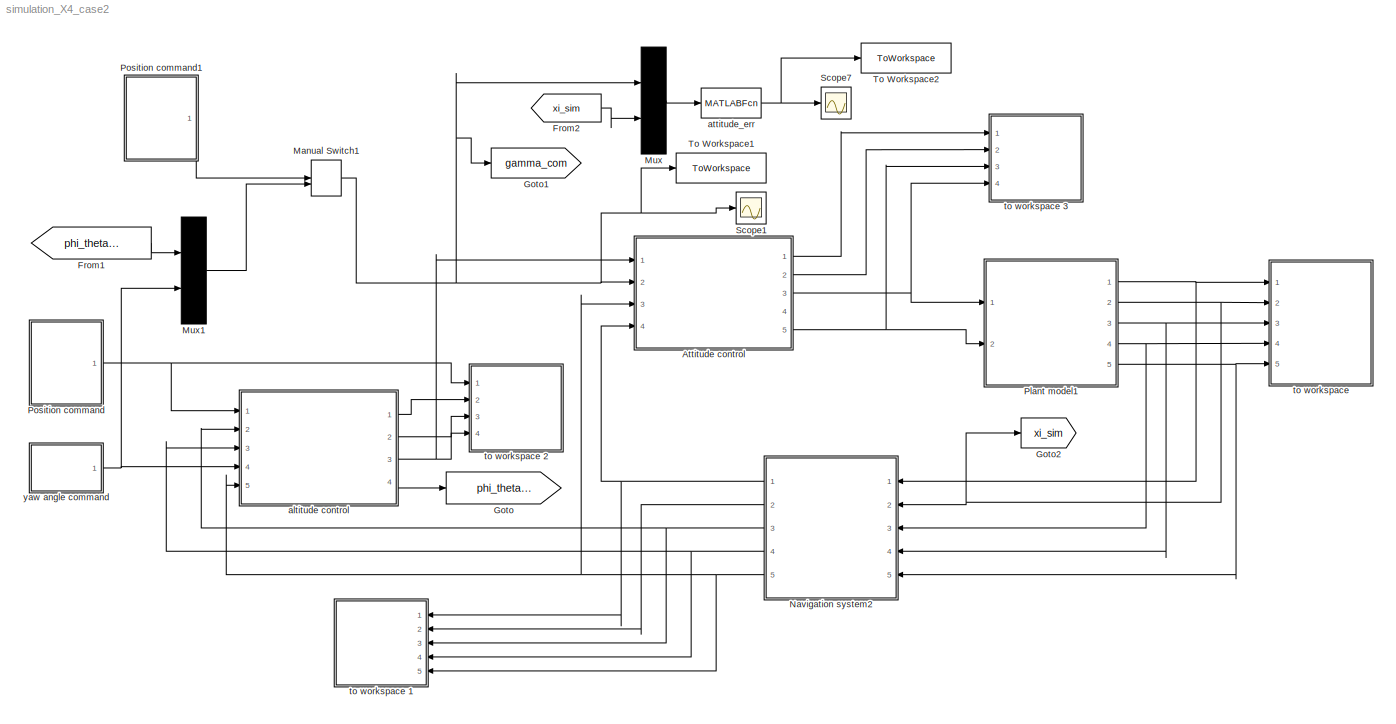
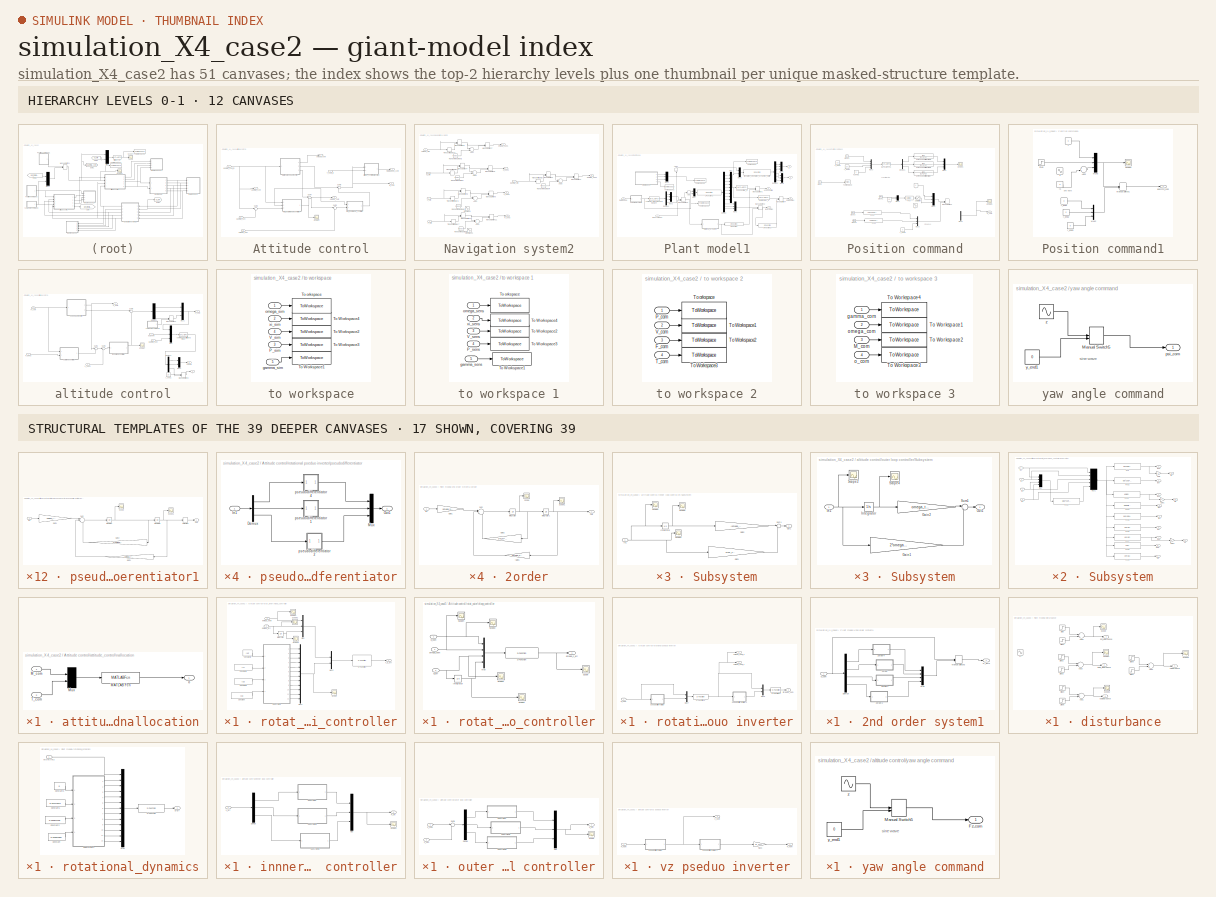
[diagram: thumbnail index - top-2 hierarchy levels (12 canvases) + 17 structural-template representatives of the remaining 39 canvases]
MODEL simulation_X4_case2
KIND model
BLOCK [SubSystem] Attitude control
  Ports = [4, 5]
  RequestExecContextInheritance = off
  SID = 1
  Variant = off
BLOCK [Outport] Attitude control/M_com
  IconDisplay = Port number
  Port = 5
  SID = 174
BLOCK [Scope] Attitude control/Scope7
  NumInputPorts = 1
  Ports = [1]
  SID = 6
  ScopeSpecificationString = C++SS(StrPVP('Location','[1, 48, 1367, 727]'),StrPVP('Open','off'),MxPVP('AxesTitles',24,'struct(''axes1'',''%<SignalLabel>'')'),MxPVP('ScopeGraphics',28,'struct(''FigureColor'',''[0.5 0.5 0.5]'',''AxesColor'',''[0 0 0]'',''AxesTickColor'',''[1 1 1]'',''LineColors'',''[1 1 0;1 0 1;0 1 1;1 0 0;0 1 0;0 0 1]'',''LineStyles'',''-|-|-|-|-|-'',''LineWidths'',''[0.5 0.5 0.5 0.5 0.5 0.5]'',''MarkerStyles'...<+269ch>  <repeated x15 — deduplicated; at blocks: Scope7, Scope1, Scope4>
BLOCK [Sum] Attitude control/Sum2
  IconShape = round
  InputSameDT = off
  Inputs = |+-
  OutDataTypeStr = Inherit: Inherit via internal rule
  Ports = [2, 1]
  SID = 7
  SaturateOnIntegerOverflow = off
BLOCK [Sum] Attitude control/Sum3
  IconShape = round
  InputSameDT = off
  Inputs = |+-
  OutDataTypeStr = Inherit: Inherit via internal rule
  Ports = [2, 1]
  SID = 8
  SaturateOnIntegerOverflow = off
BLOCK [Sum] Attitude control/Sum7
  IconShape = round
  InputSameDT = off
  Inputs = |++
  OutDataTypeStr = Inherit: Inherit via internal rule
  Ports = [2, 1]
  SID = 9
  SaturateOnIntegerOverflow = off
BLOCK [Sum] Attitude control/Sum8
  IconShape = round
  InputSameDT = off
  Inputs = |++
  OutDataTypeStr = Inherit: Inherit via internal rule
  Ports = [2, 1]
  SID = 10
  SaturateOnIntegerOverflow = off
BLOCK [Inport] Attitude control/T_com_in
  IconDisplay = Port number
  SID = 2
BLOCK [SubSystem] Attitude control/attitude_control\nallocation
  Ports = [2, 1]
  RequestExecContextInheritance = off
  SID = 11
  Variant = off
BLOCK [MATLABFcn] Attitude control/attitude_control\nallocation/MATLAB Fcn
  MATLABFcn = attitude_control_allocation(u(1),u(2),u(3),u(4))
  Ports = [1, 1]
  SID = 14
BLOCK [Inport] Attitude control/attitude_control\nallocation/M_com
  IconDisplay = Port number
  SID = 12
BLOCK [Mux] Attitude control/attitude_control\nallocation/Mux
  DisplayOption = bar
  Inputs = 2
  Ports = [2, 1]
  SID = 15
BLOCK [Inport] Attitude control/attitude_control\nallocation/T_com
  IconDisplay = Port number
  Port = 2
  SID = 13
BLOCK [Outport] Attitude control/attitude_control\nallocation/o
  IconDisplay = Port number
  SID = 16
BLOCK [Outport] Attitude control/gamma_com
  IconDisplay = Port number
  SID = 170
BLOCK [Inport] Attitude control/gamma_com_in
  IconDisplay = Port number
  Port = 2
  SID = 3
BLOCK [Inport] Attitude control/gamma_sen
  IconDisplay = Port number
  Port = 3
  SID = 4
BLOCK [Outport] Attitude control/motor speed_com
  IconDisplay = Port number
  Port = 3
  SID = 172
BLOCK [Outport] Attitude control/omega_com
  IconDisplay = Port number
  Port = 2
  SID = 171
BLOCK [Outport] Attitude control/omega_nom
  IconDisplay = Port number
  Port = 4
  SID = 173
BLOCK [Inport] Attitude control/omega_sen
  IconDisplay = Port number
  Port = 4
  SID = 5
BLOCK [SubSystem] Attitude control/rotat_inner\nloop_controller
  Ports = [2, 1]
  RequestExecContextInheritance = off
  SID = 17
  Variant = off
BLOCK [Constant] Attitude control/rotat_inner\nloop_controller/Constant
  SID = 20
  Value = Ixx
BLOCK [Constant] Attitude control/rotat_inner\nloop_controller/Constant1
  SID = 21
  Value = Iyy
BLOCK [Constant] Attitude control/rotat_inner\nloop_controller/Constant2
  SID = 22
  Value = Izz
BLOCK [Constant] Attitude control/rotat_inner\nloop_controller/Constant3
  SID = 23
  Value = Ixz
BLOCK [Integrator] Attitude control/rotat_inner\nloop_controller/Integrator
  Ports = [1, 1]
  SID = 24
BLOCK [Mux] Attitude control/rotat_inner\nloop_controller/Mux
  DisplayOption = bar
  Inputs = 3
  Ports = [3, 1]
  SID = 25
BLOCK [Mux] Attitude control/rotat_inner\nloop_controller/Mux1
  DisplayOption = bar
  Inputs = 12
  Ports = [12, 1]
  SID = 26
BLOCK [Mux] Attitude control/rotat_inner\nloop_controller/Mux2
  DisplayOption = bar
  Inputs = 2
  Ports = [2, 1]
  SID = 27
BLOCK [S-Function] Attitude control/rotat_inner\nloop_controller/S-Function
  EnableBusSupport = off
  FunctionName = PI_controller_omega
  Ports = [1, 1]
  SFcnIsStateOwnerBlock = off
  SFunctionDeploymentMode = off
  SID = 28
BLOCK [Scope] Attitude control/rotat_inner\nloop_controller/Scope
  NumInputPorts = 1
  Ports = [1]
  SID = 29
  ScopeSpecificationString = C++SS(StrPVP('Location','[1, 52, 1441, 869]'),StrPVP('Open','off'),MxPVP('AxesTitles',24,'struct(''axes1'',''%<SignalLabel>'')'),StrPVP('ShowLegends','off'),StrPVP('DataFormat','StructureWithTime'),StrPVP('BlockParamSampleTime','0'),StrPVP('LimitDataPoints','on'),StrPVP('Decimation','1'),StrPVP('BlockParamSampleInput','off'))
BLOCK [Scope] Attitude control/rotat_inner\nloop_controller/Scope1
  NumInputPorts = 1
  Ports = [1]
  SID = 30
  ScopeSpecificationString = C++SS(StrPVP('Location','[1, 52, 1441, 869]'),StrPVP('Open','off'),MxPVP('AxesTitles',24,'struct(''axes1'',''%<SignalLabel>'')'),StrPVP('ShowLegends','off'),StrPVP('SaveName','ScopeData1'),StrPVP('DataFormat','StructureWithTime'),StrPVP('BlockParamSampleTime','0'),StrPVP('LimitDataPoints','on'),StrPVP('Decimation','1'),StrPVP('BlockParamSampleInput','off'))
BLOCK [Scope] Attitude control/rotat_inner\nloop_controller/Scope2
  NumInputPorts = 1
  Ports = [1]
  SID = 31
  ScopeSpecificationString = C++SS(StrPVP('Location','[5, 52, 1445, 869]'),StrPVP('Open','off'),MxPVP('AxesTitles',24,'struct(''axes1'',''%<SignalLabel>'')'),StrPVP('ShowLegends','off'),StrPVP('SaveName','ScopeData2'),StrPVP('DataFormat','StructureWithTime'),StrPVP('BlockParamSampleTime','0'),StrPVP('LimitDataPoints','on'),StrPVP('Decimation','1'),StrPVP('BlockParamSampleInput','off'))
BLOCK [Scope] Attitude control/rotat_inner\nloop_controller/Scope3
  NumInputPorts = 1
  Ports = [1]
  SID = 32
  ScopeSpecificationString = C++SS(StrPVP('Location','[5, 52, 1445, 869]'),StrPVP('Open','off'),MxPVP('AxesTitles',24,'struct(''axes1'',''%<SignalLabel>'')'),StrPVP('ShowLegends','off'),StrPVP('SaveName','ScopeData3'),StrPVP('DataFormat','StructureWithTime'),StrPVP('BlockParamSampleTime','0'),StrPVP('LimitDataPoints','on'),StrPVP('Decimation','1'),StrPVP('BlockParamSampleInput','off'))
BLOCK [SubSystem] Attitude control/rotat_inner\nloop_controller/Subsystem
  Ports = [4, 12]
  RequestExecContextInheritance = off
  SID = 33
  Variant = off
BLOCK [Fcn] Attitude control/rotat_inner\nloop_controller/Subsystem/Fcn
  Expr = (u(1)*(u(2)-u(3)-u(4)))*u(5)
  SID = 38
BLOCK [Fcn] Attitude control/rotat_inner\nloop_controller/Subsystem/Fcn1
  Expr = 1/(u(1)^2-u(4)*u(3))
  SID = 39
BLOCK [Fcn] Attitude control/rotat_inner\nloop_controller/Subsystem/Fcn2
  Expr = (u(3)^2-u(2)*u(3)-u(4)^2)*u(5)
  SID = 40
BLOCK [Fcn] Attitude control/rotat_inner\nloop_controller/Subsystem/Fcn3
  Expr = -u(1)/u(2)
  SID = 41
BLOCK [Fcn] Attitude control/rotat_inner\nloop_controller/Subsystem/Fcn4
  Expr = (u(3)-u(4))/u(2)
  SID = 42
BLOCK [Fcn] Attitude control/rotat_inner\nloop_controller/Subsystem/Fcn5
  Expr = (u(4)*u(2)-u(1)^2-u(4)^2)*u(5)
  SID = 43
BLOCK [Fcn] Attitude control/rotat_inner\nloop_controller/Subsystem/Fcn6
  Expr = -u(3)*u(5)
  SID = 44
BLOCK [Fcn] Attitude control/rotat_inner\nloop_controller/Subsystem/Fcn7
  Expr = -u(1)*u(5)
  SID = 45
BLOCK [Fcn] Attitude control/rotat_inner\nloop_controller/Subsystem/Fcn8
  Expr = 1/u(2)
  SID = 46
BLOCK [Fcn] Attitude control/rotat_inner\nloop_controller/Subsystem/Fcn9
  Expr = -u(4)*u(5)
  SID = 47
BLOCK [Gain] Attitude control/rotat_inner\nloop_controller/Subsystem/Gain
  Gain = -1
  OutDataTypeStr = Inherit: Inherit via internal rule
  ParamDataTypeStr = Inherit: Inherit via internal rule
  SID = 48
  SaturateOnIntegerOverflow = off
BLOCK [Gain] Attitude control/rotat_inner\nloop_controller/Subsystem/Gain1
  Gain = -1
  OutDataTypeStr = Inherit: Inherit via internal rule
  ParamDataTypeStr = Inherit: Inherit via internal rule
  SID = 49
  SaturateOnIntegerOverflow = off
BLOCK [Gain] Attitude control/rotat_inner\nloop_controller/Subsystem/Gain2
  OutDataTypeStr = Inherit: Inherit via internal rule
  ParamDataTypeStr = Inherit: Inherit via internal rule
  SID = 50
  SaturateOnIntegerOverflow = off
BLOCK [Outport] Attitude control/rotat_inner\nloop_controller/Subsystem/Ippq
  IconDisplay = Port number
  SID = 53
BLOCK [Outport] Attitude control/rotat_inner\nloop_controller/Subsystem/Ipqr
  IconDisplay = Port number
  Port = 2
  SID = 54
BLOCK [Outport] Attitude control/rotat_inner\nloop_controller/Subsystem/Iqpp
  IconDisplay = Port number
  Port = 3
  SID = 55
BLOCK [Outport] Attitude control/rotat_inner\nloop_controller/Subsystem/Iqpr
  IconDisplay = Port number
  Port = 4
  SID = 56
BLOCK [Outport] Attitude control/rotat_inner\nloop_controller/Subsystem/Iqrr
  IconDisplay = Port number
  Port = 11
  SID = 63
BLOCK [Outport] Attitude control/rotat_inner\nloop_controller/Subsystem/Irpq
  IconDisplay = Port number
  Port = 5
  SID = 57
BLOCK [Outport] Attitude control/rotat_inner\nloop_controller/Subsystem/Irqr
  IconDisplay = Port number
  Port = 10
  SID = 62
BLOCK [Inport] Attitude control/rotat_inner\nloop_controller/Subsystem/Ixx
  IconDisplay = Port number
  Port = 4
  SID = 37
BLOCK [Inport] Attitude control/rotat_inner\nloop_controller/Subsystem/Ixz
  IconDisplay = Port number
  SID = 34
BLOCK [Inport] Attitude control/rotat_inner\nloop_controller/Subsystem/Iyy
  IconDisplay = Port number
  Port = 2
  SID = 35
BLOCK [Inport] Attitude control/rotat_inner\nloop_controller/Subsystem/Izz
  IconDisplay = Port number
  Port = 3
  SID = 36
BLOCK [Mux] Attitude control/rotat_inner\nloop_controller/Subsystem/Mux
  DisplayOption = bar
  Ports = [4, 1]
  SID = 51
BLOCK [Mux] Attitude control/rotat_inner\nloop_controller/Subsystem/Mux1
  DisplayOption = bar
  Inputs = 5
  Ports = [5, 1]
  SID = 52
BLOCK [Outport] Attitude control/rotat_inner\nloop_controller/Subsystem/gpl
  IconDisplay = Port number
  Port = 6
  SID = 58
BLOCK [Outport] Attitude control/rotat_inner\nloop_controller/Subsystem/gpn
  IconDisplay = Port number
  Port = 7
  SID = 59
BLOCK [Outport] Attitude control/rotat_inner\nloop_controller/Subsystem/gqm
  IconDisplay = Port number
  Port = 8
  SID = 60
BLOCK [Outport] Attitude control/rotat_inner\nloop_controller/Subsystem/grl
  IconDisplay = Port number
  Port = 12
  SID = 64
BLOCK [Outport] Attitude control/rotat_inner\nloop_controller/Subsystem/grn
  IconDisplay = Port number
  Port = 9
  SID = 61
BLOCK [Outport] Attitude control/rotat_inner\nloop_controller/T_b_err
  IconDisplay = Port number
  SID = 65
BLOCK [Inport] Attitude control/rotat_inner\nloop_controller/omega_err
  IconDisplay = Port number
  Port = 2
  SID = 19
BLOCK [Inport] Attitude control/rotat_inner\nloop_controller/omega_nom
  IconDisplay = Port number
  SID = 18
BLOCK [SubSystem] Attitude control/rotat_outer\nloop_controller
  Ports = [3, 1]
  RequestExecContextInheritance = off
  SID = 66
  Variant = off
BLOCK [Integrator] Attitude control/rotat_outer\nloop_controller/Integrator
  Ports = [1, 1]
  SID = 70
BLOCK [Mux] Attitude control/rotat_outer\nloop_controller/Mux
  DisplayOption = bar
  Ports = [4, 1]
  SID = 71
BLOCK [S-Function] Attitude control/rotat_outer\nloop_controller/S-Function
  EnableBusSupport = off
  FunctionName = PI_controller_gamma
  Ports = [1, 1]
  SFcnIsStateOwnerBlock = off
  SFunctionDeploymentMode = off
  SID = 72
BLOCK [Scope] Attitude control/rotat_outer\nloop_controller/Scope
  NumInputPorts = 1
  Ports = [1]
  SID = 73
  ScopeSpecificationString = C++SS(StrPVP('Location','[1, 52, 1441, 869]'),StrPVP('Open','off'),MxPVP('AxesTitles',24,'struct(''axes1'',''%<SignalLabel>'')'),StrPVP('ShowLegends','off'),StrPVP('SaveName','ScopeData5'),StrPVP('DataFormat','StructureWithTime'),StrPVP('BlockParamSampleTime','0'),StrPVP('LimitDataPoints','on'),StrPVP('Decimation','1'),StrPVP('BlockParamSampleInput','off'))
BLOCK [Scope] Attitude control/rotat_outer\nloop_controller/Scope1
  NumInputPorts = 1
  Ports = [1]
  SID = 74
  ScopeSpecificationString = C++SS(StrPVP('Location','[1, 52, 1441, 869]'),StrPVP('Open','off'),MxPVP('AxesTitles',24,'struct(''axes1'',''%<SignalLabel>'')'),StrPVP('ShowLegends','off'),StrPVP('SaveName','ScopeData6'),StrPVP('DataFormat','StructureWithTime'),StrPVP('BlockParamSampleTime','0'),StrPVP('LimitDataPoints','on'),StrPVP('Decimation','1'),StrPVP('BlockParamSampleInput','off'))
BLOCK [Scope] Attitude control/rotat_outer\nloop_controller/Scope2
  NumInputPorts = 1
  Ports = [1]
  SID = 75
  ScopeSpecificationString = C++SS(StrPVP('Location','[1, 52, 1441, 869]'),StrPVP('Open','off'),MxPVP('AxesTitles',24,'struct(''axes1'',''%<SignalLabel>'')'),StrPVP('ShowLegends','off'),StrPVP('SaveName','ScopeData7'),StrPVP('DataFormat','StructureWithTime'),StrPVP('BlockParamSampleTime','0'),StrPVP('LimitDataPoints','on'),StrPVP('Decimation','1'),StrPVP('BlockParamSampleInput','off'))
BLOCK [Scope] Attitude control/rotat_outer\nloop_controller/Scope3
  NumInputPorts = 1
  Ports = [1]
  SID = 76
  ScopeSpecificationString = C++SS(StrPVP('Location','[1, 52, 1441, 869]'),StrPVP('Open','off'),MxPVP('AxesTitles',24,'struct(''axes1'',''%<SignalLabel>'')'),StrPVP('ShowLegends','off'),StrPVP('SaveName','ScopeData8'),StrPVP('DataFormat','StructureWithTime'),StrPVP('BlockParamSampleTime','0'),StrPVP('LimitDataPoints','on'),StrPVP('Decimation','1'),StrPVP('BlockParamSampleInput','off'))  <repeated x4 — deduplicated; at blocks: Scope3>
BLOCK [Scope] Attitude control/rotat_outer\nloop_controller/Scope4
  NumInputPorts = 1
  Ports = [1]
  SID = 77
  ScopeSpecificationString = C++SS(StrPVP('Location','[1, 52, 1441, 869]'),StrPVP('Open','off'),MxPVP('AxesTitles',24,'struct(''axes1'',''%<SignalLabel>'')'),StrPVP('ShowLegends','off'),StrPVP('SaveName','ScopeData9'),StrPVP('DataFormat','StructureWithTime'),StrPVP('BlockParamSampleTime','0'),StrPVP('LimitDataPoints','on'),StrPVP('Decimation','1'),StrPVP('BlockParamSampleInput','off'))
BLOCK [Outport] Attitude control/rotat_outer\nloop_controller/omega_c_err
  IconDisplay = Port number
  SID = 78
BLOCK [Inport] Attitude control/rotat_outer\nloop_controller/omega_nom
  IconDisplay = Port number
  Port = 2
  SID = 68
BLOCK [Inport] Attitude control/rotat_outer\nloop_controller/xi_err
  IconDisplay = Port number
  Port = 3
  SID = 69
BLOCK [Inport] Attitude control/rotat_outer\nloop_controller/xi_nom
  IconDisplay = Port number
  SID = 67
BLOCK [SubSystem] Attitude control/rotational pseduo inverter
  Ports = [1, 3]
  RequestExecContextInheritance = off
  SID = 79
  Variant = off
BLOCK [Mux] Attitude control/rotational pseduo inverter/Mux7
  DisplayOption = bar
  Inputs = 2
  Ports = [2, 1]
  SID = 81
BLOCK [Mux] Attitude control/rotational pseduo inverter/Mux9
  DisplayOption = bar
  Inputs = 2
  Ports = [2, 1]
  SID = 82
BLOCK [S-Function] Attitude control/rotational pseduo inverter/S-Function3
  EnableBusSupport = off
  FunctionName = omega_nom
  Ports = [1, 1]
  SFcnIsStateOwnerBlock = off
  SFunctionDeploymentMode = off
  SID = 83
BLOCK [S-Function] Attitude control/rotational pseduo inverter/S-Function4
  EnableBusSupport = off
  FunctionName = torque_nom
  Ports = [1, 1]
  SFcnIsStateOwnerBlock = off
  SFunctionDeploymentMode = off
  SID = 84
BLOCK [Outport] Attitude control/rotational pseduo inverter/omega_nom_1
  IconDisplay = Port number
  SID = 167
BLOCK [Outport] Attitude control/rotational pseduo inverter/omega_nom_2
  IconDisplay = Port number
  Port = 3
  SID = 169
BLOCK [SubSystem] Attitude control/rotational pseduo inverter/pseudodifferentiator
  Ports = [1, 1]
  RequestExecContextInheritance = off
  SID = 85
  Variant = off
BLOCK [Demux] Attitude control/rotational pseduo inverter/pseudodifferentiator/Demux
  DisplayOption = bar
  Outputs = 3
  Ports = [1, 3]
  SID = 87
BLOCK [Inport] Attitude control/rotational pseduo inverter/pseudodifferentiator/In1
  IconDisplay = Port number
  SID = 86
BLOCK [Mux] Attitude control/rotational pseduo inverter/pseudodifferentiator/Mux
  DisplayOption = bar
  Inputs = 3
  Ports = [3, 1]
  SID = 88
BLOCK [Outport] Attitude control/rotational pseduo inverter/pseudodifferentiator/Out1
  IconDisplay = Port number
  SID = 125
BLOCK [SubSystem] Attitude control/rotational pseduo inverter/pseudodifferentiator/pseudodifferentiator1
  Ports = [1, 1]
  RequestExecContextInheritance = off
  SID = 1032
  Variant = off
BLOCK [Gain] Attitude control/rotational pseduo inverter/pseudodifferentiator/pseudodifferentiator1/-Gain1
  Gain = omega_rot_y_out_fil^2
  OutDataTypeStr = Inherit: Inherit via internal rule
  ParamDataTypeStr = Inherit: Inherit via internal rule
  SID = 1034
  SaturateOnIntegerOverflow = off
BLOCK [Derivative] Attitude control/rotational pseduo inverter/pseudodifferentiator/pseudodifferentiator1/Derivative
  SID = 1035
BLOCK [Gain] Attitude control/rotational pseduo inverter/pseudodifferentiator/pseudodifferentiator1/Gain1
  Gain = omega_rot_y_out_fil^2
  OutDataTypeStr = Inherit: Inherit via internal rule
  ParamDataTypeStr = Inherit: Inherit via internal rule
  SID = 1036
  SaturateOnIntegerOverflow = off
BLOCK [Gain] Attitude control/rotational pseduo inverter/pseudodifferentiator/pseudodifferentiator1/Gain2
  Gain = 2*omega_rot_y_out_fil*ksi_pitch_fil
  OutDataTypeStr = Inherit: Inherit via internal rule
  ParamDataTypeStr = Inherit: Inherit via internal rule
  SID = 1037
  SaturateOnIntegerOverflow = off
BLOCK [Inport] Attitude control/rotational pseduo inverter/pseudodifferentiator/pseudodifferentiator1/In1
  IconDisplay = Port number
  SID = 1033
BLOCK [Integrator] Attitude control/rotational pseduo inverter/pseudodifferentiator/pseudodifferentiator1/Integrator
  Ports = [1, 1]
  SID = 1038
BLOCK [Integrator] Attitude control/rotational pseduo inverter/pseudodifferentiator/pseudodifferentiator1/Integrator1
  Ports = [1, 1]
  SID = 1039
BLOCK [Outport] Attitude control/rotational pseduo inverter/pseudodifferentiator/pseudodifferentiator1/Out1
  IconDisplay = Port number
  SID = 1043
BLOCK [Scope] Attitude control/rotational pseduo inverter/pseudodifferentiator/pseudodifferentiator1/Scope
  NumInputPorts = 1
  Ports = [1]
  SID = 1040
  ScopeSpecificationString = C++SS(StrPVP('Location','[188, 390, 512, 629]'),StrPVP('Open','off'),MxPVP('AxesTitles',24,'struct(''axes1'',''%<SignalLabel>'')'),StrPVP('ShowLegends','off'),StrPVP('DataFormat','StructureWithTime'),StrPVP('BlockParamSampleTime','0'),StrPVP('LimitDataPoints','on'),StrPVP('Decimation','1'),StrPVP('BlockParamSampleInput','off'))  <repeated x14 — deduplicated; at blocks: Scope>
BLOCK [Scope] Attitude control/rotational pseduo inverter/pseudodifferentiator/pseudodifferentiator1/Scope1
  NumInputPorts = 1
  Ports = [1]
  SID = 1041
BLOCK [Sum] Attitude control/rotational pseduo inverter/pseudodifferentiator/pseudodifferentiator1/Sum
  IconShape = round
  InputSameDT = off
  Inputs = |+--
  OutDataTypeStr = Inherit: Inherit via internal rule
  Ports = [3, 1]
  SID = 1042
  SaturateOnIntegerOverflow = off
BLOCK [SubSystem] Attitude control/rotational pseduo inverter/pseudodifferentiator/pseudodifferentiator2
  Ports = [1, 1]
  RequestExecContextInheritance = off
  SID = 1044
  Variant = off
BLOCK [Gain] Attitude control/rotational pseduo inverter/pseudodifferentiator/pseudodifferentiator2/-Gain1
  Gain = omega_rot_z_out_fil^2
  OutDataTypeStr = Inherit: Inherit via internal rule
  ParamDataTypeStr = Inherit: Inherit via internal rule
  SID = 1046
  SaturateOnIntegerOverflow = off
BLOCK [Derivative] Attitude control/rotational pseduo inverter/pseudodifferentiator/pseudodifferentiator2/Derivative
  SID = 1047
BLOCK [Gain] Attitude control/rotational pseduo inverter/pseudodifferentiator/pseudodifferentiator2/Gain1
  Gain = omega_rot_z_out_fil^2
  OutDataTypeStr = Inherit: Inherit via internal rule
  ParamDataTypeStr = Inherit: Inherit via internal rule
  SID = 1048
  SaturateOnIntegerOverflow = off
BLOCK [Gain] Attitude control/rotational pseduo inverter/pseudodifferentiator/pseudodifferentiator2/Gain2
  Gain = 2*omega_rot_z_out_fil*ksi_yaw_fil
  OutDataTypeStr = Inherit: Inherit via internal rule
  ParamDataTypeStr = Inherit: Inherit via internal rule
  SID = 1049
  SaturateOnIntegerOverflow = off
BLOCK [Inport] Attitude control/rotational pseduo inverter/pseudodifferentiator/pseudodifferentiator2/In1
  IconDisplay = Port number
  SID = 1045
BLOCK [Integrator] Attitude control/rotational pseduo inverter/pseudodifferentiator/pseudodifferentiator2/Integrator
  Ports = [1, 1]
  SID = 1050
BLOCK [Integrator] Attitude control/rotational pseduo inverter/pseudodifferentiator/pseudodifferentiator2/Integrator1
  Ports = [1, 1]
  SID = 1051
BLOCK [Outport] Attitude control/rotational pseduo inverter/pseudodifferentiator/pseudodifferentiator2/Out1
  IconDisplay = Port number
  SID = 1055
BLOCK [Scope] Attitude control/rotational pseduo inverter/pseudodifferentiator/pseudodifferentiator2/Scope
  NumInputPorts = 1
  Ports = [1]
  SID = 1052
BLOCK [Scope] Attitude control/rotational pseduo inverter/pseudodifferentiator/pseudodifferentiator2/Scope1
  NumInputPorts = 1
  Ports = [1]
  SID = 1053
BLOCK [Sum] Attitude control/rotational pseduo inverter/pseudodifferentiator/pseudodifferentiator2/Sum
  IconShape = round
  InputSameDT = off
  Inputs = |+--
  OutDataTypeStr = Inherit: Inherit via internal rule
  Ports = [3, 1]
  SID = 1054
  SaturateOnIntegerOverflow = off
BLOCK [SubSystem] Attitude control/rotational pseduo inverter/pseudodifferentiator/pseudodifferentiator4
  Ports = [1, 1]
  RequestExecContextInheritance = off
  SID = 1020
  Variant = off
BLOCK [Gain] Attitude control/rotational pseduo inverter/pseudodifferentiator/pseudodifferentiator4/-Gain1
  Gain = omega_rot_x_out_fil^2
  OutDataTypeStr = Inherit: Inherit via internal rule
  ParamDataTypeStr = Inherit: Inherit via internal rule
  SID = 1022
  SaturateOnIntegerOverflow = off
BLOCK [Derivative] Attitude control/rotational pseduo inverter/pseudodifferentiator/pseudodifferentiator4/Derivative
  SID = 1023
BLOCK [Gain] Attitude control/rotational pseduo inverter/pseudodifferentiator/pseudodifferentiator4/Gain1
  Gain = omega_rot_x_out_fil^2
  OutDataTypeStr = Inherit: Inherit via internal rule
  ParamDataTypeStr = Inherit: Inherit via internal rule
  SID = 1024
  SaturateOnIntegerOverflow = off
BLOCK [Gain] Attitude control/rotational pseduo inverter/pseudodifferentiator/pseudodifferentiator4/Gain2
  Gain = 2*omega_rot_x_out_fil*ksi_phi_fil
  OutDataTypeStr = Inherit: Inherit via internal rule
  ParamDataTypeStr = Inherit: Inherit via internal rule
  SID = 1025
  SaturateOnIntegerOverflow = off
BLOCK [Inport] Attitude control/rotational pseduo inverter/pseudodifferentiator/pseudodifferentiator4/In1
  IconDisplay = Port number
  SID = 1021
BLOCK [Integrator] Attitude control/rotational pseduo inverter/pseudodifferentiator/pseudodifferentiator4/Integrator
  Ports = [1, 1]
  SID = 1026
BLOCK [Integrator] Attitude control/rotational pseduo inverter/pseudodifferentiator/pseudodifferentiator4/Integrator1
  Ports = [1, 1]
  SID = 1027
BLOCK [Outport] Attitude control/rotational pseduo inverter/pseudodifferentiator/pseudodifferentiator4/Out1
  IconDisplay = Port number
  SID = 1031
BLOCK [Scope] Attitude control/rotational pseduo inverter/pseudodifferentiator/pseudodifferentiator4/Scope
  NumInputPorts = 1
  Ports = [1]
  SID = 1028
BLOCK [Scope] Attitude control/rotational pseduo inverter/pseudodifferentiator/pseudodifferentiator4/Scope1
  NumInputPorts = 1
  Ports = [1]
  SID = 1029
BLOCK [Sum] Attitude control/rotational pseduo inverter/pseudodifferentiator/pseudodifferentiator4/Sum
  IconShape = round
  InputSameDT = off
  Inputs = |+--
  OutDataTypeStr = Inherit: Inherit via internal rule
  Ports = [3, 1]
  SID = 1030
  SaturateOnIntegerOverflow = off
BLOCK [SubSystem] Attitude control/rotational pseduo inverter/pseudodifferentiator1
  Ports = [1, 1]
  RequestExecContextInheritance = off
  SID = 126
  Variant = off
BLOCK [Demux] Attitude control/rotational pseduo inverter/pseudodifferentiator1/Demux
  DisplayOption = bar
  Outputs = 3
  Ports = [1, 3]
  SID = 128
BLOCK [Inport] Attitude control/rotational pseduo inverter/pseudodifferentiator1/In1
  IconDisplay = Port number
  SID = 127
BLOCK [Mux] Attitude control/rotational pseduo inverter/pseudodifferentiator1/Mux
  DisplayOption = bar
  Inputs = 3
  Ports = [3, 1]
  SID = 129
BLOCK [Outport] Attitude control/rotational pseduo inverter/pseudodifferentiator1/Out1
  IconDisplay = Port number
  SID = 166
BLOCK [SubSystem] Attitude control/rotational pseduo inverter/pseudodifferentiator1/pseudodifferentiator1
  Ports = [1, 1]
  RequestExecContextInheritance = off
  SID = 1080
  Variant = off
BLOCK [Gain] Attitude control/rotational pseduo inverter/pseudodifferentiator1/pseudodifferentiator1/-Gain1
  Gain = omega_rot_x_in_fil^2
  OutDataTypeStr = Inherit: Inherit via internal rule
  ParamDataTypeStr = Inherit: Inherit via internal rule
  SID = 1082
  SaturateOnIntegerOverflow = off
BLOCK [Derivative] Attitude control/rotational pseduo inverter/pseudodifferentiator1/pseudodifferentiator1/Derivative
  SID = 1083
BLOCK [Gain] Attitude control/rotational pseduo inverter/pseudodifferentiator1/pseudodifferentiator1/Gain1
  Gain = omega_rot_x_in_fil^2
  OutDataTypeStr = Inherit: Inherit via internal rule
  ParamDataTypeStr = Inherit: Inherit via internal rule
  SID = 1084
  SaturateOnIntegerOverflow = off
BLOCK [Gain] Attitude control/rotational pseduo inverter/pseudodifferentiator1/pseudodifferentiator1/Gain2
  Gain = 2*omega_rot_x_in_fil*ksi_p_fil
  OutDataTypeStr = Inherit: Inherit via internal rule
  ParamDataTypeStr = Inherit: Inherit via internal rule
  SID = 1085
  SaturateOnIntegerOverflow = off
BLOCK [Inport] Attitude control/rotational pseduo inverter/pseudodifferentiator1/pseudodifferentiator1/In1
  IconDisplay = Port number
  SID = 1081
BLOCK [Integrator] Attitude control/rotational pseduo inverter/pseudodifferentiator1/pseudodifferentiator1/Integrator
  Ports = [1, 1]
  SID = 1086
BLOCK [Integrator] Attitude control/rotational pseduo inverter/pseudodifferentiator1/pseudodifferentiator1/Integrator1
  Ports = [1, 1]
  SID = 1087
BLOCK [Outport] Attitude control/rotational pseduo inverter/pseudodifferentiator1/pseudodifferentiator1/Out1
  IconDisplay = Port number
  SID = 1091
BLOCK [Scope] Attitude control/rotational pseduo inverter/pseudodifferentiator1/pseudodifferentiator1/Scope
  NumInputPorts = 1
  Ports = [1]
  SID = 1088
BLOCK [Scope] Attitude control/rotational pseduo inverter/pseudodifferentiator1/pseudodifferentiator1/Scope1
  NumInputPorts = 1
  Ports = [1]
  SID = 1089
BLOCK [Sum] Attitude control/rotational pseduo inverter/pseudodifferentiator1/pseudodifferentiator1/Sum
  IconShape = round
  InputSameDT = off
  Inputs = |+--
  OutDataTypeStr = Inherit: Inherit via internal rule
  Ports = [3, 1]
  SID = 1090
  SaturateOnIntegerOverflow = off
BLOCK [SubSystem] Attitude control/rotational pseduo inverter/pseudodifferentiator1/pseudodifferentiator2
  Ports = [1, 1]
  RequestExecContextInheritance = off
  SID = 1092
  Variant = off
BLOCK [Gain] Attitude control/rotational pseduo inverter/pseudodifferentiator1/pseudodifferentiator2/-Gain1
  Gain = omega_rot_y_in_fil^2
  OutDataTypeStr = Inherit: Inherit via internal rule
  ParamDataTypeStr = Inherit: Inherit via internal rule
  SID = 1094
  SaturateOnIntegerOverflow = off
BLOCK [Derivative] Attitude control/rotational pseduo inverter/pseudodifferentiator1/pseudodifferentiator2/Derivative
  SID = 1095
BLOCK [Gain] Attitude control/rotational pseduo inverter/pseudodifferentiator1/pseudodifferentiator2/Gain1
  Gain = omega_rot_y_in_fil^2
  OutDataTypeStr = Inherit: Inherit via internal rule
  ParamDataTypeStr = Inherit: Inherit via internal rule
  SID = 1096
  SaturateOnIntegerOverflow = off
BLOCK [Gain] Attitude control/rotational pseduo inverter/pseudodifferentiator1/pseudodifferentiator2/Gain2
  Gain = 2*omega_rot_y_in_fil*ksi_q_fil
  OutDataTypeStr = Inherit: Inherit via internal rule
  ParamDataTypeStr = Inherit: Inherit via internal rule
  SID = 1097
  SaturateOnIntegerOverflow = off
BLOCK [Inport] Attitude control/rotational pseduo inverter/pseudodifferentiator1/pseudodifferentiator2/In1
  IconDisplay = Port number
  SID = 1093
BLOCK [Integrator] Attitude control/rotational pseduo inverter/pseudodifferentiator1/pseudodifferentiator2/Integrator
  Ports = [1, 1]
  SID = 1098
BLOCK [Integrator] Attitude control/rotational pseduo inverter/pseudodifferentiator1/pseudodifferentiator2/Integrator1
  Ports = [1, 1]
  SID = 1099
BLOCK [Outport] Attitude control/rotational pseduo inverter/pseudodifferentiator1/pseudodifferentiator2/Out1
  IconDisplay = Port number
  SID = 1103
BLOCK [Scope] Attitude control/rotational pseduo inverter/pseudodifferentiator1/pseudodifferentiator2/Scope
  NumInputPorts = 1
  Ports = [1]
  SID = 1100
BLOCK [Scope] Attitude control/rotational pseduo inverter/pseudodifferentiator1/pseudodifferentiator2/Scope1
  NumInputPorts = 1
  Ports = [1]
  SID = 1101
BLOCK [Sum] Attitude control/rotational pseduo inverter/pseudodifferentiator1/pseudodifferentiator2/Sum
  IconShape = round
  InputSameDT = off
  Inputs = |+--
  OutDataTypeStr = Inherit: Inherit via internal rule
  Ports = [3, 1]
  SID = 1102
  SaturateOnIntegerOverflow = off
BLOCK [SubSystem] Attitude control/rotational pseduo inverter/pseudodifferentiator1/pseudodifferentiator3
  Ports = [1, 1]
  RequestExecContextInheritance = off
  SID = 1116
  Variant = off
BLOCK [Gain] Attitude control/rotational pseduo inverter/pseudodifferentiator1/pseudodifferentiator3/-Gain1
  Gain = omega_rot_z_in_fil^2
  OutDataTypeStr = Inherit: Inherit via internal rule
  ParamDataTypeStr = Inherit: Inherit via internal rule
  SID = 1118
  SaturateOnIntegerOverflow = off
BLOCK [Derivative] Attitude control/rotational pseduo inverter/pseudodifferentiator1/pseudodifferentiator3/Derivative
  SID = 1119
BLOCK [Gain] Attitude control/rotational pseduo inverter/pseudodifferentiator1/pseudodifferentiator3/Gain1
  Gain = omega_rot_z_in_fil^2
  OutDataTypeStr = Inherit: Inherit via internal rule
  ParamDataTypeStr = Inherit: Inherit via internal rule
  SID = 1120
  SaturateOnIntegerOverflow = off
BLOCK [Gain] Attitude control/rotational pseduo inverter/pseudodifferentiator1/pseudodifferentiator3/Gain2
  Gain = 2*omega_rot_z_in_fil*ksi_r_fil
  OutDataTypeStr = Inherit: Inherit via internal rule
  ParamDataTypeStr = Inherit: Inherit via internal rule
  SID = 1121
  SaturateOnIntegerOverflow = off
BLOCK [Inport] Attitude control/rotational pseduo inverter/pseudodifferentiator1/pseudodifferentiator3/In1
  IconDisplay = Port number
  SID = 1117
BLOCK [Integrator] Attitude control/rotational pseduo inverter/pseudodifferentiator1/pseudodifferentiator3/Integrator
  Ports = [1, 1]
  SID = 1122
BLOCK [Integrator] Attitude control/rotational pseduo inverter/pseudodifferentiator1/pseudodifferentiator3/Integrator1
  Ports = [1, 1]
  SID = 1123
BLOCK [Outport] Attitude control/rotational pseduo inverter/pseudodifferentiator1/pseudodifferentiator3/Out1
  IconDisplay = Port number
  SID = 1127
BLOCK [Scope] Attitude control/rotational pseduo inverter/pseudodifferentiator1/pseudodifferentiator3/Scope
  NumInputPorts = 1
  Ports = [1]
  SID = 1124
BLOCK [Scope] Attitude control/rotational pseduo inverter/pseudodifferentiator1/pseudodifferentiator3/Scope1
  NumInputPorts = 1
  Ports = [1]
  SID = 1125
BLOCK [Sum] Attitude control/rotational pseduo inverter/pseudodifferentiator1/pseudodifferentiator3/Sum
  IconShape = round
  InputSameDT = off
  Inputs = |+--
  OutDataTypeStr = Inherit: Inherit via internal rule
  Ports = [3, 1]
  SID = 1126
  SaturateOnIntegerOverflow = off
BLOCK [Outport] Attitude control/rotational pseduo inverter/torques_nom
  IconDisplay = Port number
  Port = 2
  SID = 168
BLOCK [Inport] Attitude control/rotational pseduo inverter/xi_nom
  IconDisplay = Port number
  SID = 80
BLOCK [From] From1
  CloseFcn = tagdialog Close
  GotoTag = phi_theta_com
  SID = 628
BLOCK [From] From2
  CloseFcn = tagdialog Close
  GotoTag = xi_sim
  SID = 199
BLOCK [Goto] Goto
  GotoTag = phi_theta_com
  SID = 200
BLOCK [Goto] Goto1
  GotoTag = gamma_com
  SID = 201
BLOCK [Goto] Goto2
  GotoTag = xi_sim
  SID = 202
BLOCK [ManualSwitch] Manual Switch1
  CurrentSetting = 0
  SID = 810
BLOCK [Mux] Mux
  DisplayOption = bar
  Inputs = 2
  Ports = [2, 1]
  SID = 203
BLOCK [Mux] Mux1
  DisplayOption = bar
  Inputs = 2
  Ports = [2, 1]
  SID = 629
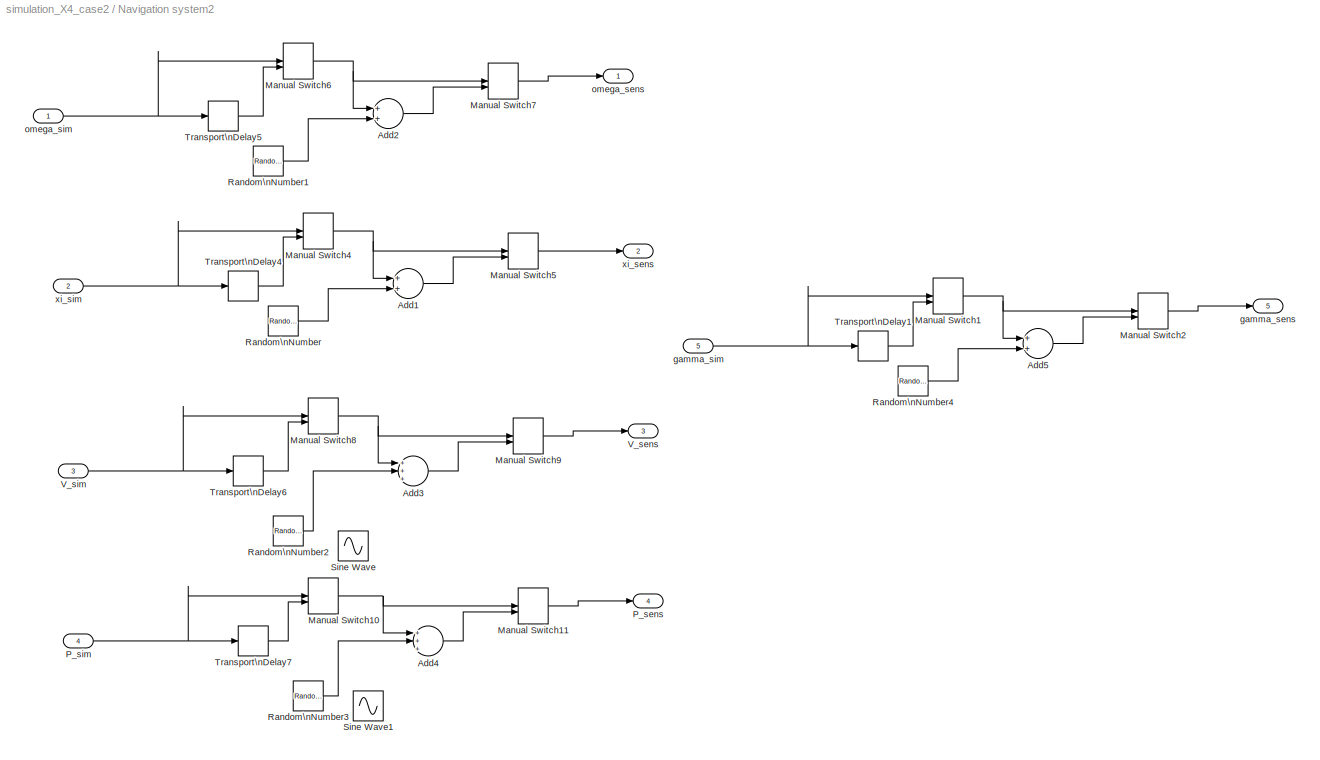
BLOCK [SubSystem] Navigation system2
  Ports = [5, 5]
  RequestExecContextInheritance = off
  SID = 868
  Variant = off
BLOCK [Sum] Navigation system2/Add1
  InputSameDT = off
  OutDataTypeStr = Inherit: Inherit via internal rule
  Ports = [2, 1]
  SID = 874
  SaturateOnIntegerOverflow = off
BLOCK [Sum] Navigation system2/Add2
  InputSameDT = off
  OutDataTypeStr = Inherit: Inherit via internal rule
  Ports = [2, 1]
  SID = 875
  SaturateOnIntegerOverflow = off
BLOCK [Sum] Navigation system2/Add3
  InputSameDT = off
  Inputs = +++
  OutDataTypeStr = Inherit: Inherit via internal rule
  Ports = [3, 1]
  SID = 876
  SaturateOnIntegerOverflow = off
BLOCK [Sum] Navigation system2/Add4
  InputSameDT = off
  Inputs = +++
  OutDataTypeStr = Inherit: Inherit via internal rule
  Ports = [3, 1]
  SID = 877
  SaturateOnIntegerOverflow = off
BLOCK [Sum] Navigation system2/Add5
  InputSameDT = off
  OutDataTypeStr = Inherit: Inherit via internal rule
  Ports = [2, 1]
  SID = 878
  SaturateOnIntegerOverflow = off
BLOCK [ManualSwitch] Navigation system2/Manual Switch1
  SID = 879
BLOCK [ManualSwitch] Navigation system2/Manual Switch10
  SID = 880
BLOCK [ManualSwitch] Navigation system2/Manual Switch11
  SID = 881
BLOCK [ManualSwitch] Navigation system2/Manual Switch2
  SID = 882
BLOCK [ManualSwitch] Navigation system2/Manual Switch4
  SID = 883
BLOCK [ManualSwitch] Navigation system2/Manual Switch5
  SID = 884
BLOCK [ManualSwitch] Navigation system2/Manual Switch6
  SID = 885
BLOCK [ManualSwitch] Navigation system2/Manual Switch7
  SID = 886
BLOCK [ManualSwitch] Navigation system2/Manual Switch8
  SID = 887
BLOCK [ManualSwitch] Navigation system2/Manual Switch9
  SID = 888
BLOCK [Outport] Navigation system2/P_sens
  IconDisplay = Port number
  Port = 4
  SID = 904
BLOCK [Inport] Navigation system2/P_sim
  IconDisplay = Port number
  Port = 4
  SID = 872
BLOCK [RandomNumber] Navigation system2/Random\nNumber
  SID = 889
  SampleTime = 0
  Variance = 0.000025
BLOCK [RandomNumber] Navigation system2/Random\nNumber1
  SID = 890
  SampleTime = 0
  Variance = 0.001
BLOCK [RandomNumber] Navigation system2/Random\nNumber2
  SID = 891
  SampleTime = 0
  Variance = 0.001
BLOCK [RandomNumber] Navigation system2/Random\nNumber3
  SID = 892
  SampleTime = 0
  Variance = 0.001
BLOCK [RandomNumber] Navigation system2/Random\nNumber4
  SID = 893
  SampleTime = 0
  Variance = 0.000025
BLOCK [Sin] Navigation system2/Sine Wave
  Amplitude = 0.2
  Ports = [0, 1]
  SID = 894
  SampleTime = 0
BLOCK [Sin] Navigation system2/Sine Wave1
  Amplitude = 1.5
  Ports = [0, 1]
  SID = 895
  SampleTime = 0
BLOCK [TransportDelay] Navigation system2/Transport\nDelay1
  DelayTime = 0.02
  Ports = [1, 1]
  SID = 896
BLOCK [TransportDelay] Navigation system2/Transport\nDelay4
  DelayTime = 0.02
  Ports = [1, 1]
  SID = 897
BLOCK [TransportDelay] Navigation system2/Transport\nDelay5
  DelayTime = 0.02
  Ports = [1, 1]
  SID = 898
BLOCK [TransportDelay] Navigation system2/Transport\nDelay6
  DelayTime = 0.4
  Ports = [1, 1]
  SID = 899
BLOCK [TransportDelay] Navigation system2/Transport\nDelay7
  DelayTime = 0.5
  InitialOutput = [0, 0, 0]
  Ports = [1, 1]
  SID = 900
BLOCK [Outport] Navigation system2/V_sens
  IconDisplay = Port number
  Port = 3
  SID = 903
BLOCK [Inport] Navigation system2/V_sim
  IconDisplay = Port number
  Port = 3
  SID = 871
BLOCK [Outport] Navigation system2/gamma_sens
  IconDisplay = Port number
  Port = 5
  SID = 905
BLOCK [Inport] Navigation system2/gamma_sim
  IconDisplay = Port number
  Port = 5
  SID = 873
BLOCK [Outport] Navigation system2/omega_sens
  IconDisplay = Port number
  SID = 901
BLOCK [Inport] Navigation system2/omega_sim
  IconDisplay = Port number
  SID = 869
BLOCK [Outport] Navigation system2/xi_sens
  IconDisplay = Port number
  Port = 2
  SID = 902
BLOCK [Inport] Navigation system2/xi_sim
  IconDisplay = Port number
  Port = 2
  SID = 870
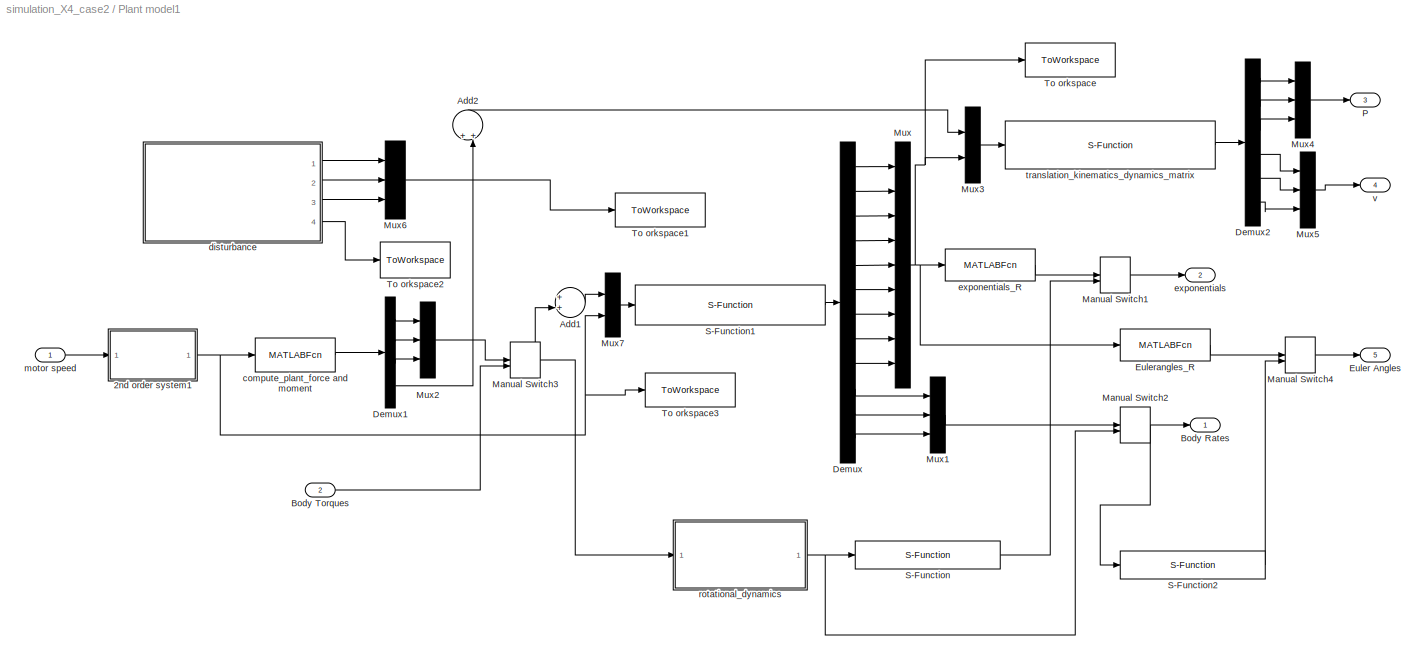
BLOCK [SubSystem] Plant model1
  Ports = [2, 5]
  RequestExecContextInheritance = off
  SID = 240
  Variant = off
BLOCK [SubSystem] Plant model1/2nd order system1
  Ports = [1, 1]
  RequestExecContextInheritance = off
  SID = 243
  Variant = off
BLOCK [SubSystem] Plant model1/2nd order system1/2order
  Ports = [1, 1]
  RequestExecContextInheritance = off
  SID = 917
  Variant = off
BLOCK [Gain] Plant model1/2nd order system1/2order/-Gain1
  Gain = omega_n_m^2
  OutDataTypeStr = Inherit: Inherit via internal rule
  ParamDataTypeStr = Inherit: Inherit via internal rule
  SID = 919
  SaturateOnIntegerOverflow = off
BLOCK [Gain] Plant model1/2nd order system1/2order/Gain1
  Gain = omega_n_m^2
  OutDataTypeStr = Inherit: Inherit via internal rule
  ParamDataTypeStr = Inherit: Inherit via internal rule
  SID = 920
  SaturateOnIntegerOverflow = off
BLOCK [Gain] Plant model1/2nd order system1/2order/Gain2
  Gain = 2*xi_m*omega_n_m
  OutDataTypeStr = Inherit: Inherit via internal rule
  ParamDataTypeStr = Inherit: Inherit via internal rule
  SID = 921
  SaturateOnIntegerOverflow = off
BLOCK [Inport] Plant model1/2nd order system1/2order/In1
  IconDisplay = Port number
  SID = 918
BLOCK [Integrator] Plant model1/2nd order system1/2order/Integrator
  Ports = [1, 1]
  SID = 922
BLOCK [Integrator] Plant model1/2nd order system1/2order/Integrator1
  InitialCondition = 4000
  Ports = [1, 1]
  SID = 923
BLOCK [Outport] Plant model1/2nd order system1/2order/Out1
  IconDisplay = Port number
  SID = 927
BLOCK [Scope] Plant model1/2nd order system1/2order/Scope
  NumInputPorts = 1
  Ports = [1]
  SID = 924
BLOCK [Scope] Plant model1/2nd order system1/2order/Scope1
  NumInputPorts = 1
  Ports = [1]
  SID = 925
  ScopeSpecificationString = C++SS(StrPVP('Location','[5, 52, 1445, 869]'),StrPVP('Open','off'),MxPVP('AxesTitles',24,'struct(''axes1'',''%<SignalLabel>'')'),StrPVP('ShowLegends','off'),StrPVP('SaveName','ScopeData1'),StrPVP('DataFormat','StructureWithTime'),StrPVP('BlockParamSampleTime','0'),StrPVP('LimitDataPoints','on'),StrPVP('Decimation','1'),StrPVP('BlockParamSampleInput','off'))  <repeated x4 — deduplicated; at blocks: Scope1>
BLOCK [Sum] Plant model1/2nd order system1/2order/Sum
  IconShape = round
  InputSameDT = off
  Inputs = |+--
  OutDataTypeStr = Inherit: Inherit via internal rule
  Ports = [3, 1]
  SID = 926
  SaturateOnIntegerOverflow = off
BLOCK [SubSystem] Plant model1/2nd order system1/2order1
  Ports = [1, 1]
  RequestExecContextInheritance = off
  SID = 928
  Variant = off
BLOCK [Gain] Plant model1/2nd order system1/2order1/-Gain1
  Gain = omega_n_m^2
  OutDataTypeStr = Inherit: Inherit via internal rule
  ParamDataTypeStr = Inherit: Inherit via internal rule
  SID = 930
  SaturateOnIntegerOverflow = off
BLOCK [Gain] Plant model1/2nd order system1/2order1/Gain1
  Gain = omega_n_m^2
  OutDataTypeStr = Inherit: Inherit via internal rule
  ParamDataTypeStr = Inherit: Inherit via internal rule
  SID = 931
  SaturateOnIntegerOverflow = off
BLOCK [Gain] Plant model1/2nd order system1/2order1/Gain2
  Gain = 2*xi_m*omega_n_m
  OutDataTypeStr = Inherit: Inherit via internal rule
  ParamDataTypeStr = Inherit: Inherit via internal rule
  SID = 932
  SaturateOnIntegerOverflow = off
BLOCK [Inport] Plant model1/2nd order system1/2order1/In1
  IconDisplay = Port number
  SID = 929
BLOCK [Integrator] Plant model1/2nd order system1/2order1/Integrator
  Ports = [1, 1]
  SID = 933
BLOCK [Integrator] Plant model1/2nd order system1/2order1/Integrator1
  InitialCondition = 4000
  Ports = [1, 1]
  SID = 934
BLOCK [Outport] Plant model1/2nd order system1/2order1/Out1
  IconDisplay = Port number
  SID = 938
BLOCK [Scope] Plant model1/2nd order system1/2order1/Scope
  NumInputPorts = 1
  Ports = [1]
  SID = 935
BLOCK [Scope] Plant model1/2nd order system1/2order1/Scope1
  NumInputPorts = 1
  Ports = [1]
  SID = 936
BLOCK [Sum] Plant model1/2nd order system1/2order1/Sum
  IconShape = round
  InputSameDT = off
  Inputs = |+--
  OutDataTypeStr = Inherit: Inherit via internal rule
  Ports = [3, 1]
  SID = 937
  SaturateOnIntegerOverflow = off
BLOCK [SubSystem] Plant model1/2nd order system1/2order2
  Ports = [1, 1]
  RequestExecContextInheritance = off
  SID = 939
  Variant = off
BLOCK [Gain] Plant model1/2nd order system1/2order2/-Gain1
  Gain = omega_n_m^2
  OutDataTypeStr = Inherit: Inherit via internal rule
  ParamDataTypeStr = Inherit: Inherit via internal rule
  SID = 941
  SaturateOnIntegerOverflow = off
BLOCK [Gain] Plant model1/2nd order system1/2order2/Gain1
  Gain = omega_n_m^2
  OutDataTypeStr = Inherit: Inherit via internal rule
  ParamDataTypeStr = Inherit: Inherit via internal rule
  SID = 942
  SaturateOnIntegerOverflow = off
BLOCK [Gain] Plant model1/2nd order system1/2order2/Gain2
  Gain = 2*xi_m*omega_n_m
  OutDataTypeStr = Inherit: Inherit via internal rule
  ParamDataTypeStr = Inherit: Inherit via internal rule
  SID = 943
  SaturateOnIntegerOverflow = off
BLOCK [Inport] Plant model1/2nd order system1/2order2/In1
  IconDisplay = Port number
  SID = 940
BLOCK [Integrator] Plant model1/2nd order system1/2order2/Integrator
  Ports = [1, 1]
  SID = 944
BLOCK [Integrator] Plant model1/2nd order system1/2order2/Integrator1
  InitialCondition = 4000
  Ports = [1, 1]
  SID = 945
BLOCK [Outport] Plant model1/2nd order system1/2order2/Out1
  IconDisplay = Port number
  SID = 949
BLOCK [Scope] Plant model1/2nd order system1/2order2/Scope
  NumInputPorts = 1
  Ports = [1]
  SID = 946
BLOCK [Scope] Plant model1/2nd order system1/2order2/Scope1
  NumInputPorts = 1
  Ports = [1]
  SID = 947
BLOCK [Sum] Plant model1/2nd order system1/2order2/Sum
  IconShape = round
  InputSameDT = off
  Inputs = |+--
  OutDataTypeStr = Inherit: Inherit via internal rule
  Ports = [3, 1]
  SID = 948
  SaturateOnIntegerOverflow = off
BLOCK [SubSystem] Plant model1/2nd order system1/2order4
  Ports = [1, 1]
  RequestExecContextInheritance = off
  SID = 906
  Variant = off
BLOCK [Gain] Plant model1/2nd order system1/2order4/-Gain1
  Gain = omega_n_m^2
  OutDataTypeStr = Inherit: Inherit via internal rule
  ParamDataTypeStr = Inherit: Inherit via internal rule
  SID = 908
  SaturateOnIntegerOverflow = off
BLOCK [Gain] Plant model1/2nd order system1/2order4/Gain1
  Gain = omega_n_m^2
  OutDataTypeStr = Inherit: Inherit via internal rule
  ParamDataTypeStr = Inherit: Inherit via internal rule
  SID = 909
  SaturateOnIntegerOverflow = off
BLOCK [Gain] Plant model1/2nd order system1/2order4/Gain2
  Gain = 2*xi_m*omega_n_m
  OutDataTypeStr = Inherit: Inherit via internal rule
  ParamDataTypeStr = Inherit: Inherit via internal rule
  SID = 910
  SaturateOnIntegerOverflow = off
BLOCK [Inport] Plant model1/2nd order system1/2order4/In1
  IconDisplay = Port number
  SID = 907
BLOCK [Integrator] Plant model1/2nd order system1/2order4/Integrator
  Ports = [1, 1]
  SID = 911
BLOCK [Integrator] Plant model1/2nd order system1/2order4/Integrator1
  InitialCondition = 4000
  Ports = [1, 1]
  SID = 912
BLOCK [Outport] Plant model1/2nd order system1/2order4/Out1
  IconDisplay = Port number
  SID = 916
BLOCK [Scope] Plant model1/2nd order system1/2order4/Scope
  NumInputPorts = 1
  Ports = [1]
  SID = 913
BLOCK [Scope] Plant model1/2nd order system1/2order4/Scope1
  NumInputPorts = 1
  Ports = [1]
  SID = 914
BLOCK [Sum] Plant model1/2nd order system1/2order4/Sum
  IconShape = round
  InputSameDT = off
  Inputs = |+--
  OutDataTypeStr = Inherit: Inherit via internal rule
  Ports = [3, 1]
  SID = 915
  SaturateOnIntegerOverflow = off
BLOCK [Demux] Plant model1/2nd order system1/Demux
  DisplayOption = bar
  Ports = [1, 4]
  SID = 289
BLOCK [ManualSwitch] Plant model1/2nd order system1/Manual Switch3
  SID = 594
BLOCK [Mux] Plant model1/2nd order system1/Mux
  DisplayOption = bar
  Ports = [4, 1]
  SID = 290
BLOCK [Outport] Plant model1/2nd order system1/O_actu
  IconDisplay = Port number
  SID = 291
BLOCK [Inport] Plant model1/2nd order system1/o_com
  IconDisplay = Port number
  SID = 244
BLOCK [Sum] Plant model1/Add1
  InputSameDT = off
  OutDataTypeStr = Inherit: Inherit via internal rule
  Ports = [2, 1]
  SID = 292
  SaturateOnIntegerOverflow = off
BLOCK [Sum] Plant model1/Add2
  InputSameDT = off
  OutDataTypeStr = Inherit: Inherit via internal rule
  Ports = [2, 1]
  SID = 293
  SaturateOnIntegerOverflow = off
BLOCK [Outport] Plant model1/Body Rates
  IconDisplay = Port number
  SID = 383
BLOCK [Inport] Plant model1/Body Torques
  IconDisplay = Port number
  Port = 2
  SID = 242
BLOCK [Demux] Plant model1/Demux
  DisplayOption = bar
  Outputs = 12
  Ports = [1, 12]
  SID = 294
BLOCK [Demux] Plant model1/Demux1
  DisplayOption = bar
  Ports = [1, 4]
  SID = 295
BLOCK [Demux] Plant model1/Demux2
  DisplayOption = bar
  Outputs = 6
  Ports = [1, 6]
  SID = 296
BLOCK [Outport] Plant model1/Euler Angles
  IconDisplay = Port number
  Port = 5
  SID = 387
BLOCK [MATLABFcn] Plant model1/Eulerangles_R
  MATLABFcn = Eulerangles_R
  OutputDimensions = 3
  Ports = [1, 1]
  SID = 297
BLOCK [ManualSwitch] Plant model1/Manual Switch1
  SID = 298
BLOCK [ManualSwitch] Plant model1/Manual Switch2
  SID = 299
BLOCK [ManualSwitch] Plant model1/Manual Switch3
  SID = 300
BLOCK [ManualSwitch] Plant model1/Manual Switch4
  SID = 301
BLOCK [Mux] Plant model1/Mux
  DisplayOption = bar
  Inputs = 9
  Ports = [9, 1]
  SID = 302
BLOCK [Mux] Plant model1/Mux1
  DisplayOption = bar
  Inputs = 3
  Ports = [3, 1]
  SID = 303
BLOCK [Mux] Plant model1/Mux2
  DisplayOption = bar
  Inputs = 3
  Ports = [3, 1]
  SID = 304
BLOCK [Mux] Plant model1/Mux3
  DisplayOption = bar
  Inputs = 2
  Ports = [2, 1]
  SID = 305
BLOCK [Mux] Plant model1/Mux4
  DisplayOption = bar
  Inputs = 3
  Ports = [3, 1]
  SID = 306
BLOCK [Mux] Plant model1/Mux5
  DisplayOption = bar
  Inputs = 3
  Ports = [3, 1]
  SID = 307
BLOCK [Mux] Plant model1/Mux6
  DisplayOption = bar
  Inputs = 3
  Ports = [3, 1]
  SID = 308
BLOCK [Mux] Plant model1/Mux7
  DisplayOption = bar
  Inputs = 2
  Ports = [2, 1]
  SID = 309
BLOCK [Outport] Plant model1/P
  IconDisplay = Port number
  Port = 3
  SID = 385
BLOCK [S-Function] Plant model1/S-Function
  EnableBusSupport = off
  FunctionName = rotational_kinematics_SO3
  Ports = [1, 1]
  SFcnIsStateOwnerBlock = off
  SFunctionDeploymentMode = off
  SID = 310
BLOCK [S-Function] Plant model1/S-Function1
  EnableBusSupport = off
  FunctionName = attitude_kinematics_dynamics_matrix
  Ports = [1, 1]
  SFcnIsStateOwnerBlock = off
  SFunctionDeploymentMode = off
  SID = 311
BLOCK [S-Function] Plant model1/S-Function2
  EnableBusSupport = off
  FunctionName = rotational_kinematics
  Ports = [1, 1]
  SFcnIsStateOwnerBlock = off
  SFunctionDeploymentMode = off
  SID = 312
BLOCK [ToWorkspace] Plant model1/To orkspace
  MaxDataPoints = inf
  Ports = [1]
  SID = 313
  SampleTime = -1
  VariableName = rotation_matrix
BLOCK [ToWorkspace] Plant model1/To orkspace1
  MaxDataPoints = inf
  Ports = [1]
  SID = 314
  SampleTime = -1
  VariableName = dis_torque
BLOCK [ToWorkspace] Plant model1/To orkspace2
  MaxDataPoints = inf
  Ports = [1]
  SID = 315
  SampleTime = -1
  VariableName = dis_thrust
BLOCK [ToWorkspace] Plant model1/To orkspace3
  MaxDataPoints = inf
  Ports = [1]
  SID = 316
  SampleTime = -1
  VariableName = o_sim
BLOCK [MATLABFcn] Plant model1/compute_plant_force and moment
  MATLABFcn = compute_plant_motor_body
  Ports = [1, 1]
  SID = 317
BLOCK [SubSystem] Plant model1/disturbance
  Ports = [0, 4]
  RequestExecContextInheritance = off
  SID = 318
  Variant = off
BLOCK [Sum] Plant model1/disturbance/Add1
  InputSameDT = off
  OutDataTypeStr = Inherit: Inherit via internal rule
  Ports = [2, 1]
  SID = 319
  SaturateOnIntegerOverflow = off
BLOCK [Sum] Plant model1/disturbance/Add2
  InputSameDT = off
  OutDataTypeStr = Inherit: Inherit via internal rule
  Ports = [2, 1]
  SID = 320
  SaturateOnIntegerOverflow = off
BLOCK [Sum] Plant model1/disturbance/Add3
  InputSameDT = off
  OutDataTypeStr = Inherit: Inherit via internal rule
  Ports = [2, 1]
  SID = 321
  SaturateOnIntegerOverflow = off
BLOCK [Sum] Plant model1/disturbance/Add4
  InputSameDT = off
  OutDataTypeStr = Inherit: Inherit via internal rule
  Ports = [2, 1]
  SID = 322
  SaturateOnIntegerOverflow = off
BLOCK [Scope] Plant model1/disturbance/Scope
  NumInputPorts = 1
  Ports = [1]
  SID = 323
  ScopeSpecificationString = C++SS(StrPVP('Location','[188, 390, 512, 629]'),StrPVP('Open','off'),MxPVP('AxesTitles',24,'struct(''axes1'',''%<SignalLabel>'')'),StrPVP('ShowLegends','off'),StrPVP('SaveName','ScopeData15'),StrPVP('DataFormat','StructureWithTime'),StrPVP('BlockParamSampleTime','0'),StrPVP('LimitDataPoints','on'),StrPVP('Decimation','1'),StrPVP('BlockParamSampleInput','off'))
BLOCK [Scope] Plant model1/disturbance/Scope1
  NumInputPorts = 1
  Ports = [1]
  SID = 324
  ScopeSpecificationString = C++SS(StrPVP('Location','[188, 390, 512, 629]'),StrPVP('Open','off'),MxPVP('AxesTitles',24,'struct(''axes1'',''%<SignalLabel>'')'),MxPVP('ScopeGraphics',28,'struct(''FigureColor'',''[0.5 0.5 0.5]'',''AxesColor'',''[0 0 0]'',''AxesTickColor'',''[1 1 1]'',''LineColors'',''[1 1 0;1 0 1;0 1 1;1 0 0;0 1 0;0 0 1]'',''LineStyles'',''-|-|-|-|-|-'',''LineWidths'',''[0.5 0.5 0.5 0.5 0.5 0.5]'',''MarkerStyle...<+272ch>  <repeated x3 — deduplicated; at blocks: Scope1, Scope2>
BLOCK [Scope] Plant model1/disturbance/Scope2
  NumInputPorts = 1
  Ports = [1]
  SID = 325
  ScopeSpecificationString = C++SS(StrPVP('Location','[188, 390, 512, 629]'),StrPVP('Open','off'),MxPVP('AxesTitles',24,'struct(''axes1'',''%<SignalLabel>'')'),StrPVP('ShowLegends','off'),StrPVP('SaveName','ScopeData17'),StrPVP('DataFormat','StructureWithTime'),StrPVP('BlockParamSampleTime','0'),StrPVP('LimitDataPoints','on'),StrPVP('Decimation','1'),StrPVP('BlockParamSampleInput','off'))
BLOCK [Scope] Plant model1/disturbance/Scope3
  NumInputPorts = 1
  Ports = [1]
  SID = 326
  ScopeSpecificationString = C++SS(StrPVP('Location','[188, 390, 512, 629]'),StrPVP('Open','off'),MxPVP('AxesTitles',24,'struct(''axes1'',''%<SignalLabel>'')'),StrPVP('ShowLegends','off'),StrPVP('SaveName','ScopeData18'),StrPVP('DataFormat','StructureWithTime'),StrPVP('BlockParamSampleTime','0'),StrPVP('LimitDataPoints','on'),StrPVP('Decimation','1'),StrPVP('BlockParamSampleInput','off'))
BLOCK [Step] Plant model1/disturbance/Step
  After = 0.3
  SID = 327
  SampleTime = 0
  Time = 5
BLOCK [Step] Plant model1/disturbance/Step1
  After = -0.3
  SID = 328
  SampleTime = 0
  Time = 6
BLOCK [Step] Plant model1/disturbance/Step2
  After = 0.3
  SID = 329
  SampleTime = 0
  Time = 9
BLOCK [Step] Plant model1/disturbance/Step3
  After = -0.3
  SID = 330
  SampleTime = 0
  Time = 10
BLOCK [Step] Plant model1/disturbance/Step4
  After = 0.1
  SID = 331
  SampleTime = 0
  Time = 13
BLOCK [Step] Plant model1/disturbance/Step5
  After = -0.1
  SID = 332
  SampleTime = 0
  Time = 14
BLOCK [Step] Plant model1/disturbance/Step6
  After = -10
  SID = 333
  SampleTime = 0
  Time = 16
BLOCK [Step] Plant model1/disturbance/Step7
  After = 10
  SID = 334
  SampleTime = 0
  Time = 17
BLOCK [Outport] Plant model1/disturbance/phi_disturbance
  IconDisplay = Port number
  SID = 336
BLOCK [Outport] Plant model1/disturbance/psi disturbance
  IconDisplay = Port number
  Port = 3
  SID = 338
BLOCK [Outport] Plant model1/disturbance/theta_disturbance
  IconDisplay = Port number
  Port = 2
  SID = 337
BLOCK [Outport] Plant model1/disturbance/z disturbance
  IconDisplay = Port number
  Port = 4
  SID = 339
BLOCK [Sin] Plant model1/disturbance/z1
  Amplitude = 0.1
  Frequency = 3*pi
  Ports = [0, 1]
  SID = 335
  SampleTime = 0
BLOCK [Outport] Plant model1/exponentials
  IconDisplay = Port number
  Port = 2
  SID = 384
BLOCK [MATLABFcn] Plant model1/exponentials_R
  MATLABFcn = exponentials_R
  OutputDimensions = 3
  Ports = [1, 1]
  SID = 340
BLOCK [Inport] Plant model1/motor speed
  IconDisplay = Port number
  SID = 241
BLOCK [SubSystem] Plant model1/rotational_dynamics
  Ports = [1, 1]
  RequestExecContextInheritance = off
  SID = 341
  Variant = off
BLOCK [Constant] Plant model1/rotational_dynamics/Constant
  SID = 343
  Value = 0.010914387
BLOCK [Constant] Plant model1/rotational_dynamics/Constant1
  SID = 344
  Value = 0.011174571
BLOCK [Constant] Plant model1/rotational_dynamics/Constant2
  SID = 345
  Value = 0.020874735
BLOCK [Constant] Plant model1/rotational_dynamics/Constant3
  SID = 346
  Value = 0
BLOCK [Mux] Plant model1/rotational_dynamics/Mux
  DisplayOption = bar
  Inputs = 13
  Ports = [13, 1]
  SID = 347
BLOCK [Inport] Plant model1/rotational_dynamics/Mx//My//Mz
  IconDisplay = Port number
  SID = 342
BLOCK [S-Function] Plant model1/rotational_dynamics/S-Function
  EnableBusSupport = off
  FunctionName = rotational_dynamics
  Ports = [1, 1]
  SFcnIsStateOwnerBlock = off
  SFunctionDeploymentMode = off
  SID = 348
BLOCK [SubSystem] Plant model1/rotational_dynamics/Subsystem1
  Ports = [4, 12]
  RequestExecContextInheritance = off
  SID = 349
  Variant = off
BLOCK [Fcn] Plant model1/rotational_dynamics/Subsystem1/Fcn
  Expr = (u(1)*(u(2)-u(3)-u(4)))*u(5)
  SID = 354
BLOCK [Fcn] Plant model1/rotational_dynamics/Subsystem1/Fcn1
  Expr = 1/(u(1)^2-u(4)*u(3))
  SID = 355
BLOCK [Fcn] Plant model1/rotational_dynamics/Subsystem1/Fcn2
  Expr = (u(3)^2-u(2)*u(3)-u(4)^2)*u(5)
  SID = 356
BLOCK [Fcn] Plant model1/rotational_dynamics/Subsystem1/Fcn3
  Expr = -u(1)/u(2)
  SID = 357
BLOCK [Fcn] Plant model1/rotational_dynamics/Subsystem1/Fcn4
  Expr = (u(3)-u(4))/u(2)
  SID = 358
BLOCK [Fcn] Plant model1/rotational_dynamics/Subsystem1/Fcn5
  Expr = (u(4)*u(2)-u(1)^2-u(4)^2)*u(5)
  SID = 359
BLOCK [Fcn] Plant model1/rotational_dynamics/Subsystem1/Fcn6
  Expr = -u(3)*u(5)
  SID = 360
BLOCK [Fcn] Plant model1/rotational_dynamics/Subsystem1/Fcn7
  Expr = -u(1)*u(5)
  SID = 361
BLOCK [Fcn] Plant model1/rotational_dynamics/Subsystem1/Fcn8
  Expr = 1/u(2)
  SID = 362
BLOCK [Fcn] Plant model1/rotational_dynamics/Subsystem1/Fcn9
  Expr = -u(4)*u(5)
  SID = 363
BLOCK [Gain] Plant model1/rotational_dynamics/Subsystem1/Gain
  Gain = -1
  OutDataTypeStr = Inherit: Inherit via internal rule
  ParamDataTypeStr = Inherit: Inherit via internal rule
  SID = 364
  SaturateOnIntegerOverflow = off
BLOCK [Gain] Plant model1/rotational_dynamics/Subsystem1/Gain1
  Gain = -1
  OutDataTypeStr = Inherit: Inherit via internal rule
  ParamDataTypeStr = Inherit: Inherit via internal rule
  SID = 365
  SaturateOnIntegerOverflow = off
BLOCK [Gain] Plant model1/rotational_dynamics/Subsystem1/Gain2
  OutDataTypeStr = Inherit: Inherit via internal rule
  ParamDataTypeStr = Inherit: Inherit via internal rule
  SID = 366
  SaturateOnIntegerOverflow = off
BLOCK [Outport] Plant model1/rotational_dynamics/Subsystem1/Ippq
  IconDisplay = Port number
  SID = 369
BLOCK [Outport] Plant model1/rotational_dynamics/Subsystem1/Ipqr
  IconDisplay = Port number
  Port = 2
  SID = 370
BLOCK [Outport] Plant model1/rotational_dynamics/Subsystem1/Iqpp
  IconDisplay = Port number
  Port = 3
  SID = 371
BLOCK [Outport] Plant model1/rotational_dynamics/Subsystem1/Iqpr
  IconDisplay = Port number
  Port = 4
  SID = 372
BLOCK [Outport] Plant model1/rotational_dynamics/Subsystem1/Iqrr
  IconDisplay = Port number
  Port = 11
  SID = 379
BLOCK [Outport] Plant model1/rotational_dynamics/Subsystem1/Irpq
  IconDisplay = Port number
  Port = 5
  SID = 373
BLOCK [Outport] Plant model1/rotational_dynamics/Subsystem1/Irqr
  IconDisplay = Port number
  Port = 10
  SID = 378
BLOCK [Inport] Plant model1/rotational_dynamics/Subsystem1/Ixx
  IconDisplay = Port number
  Port = 4
  SID = 353
BLOCK [Inport] Plant model1/rotational_dynamics/Subsystem1/Ixz
  IconDisplay = Port number
  SID = 350
BLOCK [Inport] Plant model1/rotational_dynamics/Subsystem1/Iyy
  IconDisplay = Port number
  Port = 2
  SID = 351
BLOCK [Inport] Plant model1/rotational_dynamics/Subsystem1/Izz
  IconDisplay = Port number
  Port = 3
  SID = 352
BLOCK [Mux] Plant model1/rotational_dynamics/Subsystem1/Mux
  DisplayOption = bar
  Ports = [4, 1]
  SID = 367
BLOCK [Mux] Plant model1/rotational_dynamics/Subsystem1/Mux1
  DisplayOption = bar
  Inputs = 5
  Ports = [5, 1]
  SID = 368
BLOCK [Outport] Plant model1/rotational_dynamics/Subsystem1/gpl
  IconDisplay = Port number
  Port = 6
  SID = 374
BLOCK [Outport] Plant model1/rotational_dynamics/Subsystem1/gpn
  IconDisplay = Port number
  Port = 7
  SID = 375
BLOCK [Outport] Plant model1/rotational_dynamics/Subsystem1/gqm
  IconDisplay = Port number
  Port = 8
  SID = 376
BLOCK [Outport] Plant model1/rotational_dynamics/Subsystem1/grl
  IconDisplay = Port number
  Port = 12
  SID = 380
BLOCK [Outport] Plant model1/rotational_dynamics/Subsystem1/grn
  IconDisplay = Port number
  Port = 9
  SID = 377
BLOCK [Outport] Plant model1/rotational_dynamics/p//q//r
  IconDisplay = Port number
  SID = 381
BLOCK [S-Function] Plant model1/translation_kinematics_dynamics_matrix
  EnableBusSupport = off
  FunctionName = translation_kinematics_dynamics_matrix
  Ports = [1, 1]
  SFcnIsStateOwnerBlock = off
  SFunctionDeploymentMode = off
  SID = 382
BLOCK [Outport] Plant model1/v
  IconDisplay = Port number
  Port = 4
  SID = 386
BLOCK [SubSystem] Position command
  Ports = [0, 1]
  RequestExecContextInheritance = off
  SID = 388
  Variant = off
BLOCK [Clock] Position command/Clock
  SID = 642
BLOCK [Clock] Position command/Clock1
  SID = 389
BLOCK [Clock] Position command/Clock2
  SID = 390
BLOCK [Clock] Position command/Clock3
  SID = 951
BLOCK [Clock] Position command/Clock4
  SID = 955
BLOCK [Demux] Position command/Demux1
  DisplayOption = bar
  Outputs = 3
  Ports = [1, 3]
  SID = 391
BLOCK [Fcn] Position command/Fcn
  Expr = -u(1)*u(2)
  SID = 392
BLOCK [Fcn] Position command/Fcn1
  Expr = 7.5*cos(1/7.5*u)
  SID = 952
BLOCK [Fcn] Position command/Fcn2
  Expr = 7.5*sin(1/7.5*u)
  SID = 956
BLOCK [MATLABFcn] Position command/MATLAB Fcn1
  MATLABFcn = compute_com_position(u(1),u(2),u(3),u(4))
  Ports = [1, 1]
  SID = 393
BLOCK [ManualSwitch] Position command/Manual Switch1
  CurrentSetting = 0
  SID = 861
BLOCK [Mux] Position command/Mux1
  DisplayOption = bar
  Inputs = 2
  Ports = [2, 1]
  SID = 394
BLOCK [Mux] Position command/Mux2
  DisplayOption = bar
  Inputs = 3
  Ports = [3, 1]
  SID = 395
BLOCK [Mux] Position command/Mux3
  DisplayOption = bar
  Ports = [4, 1]
  SID = 396
BLOCK [Mux] Position command/Mux4
  DisplayOption = bar
  Inputs = 3
  Ports = [3, 1]
  SID = 397
BLOCK [Mux] Position command/Mux5
  DisplayOption = bar
  Inputs = 3
  Ports = [3, 1]
  SID = 398
BLOCK [Mux] Position command/Mux6
  DisplayOption = bar
  Inputs = 3
  Ports = [3, 1]
  SID = 1133
BLOCK [Outport] Position command/P_com
  IconDisplay = Port number
  SID = 414
BLOCK [Saturate] Position command/Saturation
  InputPortMap = u0
  LowerLimit = -10
  Ports = [1, 1]
  SID = 1019
  UpperLimit = 10
BLOCK [Scope] Position command/Scope1
  NumInputPorts = 1
  Ports = [1]
  SID = 399
  ScopeSpecificationString = C++SS(StrPVP('Location','[188, 390, 512, 629]'),StrPVP('Open','off'),MxPVP('AxesTitles',24,'struct(''axes1'',''%<SignalLabel>'')'),StrPVP('ShowLegends','off'),StrPVP('SaveName','ScopeData12'),StrPVP('DataFormat','StructureWithTime'),StrPVP('BlockParamSampleTime','0'),StrPVP('LimitDataPoints','on'),StrPVP('Decimation','1'),StrPVP('BlockParamSampleInput','off'))
BLOCK [Scope] Position command/Scope2
  NumInputPorts = 1
  Ports = [1]
  SID = 400
BLOCK [ToWorkspace] Position command/To orkspace
  MaxDataPoints = inf
  Ports = [1]
  SID = 644
  SampleTime = -1
  VariableName = t
BLOCK [Constant] Position command/h_end1
  SID = 401
  Value = 5
BLOCK [TransferFcn] Position command/phi Pseudo-differentiator
  Denominator = [1 14.14 2]
  Numerator = [2 0]
  SID = 402
BLOCK [TransferFcn] Position command/phi Pseudo-differentiator1
  Denominator = [1 14.14 2]
  Numerator = [2 0]
  SID = 403
BLOCK [TransferFcn] Position command/phi Pseudo-differentiator2
  Denominator = [1 14.14 2]
  Numerator = [2 0]
  SID = 404
BLOCK [Constant] Position command/v_x
  SID = 406
  Value = 0.5
BLOCK [Constant] Position command/x_end1
  SID = 407
  Value = -10
BLOCK [Constant] Position command/y
  SID = 408
  Value = 0
BLOCK [Constant] Position command/y_end3
  SID = 411
  Value = 0
BLOCK [Constant] Position command/y_end4
  SID = 412
  Value = -20
BLOCK [Sin] Position command/z
  Frequency = 0.5
  Ports = [0, 1]
  SID = 413
  SampleTime = 0
BLOCK [SubSystem] Position command1
  Ports = [0, 1]
  RequestExecContextInheritance = off
  SID = 811
  Variant = off
BLOCK [Sum] Position command1/Add3
  InputSameDT = off
  OutDataTypeStr = Inherit: Inherit via internal rule
  Ports = [2, 1]
  SID = 862
  SaturateOnIntegerOverflow = off
BLOCK [ManualSwitch] Position command1/Manual Switch1
  SID = 841
BLOCK [Mux] Position command1/Mux2
  DisplayOption = bar
  Inputs = 3
  Ports = [3, 1]
  SID = 819
BLOCK [Mux] Position command1/Mux5
  DisplayOption = bar
  Inputs = 3
  Ports = [3, 1]
  SID = 822
BLOCK [Scope] Position command1/Scope2
  NumInputPorts = 1
  Ports = [1]
  SID = 824
BLOCK [Step] Position command1/Step
  After = 0.1
  SID = 854
  SampleTime = 0
  Time = 2
BLOCK [Outport] Position command1/gamma_com
  IconDisplay = Port number
  SID = 838
BLOCK [Constant] Position command1/y
  SID = 832
  Value = 0
BLOCK [Constant] Position command1/y1
  SID = 863
  Value = 0
BLOCK [Constant] Position command1/y_end1
  SID = 833
  Value = 0
BLOCK [Constant] Position command1/y_end2
  SID = 834
  Value = 0
BLOCK [Constant] Position command1/y_end3
  SID = 835
  Value = 0
BLOCK [Sin] Position command1/z
  Amplitude = 0.1
  Frequency = 0.5
  Ports = [0, 1]
  SID = 837
  SampleTime = 0
BLOCK [Scope] Scope1
  NumInputPorts = 1
  Ports = [1]
  SID = 417
  ScopeSpecificationString = C++SS(StrPVP('Location','[1, 48, 1367, 727]'),StrPVP('Open','off'),MxPVP('AxesTitles',24,'struct(''axes1'',''%<SignalLabel>'')'),MxPVP('ScopeGraphics',28,'struct(''FigureColor'',''[0.5 0.5 0.5]'',''AxesColor'',''[0 0 0]'',''AxesTickColor'',''[1 1 1]'',''LineColors'',''[1 1 0;1 0 1;0 1 1;1 0 0;0 1 0;0 0 1]'',''LineStyles'',''-|-|-|-|-|-'',''LineWidths'',''[0.5 0.5 0.5 0.5 0.5 0.5]'',''MarkerStyles'...<+270ch>
BLOCK [Scope] Scope7
  NumInputPorts = 1
  Ports = [1]
  SID = 418
  ScopeSpecificationString = C++SS(StrPVP('Location','[5, 52, 1445, 869]'),StrPVP('Open','off'),MxPVP('AxesTitles',24,'struct(''axes1'',''%<SignalLabel>'')'),StrPVP('ShowLegends','off'),StrPVP('SaveName','ScopeData13'),StrPVP('DataFormat','StructureWithTime'),StrPVP('BlockParamSampleTime','0'),StrPVP('LimitDataPoints','on'),StrPVP('Decimation','1'),StrPVP('BlockParamSampleInput','off'))
BLOCK [ToWorkspace] To Workspace1
  MaxDataPoints = inf
  Ports = [1]
  SID = 419
  SampleTime = -1
  VariableName = e_coordinate
BLOCK [ToWorkspace] To Workspace2
  MaxDataPoints = inf
  Ports = [1]
  SID = 420
  SampleTime = -1
  VariableName = attitude_err
BLOCK [SubSystem] altitude control
  Ports = [5, 4]
  RequestExecContextInheritance = off
  SID = 421
  Variant = off
BLOCK [Demux] altitude control/Demux1
  DisplayOption = bar
  Outputs = 3
  Ports = [1, 3]
  SID = 630
BLOCK [Demux] altitude control/Demux2
  DisplayOption = bar
  Outputs = 3
  Ports = [1, 3]
  SID = 843
BLOCK [Outport] altitude control/F_com
  IconDisplay = Port number
  Port = 2
  SID = 547
BLOCK [ManualSwitch] altitude control/Manual Switch1
  SID = 842
BLOCK [ManualSwitch] altitude control/Manual Switch2
  SID = 1129
BLOCK [Mux] altitude control/Mux
  DisplayOption = bar
  Inputs = 3
  Ports = [3, 1]
  SID = 626
BLOCK [Mux] altitude control/Mux1
  DisplayOption = bar
  Inputs = 3
  Ports = [3, 1]
  SID = 844
BLOCK [Mux] altitude control/Mux2
  DisplayOption = bar
  Inputs = 2
  Ports = [2, 1]
  SID = 631
BLOCK [Inport] altitude control/P_com
  IconDisplay = Port number
  SID = 422
BLOCK [Inport] altitude control/P_sens
  IconDisplay = Port number
  Port = 3
  SID = 424
BLOCK [Scope] altitude control/Scope7
  NumInputPorts = 1
  Ports = [1]
  SID = 428
  ScopeSpecificationString = C++SS(StrPVP('Location','[1, 48, 1367, 727]'),StrPVP('Open','off'),MxPVP('AxesTitles',24,'struct(''axes1'',''%<SignalLabel>'')'),MxPVP('ScopeGraphics',28,'struct(''FigureColor'',''[0.5 0.5 0.5]'',''AxesColor'',''[0 0 0]'',''AxesTickColor'',''[1 1 1]'',''LineColors'',''[1 1 0;1 0 1;0 1 1;1 0 0;0 1 0;0 0 1]'',''LineStyles'',''-|-|-|-|-|-'',''LineWidths'',''[0.5 0.5 0.5 0.5 0.5 0.5]'',''MarkerStyles'...<+325ch>
BLOCK [Sum] altitude control/Sum1
  IconShape = round
  InputSameDT = off
  Inputs = |++
  OutDataTypeStr = Inherit: Inherit via internal rule
  Ports = [2, 1]
  SID = 429
  SaturateOnIntegerOverflow = off
BLOCK [Sum] altitude control/Sum3
  IconShape = round
  InputSameDT = off
  Inputs = |+-
  OutDataTypeStr = Inherit: Inherit via internal rule
  Ports = [2, 1]
  SID = 431
  SaturateOnIntegerOverflow = off
BLOCK [Sum] altitude control/Sum8
  IconShape = round
  InputSameDT = off
  Inputs = |++
  OutDataTypeStr = Inherit: Inherit via internal rule
  Ports = [2, 1]
  SID = 432
  SaturateOnIntegerOverflow = off
BLOCK [Outport] altitude control/T
  IconDisplay = Port number
  Port = 3
  SID = 632
BLOCK [MATLABFcn] altitude control/commanded attitude & thrust
  MATLABFcn = R_com_T_com
  Ports = [1, 1]
  SID = 625
BLOCK [Inport] altitude control/gamma_sen
  IconDisplay = Port number
  Port = 5
  SID = 1131
BLOCK [SubSystem] altitude control/innner loop controller
  Ports = [1, 1]
  RequestExecContextInheritance = off
  SID = 433
  Variant = off
BLOCK [Demux] altitude control/innner loop controller/Demux
  DisplayOption = bar
  Outputs = 3
  Ports = [1, 3]
  SID = 731
BLOCK [Outport] altitude control/innner loop controller/F_ctrl
  IconDisplay = Port number
  SID = 641
BLOCK [Mux] altitude control/innner loop controller/Mux
  DisplayOption = bar
  Inputs = 3
  Ports = [3, 1]
  SID = 732
BLOCK [Scope] altitude control/innner loop controller/Scope1
  NumInputPorts = 1
  Ports = [1]
  SID = 637
  ScopeSpecificationString = C++SS(StrPVP('Location','[1, 52, 1441, 869]'),StrPVP('Open','off'),MxPVP('AxesTitles',24,'struct(''axes1'',''%<SignalLabel>'')'),StrPVP('ShowLegends','off'),StrPVP('SaveName','ScopeData11'),StrPVP('DataFormat','StructureWithTime'),StrPVP('BlockParamSampleTime','0'),StrPVP('LimitDataPoints','on'),StrPVP('Decimation','1'),StrPVP('BlockParamSampleInput','off'))
BLOCK [SubSystem] altitude control/innner loop controller/Subsystem
  Ports = [1, 1]
  RequestExecContextInheritance = off
  SID = 708
  Variant = off
BLOCK [Gain] altitude control/innner loop controller/Subsystem/Gain1
  Gain = 2*ksi_x_in*omega_trans_x_in*m_ctrl
  OutDataTypeStr = Inherit: Inherit via internal rule
  ParamDataTypeStr = Inherit: Inherit via internal rule
  SID = 634
  SaturateOnIntegerOverflow = off
BLOCK [Gain] altitude control/innner loop controller/Subsystem/Gain2
  Gain = (omega_trans_x_in)^2*m_ctrl
  OutDataTypeStr = Inherit: Inherit via internal rule
  ParamDataTypeStr = Inherit: Inherit via internal rule
  SID = 635
  SaturateOnIntegerOverflow = off
BLOCK [Inport] altitude control/innner loop controller/Subsystem/In1
  IconDisplay = Port number
  SID = 710
BLOCK [Integrator] altitude control/innner loop controller/Subsystem/Integrator
  Ports = [1, 1]
  SID = 636
BLOCK [Outport] altitude control/innner loop controller/Subsystem/Out1
  IconDisplay = Port number
  SID = 709
BLOCK [Scope] altitude control/innner loop controller/Subsystem/Scope2
  NumInputPorts = 1
  Ports = [1]
  SID = 638
  ScopeSpecificationString = C++SS(StrPVP('Location','[1, 52, 1441, 869]'),StrPVP('Open','off'),MxPVP('AxesTitles',24,'struct(''axes1'',''%<SignalLabel>'')'),StrPVP('ShowLegends','off'),StrPVP('SaveName','ScopeData19'),StrPVP('DataFormat','StructureWithTime'),StrPVP('BlockParamSampleTime','0'),StrPVP('LimitDataPoints','on'),StrPVP('Decimation','1'),StrPVP('BlockParamSampleInput','off'))  <repeated x3 — deduplicated; at blocks: Scope2>
BLOCK [Scope] altitude control/innner loop controller/Subsystem/Scope3
  NumInputPorts = 1
  Ports = [1]
  SID = 441
BLOCK [Scope] altitude control/innner loop controller/Subsystem/Scope5
  NumInputPorts = 1
  Ports = [1]
  SID = 639
  ScopeSpecificationString = C++SS(StrPVP('Location','[5, 128, 1375, 851]'),StrPVP('Open','off'),MxPVP('AxesTitles',24,'struct(''axes1'',''%<SignalLabel>'')'),MxPVP('ScopeGraphics',28,'struct(''FigureColor'',''[0.5 0.5 0.5]'',''AxesColor'',''[0 0 0]'',''AxesTickColor'',''[1 1 1]'',''LineColors'',''[1 1 0;1 0 1;0 1 1;1 0 0;0 1 0;0 0 1]'',''LineStyles'',''-|-|-|-|-|-'',''LineWidths'',''[0.5 0.5 0.5 0.5 0.5 0.5]'',''MarkerStyles...<+271ch>  <repeated x3 — deduplicated; at blocks: Scope5>
BLOCK [Sum] altitude control/innner loop controller/Subsystem/Sum1
  IconShape = round
  InputSameDT = off
  Inputs = |++
  OutDataTypeStr = Inherit: Inherit via internal rule
  Ports = [2, 1]
  SID = 640
  SaturateOnIntegerOverflow = off
BLOCK [SubSystem] altitude control/innner loop controller/Subsystem1
  Ports = [1, 1]
  RequestExecContextInheritance = off
  SID = 711
  Variant = off
BLOCK [Gain] altitude control/innner loop controller/Subsystem1/Gain1
  Gain = 2*ksi_y_in*omega_trans_y_in*m_ctrl
  OutDataTypeStr = Inherit: Inherit via internal rule
  ParamDataTypeStr = Inherit: Inherit via internal rule
  SID = 713
  SaturateOnIntegerOverflow = off
BLOCK [Gain] altitude control/innner loop controller/Subsystem1/Gain2
  Gain = omega_trans_y_in^2*m_ctrl
  OutDataTypeStr = Inherit: Inherit via internal rule
  ParamDataTypeStr = Inherit: Inherit via internal rule
  SID = 714
  SaturateOnIntegerOverflow = off
BLOCK [Inport] altitude control/innner loop controller/Subsystem1/In1
  IconDisplay = Port number
  SID = 712
BLOCK [Integrator] altitude control/innner loop controller/Subsystem1/Integrator
  Ports = [1, 1]
  SID = 715
BLOCK [Outport] altitude control/innner loop controller/Subsystem1/Out1
  IconDisplay = Port number
  SID = 720
BLOCK [Scope] altitude control/innner loop controller/Subsystem1/Scope2
  NumInputPorts = 1
  Ports = [1]
  SID = 716
BLOCK [Scope] altitude control/innner loop controller/Subsystem1/Scope3
  NumInputPorts = 1
  Ports = [1]
  SID = 717
BLOCK [Scope] altitude control/innner loop controller/Subsystem1/Scope5
  NumInputPorts = 1
  Ports = [1]
  SID = 718
BLOCK [Sum] altitude control/innner loop controller/Subsystem1/Sum1
  IconShape = round
  InputSameDT = off
  Inputs = |++
  OutDataTypeStr = Inherit: Inherit via internal rule
  Ports = [2, 1]
  SID = 719
  SaturateOnIntegerOverflow = off
BLOCK [SubSystem] altitude control/innner loop controller/Subsystem2
  Ports = [1, 1]
  RequestExecContextInheritance = off
  SID = 721
  Variant = off
BLOCK [Gain] altitude control/innner loop controller/Subsystem2/Gain1
  Gain = 2*ksi_z_in*omega_trans_z_in*m_ctrl
  OutDataTypeStr = Inherit: Inherit via internal rule
  ParamDataTypeStr = Inherit: Inherit via internal rule
  SID = 723
  SaturateOnIntegerOverflow = off
BLOCK [Gain] altitude control/innner loop controller/Subsystem2/Gain2
  Gain = omega_trans_z_in^2*m_ctrl
  OutDataTypeStr = Inherit: Inherit via internal rule
  ParamDataTypeStr = Inherit: Inherit via internal rule
  SID = 724
  SaturateOnIntegerOverflow = off
BLOCK [Inport] altitude control/innner loop controller/Subsystem2/In1
  IconDisplay = Port number
  SID = 722
BLOCK [Integrator] altitude control/innner loop controller/Subsystem2/Integrator
  Ports = [1, 1]
  SID = 725
BLOCK [Outport] altitude control/innner loop controller/Subsystem2/Out1
  IconDisplay = Port number
  SID = 730
BLOCK [Scope] altitude control/innner loop controller/Subsystem2/Scope2
  NumInputPorts = 1
  Ports = [1]
  SID = 726
BLOCK [Scope] altitude control/innner loop controller/Subsystem2/Scope3
  NumInputPorts = 1
  Ports = [1]
  SID = 727
BLOCK [Scope] altitude control/innner loop controller/Subsystem2/Scope5
  NumInputPorts = 1
  Ports = [1]
  SID = 728
BLOCK [Sum] altitude control/innner loop controller/Subsystem2/Sum1
  IconShape = round
  InputSameDT = off
  Inputs = |++
  OutDataTypeStr = Inherit: Inherit via internal rule
  Ports = [2, 1]
  SID = 729
  SaturateOnIntegerOverflow = off
BLOCK [Inport] altitude control/innner loop controller/v_err
  IconDisplay = Port number
  SID = 436
BLOCK [SubSystem] altitude control/outer loop controller
  Ports = [2, 1]
  RequestExecContextInheritance = off
  SID = 444
  Variant = off
BLOCK [Demux] altitude control/outer loop controller/Demux
  DisplayOption = bar
  Outputs = 3
  Ports = [1, 3]
  SID = 648
BLOCK [Mux] altitude control/outer loop controller/Mux
  DisplayOption = bar
  Inputs = 3
  Ports = [3, 1]
  SID = 649
BLOCK [Inport] altitude control/outer loop controller/P_com
  IconDisplay = Port number
  SID = 445
BLOCK [Inport] altitude control/outer loop controller/P_sen
  IconDisplay = Port number
  Port = 2
  SID = 446
BLOCK [Scope] altitude control/outer loop controller/Scope
  NumInputPorts = 1
  Ports = [1]
  SID = 450
  ScopeSpecificationString = C++SS(StrPVP('Location','[1, 52, 1441, 869]'),StrPVP('Open','off'),MxPVP('AxesTitles',24,'struct(''axes1'',''%<SignalLabel>'')'),StrPVP('ShowLegends','off'),StrPVP('SaveName','ScopeData5'),StrPVP('DataFormat','StructureWithTime'),StrPVP('BlockParamSampleTime','0'),StrPVP('LimitDataPoints','on'),StrPVP('Decimation','1'),StrPVP('BlockParamSampleInput','off'))
BLOCK [SubSystem] altitude control/outer loop controller/Subsystem
  Ports = [1, 1]
  RequestExecContextInheritance = off
  SID = 645
  Variant = off
BLOCK [Gain] altitude control/outer loop controller/Subsystem/Gain1
  Gain = 2*omega_trans_x_out*ksi_x_out
  OutDataTypeStr = Inherit: Inherit via internal rule
  ParamDataTypeStr = Inherit: Inherit via internal rule
  SID = 447
  SaturateOnIntegerOverflow = off
BLOCK [Gain] altitude control/outer loop controller/Subsystem/Gain2
  Gain = omega_trans_x_out^2
  OutDataTypeStr = Inherit: Inherit via internal rule
  ParamDataTypeStr = Inherit: Inherit via internal rule
  SID = 448
  SaturateOnIntegerOverflow = off
BLOCK [Inport] altitude control/outer loop controller/Subsystem/In1
  IconDisplay = Port number
  SID = 646
BLOCK [Integrator] altitude control/outer loop controller/Subsystem/Integrator
  Ports = [1, 1]
  SID = 449
BLOCK [Outport] altitude control/outer loop controller/Subsystem/Out1
  IconDisplay = Port number
  SID = 647
BLOCK [Scope] altitude control/outer loop controller/Subsystem/Scope2
  NumInputPorts = 1
  Ports = [1]
  SID = 451
  ScopeSpecificationString = C++SS(StrPVP('Location','[5, 128, 1375, 851]'),StrPVP('Open','off'),MxPVP('AxesTitles',24,'struct(''axes1'',''%<SignalLabel>'')'),MxPVP('ScopeGraphics',28,'struct(''FigureColor'',''[0.5 0.5 0.5]'',''AxesColor'',''[0 0 0]'',''AxesTickColor'',''[1 1 1]'',''LineColors'',''[1 1 0;1 0 1;0 1 1;1 0 0;0 1 0;0 0 1]'',''LineStyles'',''-|-|-|-|-|-'',''LineWidths'',''[0.5 0.5 0.5 0.5 0.5 0.5]'',''MarkerStyles...<+270ch>  <repeated x3 — deduplicated; at blocks: Scope2>
BLOCK [Scope] altitude control/outer loop controller/Subsystem/Scope4
  NumInputPorts = 1
  Ports = [1]
  SID = 452
BLOCK [Sum] altitude control/outer loop controller/Subsystem/Sum1
  IconShape = round
  InputSameDT = off
  Inputs = |++
  OutDataTypeStr = Inherit: Inherit via internal rule
  Ports = [2, 1]
  SID = 453
  SaturateOnIntegerOverflow = off
BLOCK [SubSystem] altitude control/outer loop controller/Subsystem1
  Ports = [1, 1]
  RequestExecContextInheritance = off
  SID = 686
  Variant = off
BLOCK [Gain] altitude control/outer loop controller/Subsystem1/Gain1
  Gain = 2*ksi_y_out*omega_trans_y_out
  OutDataTypeStr = Inherit: Inherit via internal rule
  ParamDataTypeStr = Inherit: Inherit via internal rule
  SID = 688
  SaturateOnIntegerOverflow = off
BLOCK [Gain] altitude control/outer loop controller/Subsystem1/Gain2
  Gain = omega_trans_y_out^2
  OutDataTypeStr = Inherit: Inherit via internal rule
  ParamDataTypeStr = Inherit: Inherit via internal rule
  SID = 689
  SaturateOnIntegerOverflow = off
BLOCK [Inport] altitude control/outer loop controller/Subsystem1/In1
  IconDisplay = Port number
  SID = 687
BLOCK [Integrator] altitude control/outer loop controller/Subsystem1/Integrator
  Ports = [1, 1]
  SID = 690
BLOCK [Outport] altitude control/outer loop controller/Subsystem1/Out1
  IconDisplay = Port number
  SID = 694
BLOCK [Scope] altitude control/outer loop controller/Subsystem1/Scope2
  NumInputPorts = 1
  Ports = [1]
  SID = 691
BLOCK [Scope] altitude control/outer loop controller/Subsystem1/Scope4
  NumInputPorts = 1
  Ports = [1]
  SID = 692
BLOCK [Sum] altitude control/outer loop controller/Subsystem1/Sum1
  IconShape = round
  InputSameDT = off
  Inputs = |++
  OutDataTypeStr = Inherit: Inherit via internal rule
  Ports = [2, 1]
  SID = 693
  SaturateOnIntegerOverflow = off
BLOCK [SubSystem] altitude control/outer loop controller/Subsystem2
  Ports = [1, 1]
  RequestExecContextInheritance = off
  SID = 695
  Variant = off
BLOCK [Gain] altitude control/outer loop controller/Subsystem2/Gain1
  Gain = 2*ksi_z_out*omega_trans_z_out
  OutDataTypeStr = Inherit: Inherit via internal rule
  ParamDataTypeStr = Inherit: Inherit via internal rule
  SID = 697
  SaturateOnIntegerOverflow = off
BLOCK [Gain] altitude control/outer loop controller/Subsystem2/Gain2
  Gain = omega_trans_z_out^2
  OutDataTypeStr = Inherit: Inherit via internal rule
  ParamDataTypeStr = Inherit: Inherit via internal rule
  SID = 698
  SaturateOnIntegerOverflow = off
BLOCK [Inport] altitude control/outer loop controller/Subsystem2/In1
  IconDisplay = Port number
  SID = 696
BLOCK [Integrator] altitude control/outer loop controller/Subsystem2/Integrator
  Ports = [1, 1]
  SID = 699
BLOCK [Outport] altitude control/outer loop controller/Subsystem2/Out1
  IconDisplay = Port number
  SID = 703
BLOCK [Scope] altitude control/outer loop controller/Subsystem2/Scope2
  NumInputPorts = 1
  Ports = [1]
  SID = 700
BLOCK [Scope] altitude control/outer loop controller/Subsystem2/Scope4
  NumInputPorts = 1
  Ports = [1]
  SID = 701
BLOCK [Sum] altitude control/outer loop controller/Subsystem2/Sum1
  IconShape = round
  InputSameDT = off
  Inputs = |++
  OutDataTypeStr = Inherit: Inherit via internal rule
  Ports = [2, 1]
  SID = 702
  SaturateOnIntegerOverflow = off
BLOCK [Sum] altitude control/outer loop controller/Sum3
  IconShape = round
  InputSameDT = off
  Inputs = |+-
  OutDataTypeStr = Inherit: Inherit via internal rule
  Ports = [2, 1]
  SID = 454
  SaturateOnIntegerOverflow = off
BLOCK [Outport] altitude control/outer loop controller/V_ctrl
  IconDisplay = Port number
  SID = 455
BLOCK [Outport] altitude control/ph theta
  IconDisplay = Port number
  Port = 4
  SID = 627
BLOCK [Inport] altitude control/psi_com
  IconDisplay = Port number
  Port = 4
  SID = 425
BLOCK [Outport] altitude control/v_nom
  IconDisplay = Port number
  SID = 546
BLOCK [Inport] altitude control/v_sens
  IconDisplay = Port number
  Port = 2
  SID = 423
BLOCK [SubSystem] altitude control/vz pseduo inverter
  Ports = [1, 2]
  RequestExecContextInheritance = off
  SID = 456
  Variant = off
BLOCK [Outport] altitude control/vz pseduo inverter/F_nom
  IconDisplay = Port number
  Port = 2
  SID = 544
BLOCK [Inport] altitude control/vz pseduo inverter/P_nom
  IconDisplay = Port number
  SID = 457
BLOCK [Gain] altitude control/vz pseduo inverter/mass
  Gain = m_ctrl
  OutDataTypeStr = Inherit: Inherit via internal rule
  ParamDataTypeStr = Inherit: Inherit via internal rule
  SID = 633
  SaturateOnIntegerOverflow = off
BLOCK [SubSystem] altitude control/vz pseduo inverter/pseudodifferentiator
  Ports = [1, 1]
  RequestExecContextInheritance = off
  SID = 461
  Variant = off
BLOCK [Demux] altitude control/vz pseduo inverter/pseudodifferentiator/Demux
  DisplayOption = bar
  Outputs = 3
  Ports = [1, 3]
  SID = 463
BLOCK [Inport] altitude control/vz pseduo inverter/pseudodifferentiator/In1
  IconDisplay = Port number
  SID = 462
BLOCK [Mux] altitude control/vz pseduo inverter/pseudodifferentiator/Mux
  DisplayOption = bar
  Inputs = 3
  Ports = [3, 1]
  SID = 464
BLOCK [Outport] altitude control/vz pseduo inverter/pseudodifferentiator/Out1
  IconDisplay = Port number
  SID = 501
BLOCK [SubSystem] altitude control/vz pseduo inverter/pseudodifferentiator/pseudodifferentiator1
  Ports = [1, 1]
  RequestExecContextInheritance = off
  SID = 958
  Variant = off
BLOCK [Gain] altitude control/vz pseduo inverter/pseudodifferentiator/pseudodifferentiator1/-Gain1
  Gain = omega_trans_y_out_fil^2
  OutDataTypeStr = Inherit: Inherit via internal rule
  ParamDataTypeStr = Inherit: Inherit via internal rule
  SID = 960
  SaturateOnIntegerOverflow = off
BLOCK [Derivative] altitude control/vz pseduo inverter/pseudodifferentiator/pseudodifferentiator1/Derivative
  SID = 961
BLOCK [Gain] altitude control/vz pseduo inverter/pseudodifferentiator/pseudodifferentiator1/Gain1
  Gain = omega_trans_y_out_fil^2
  OutDataTypeStr = Inherit: Inherit via internal rule
  ParamDataTypeStr = Inherit: Inherit via internal rule
  SID = 962
  SaturateOnIntegerOverflow = off
BLOCK [Gain] altitude control/vz pseduo inverter/pseudodifferentiator/pseudodifferentiator1/Gain2
  Gain = 2*omega_trans_y_out_fil*ksi_y_out_fil
  OutDataTypeStr = Inherit: Inherit via internal rule
  ParamDataTypeStr = Inherit: Inherit via internal rule
  SID = 963
  SaturateOnIntegerOverflow = off
BLOCK [Inport] altitude control/vz pseduo inverter/pseudodifferentiator/pseudodifferentiator1/In1
  IconDisplay = Port number
  SID = 959
BLOCK [Integrator] altitude control/vz pseduo inverter/pseudodifferentiator/pseudodifferentiator1/Integrator
  Ports = [1, 1]
  SID = 964
BLOCK [Integrator] altitude control/vz pseduo inverter/pseudodifferentiator/pseudodifferentiator1/Integrator1
  Ports = [1, 1]
  SID = 965
BLOCK [Outport] altitude control/vz pseduo inverter/pseudodifferentiator/pseudodifferentiator1/Out1
  IconDisplay = Port number
  SID = 969
BLOCK [Scope] altitude control/vz pseduo inverter/pseudodifferentiator/pseudodifferentiator1/Scope
  NumInputPorts = 1
  Ports = [1]
  SID = 966
BLOCK [Scope] altitude control/vz pseduo inverter/pseudodifferentiator/pseudodifferentiator1/Scope1
  NumInputPorts = 1
  Ports = [1]
  SID = 967
BLOCK [Sum] altitude control/vz pseduo inverter/pseudodifferentiator/pseudodifferentiator1/Sum
  IconShape = round
  InputSameDT = off
  Inputs = |+--
  OutDataTypeStr = Inherit: Inherit via internal rule
  Ports = [3, 1]
  SID = 968
  SaturateOnIntegerOverflow = off
BLOCK [SubSystem] altitude control/vz pseduo inverter/pseudodifferentiator/pseudodifferentiator2
  Ports = [1, 1]
  RequestExecContextInheritance = off
  SID = 477
  Variant = off
BLOCK [Gain] altitude control/vz pseduo inverter/pseudodifferentiator/pseudodifferentiator2/-Gain1
  Gain = omega_trans_x_out_fil^2
  OutDataTypeStr = Inherit: Inherit via internal rule
  ParamDataTypeStr = Inherit: Inherit via internal rule
  SID = 479
  SaturateOnIntegerOverflow = off
BLOCK [Derivative] altitude control/vz pseduo inverter/pseudodifferentiator/pseudodifferentiator2/Derivative
  SID = 480
BLOCK [Gain] altitude control/vz pseduo inverter/pseudodifferentiator/pseudodifferentiator2/Gain1
  Gain = omega_trans_x_out_fil^2
  OutDataTypeStr = Inherit: Inherit via internal rule
  ParamDataTypeStr = Inherit: Inherit via internal rule
  SID = 481
  SaturateOnIntegerOverflow = off
BLOCK [Gain] altitude control/vz pseduo inverter/pseudodifferentiator/pseudodifferentiator2/Gain2
  Gain = 2*omega_trans_x_out_fil*ksi_x_out_fil
  OutDataTypeStr = Inherit: Inherit via internal rule
  ParamDataTypeStr = Inherit: Inherit via internal rule
  SID = 482
  SaturateOnIntegerOverflow = off
BLOCK [Inport] altitude control/vz pseduo inverter/pseudodifferentiator/pseudodifferentiator2/In1
  IconDisplay = Port number
  SID = 478
BLOCK [Integrator] altitude control/vz pseduo inverter/pseudodifferentiator/pseudodifferentiator2/Integrator
  Ports = [1, 1]
  SID = 483
BLOCK [Integrator] altitude control/vz pseduo inverter/pseudodifferentiator/pseudodifferentiator2/Integrator1
  InitialCondition = 7.5
  Ports = [1, 1]
  SID = 484
BLOCK [Outport] altitude control/vz pseduo inverter/pseudodifferentiator/pseudodifferentiator2/Out1
  IconDisplay = Port number
  SID = 488
BLOCK [Scope] altitude control/vz pseduo inverter/pseudodifferentiator/pseudodifferentiator2/Scope
  NumInputPorts = 1
  Ports = [1]
  SID = 485
  ScopeSpecificationString = C++SS(StrPVP('Location','[188, 390, 512, 629]'),StrPVP('Open','off'),MxPVP('AxesTitles',24,'struct(''axes1'',''%<SignalLabel>'')'),MxPVP('ScopeGraphics',28,'struct(''FigureColor'',''[0.5 0.5 0.5]'',''AxesColor'',''[0 0 0]'',''AxesTickColor'',''[1 1 1]'',''LineColors'',''[1 1 0;1 0 1;0 1 1;1 0 0;0 1 0;0 0 1]'',''LineStyles'',''-|-|-|-|-|-'',''LineWidths'',''[0.5 0.5 0.5 0.5 0.5 0.5]'',''MarkerStyle...<+239ch>
BLOCK [Scope] altitude control/vz pseduo inverter/pseudodifferentiator/pseudodifferentiator2/Scope1
  NumInputPorts = 1
  Ports = [1]
  SID = 486
  ScopeSpecificationString = C++SS(StrPVP('Location','[5, 48, 1371, 727]'),StrPVP('Open','off'),MxPVP('AxesTitles',24,'struct(''axes1'',''%<SignalLabel>'')'),MxPVP('ScopeGraphics',28,'struct(''FigureColor'',''[0.5 0.5 0.5]'',''AxesColor'',''[0 0 0]'',''AxesTickColor'',''[1 1 1]'',''LineColors'',''[1 1 0;1 0 1;0 1 1;1 0 0;0 1 0;0 0 1]'',''LineStyles'',''-|-|-|-|-|-'',''LineWidths'',''[0.5 0.5 0.5 0.5 0.5 0.5]'',''MarkerStyles'...<+269ch>
BLOCK [Sum] altitude control/vz pseduo inverter/pseudodifferentiator/pseudodifferentiator2/Sum
  IconShape = round
  InputSameDT = off
  Inputs = |+--
  OutDataTypeStr = Inherit: Inherit via internal rule
  Ports = [3, 1]
  SID = 487
  SaturateOnIntegerOverflow = off
BLOCK [SubSystem] altitude control/vz pseduo inverter/pseudodifferentiator/pseudodifferentiator3
  Ports = [1, 1]
  RequestExecContextInheritance = off
  SID = 970
  Variant = off
BLOCK [Gain] altitude control/vz pseduo inverter/pseudodifferentiator/pseudodifferentiator3/-Gain1
  Gain = omega_trans_z_out_fil^2
  OutDataTypeStr = Inherit: Inherit via internal rule
  ParamDataTypeStr = Inherit: Inherit via internal rule
  SID = 972
  SaturateOnIntegerOverflow = off
BLOCK [Derivative] altitude control/vz pseduo inverter/pseudodifferentiator/pseudodifferentiator3/Derivative
  SID = 973
BLOCK [Gain] altitude control/vz pseduo inverter/pseudodifferentiator/pseudodifferentiator3/Gain1
  Gain = omega_trans_z_out_fil^2
  OutDataTypeStr = Inherit: Inherit via internal rule
  ParamDataTypeStr = Inherit: Inherit via internal rule
  SID = 974
  SaturateOnIntegerOverflow = off
BLOCK [Gain] altitude control/vz pseduo inverter/pseudodifferentiator/pseudodifferentiator3/Gain2
  Gain = 2*omega_trans_z_out_fil*ksi_z_out_fil
  OutDataTypeStr = Inherit: Inherit via internal rule
  ParamDataTypeStr = Inherit: Inherit via internal rule
  SID = 975
  SaturateOnIntegerOverflow = off
BLOCK [Inport] altitude control/vz pseduo inverter/pseudodifferentiator/pseudodifferentiator3/In1
  IconDisplay = Port number
  SID = 971
BLOCK [Integrator] altitude control/vz pseduo inverter/pseudodifferentiator/pseudodifferentiator3/Integrator
  Ports = [1, 1]
  SID = 976
BLOCK [Integrator] altitude control/vz pseduo inverter/pseudodifferentiator/pseudodifferentiator3/Integrator1
  Ports = [1, 1]
  SID = 977
BLOCK [Outport] altitude control/vz pseduo inverter/pseudodifferentiator/pseudodifferentiator3/Out1
  IconDisplay = Port number
  SID = 981
BLOCK [Scope] altitude control/vz pseduo inverter/pseudodifferentiator/pseudodifferentiator3/Scope
  NumInputPorts = 1
  Ports = [1]
  SID = 978
BLOCK [Scope] altitude control/vz pseduo inverter/pseudodifferentiator/pseudodifferentiator3/Scope1
  NumInputPorts = 1
  Ports = [1]
  SID = 979
BLOCK [Sum] altitude control/vz pseduo inverter/pseudodifferentiator/pseudodifferentiator3/Sum
  IconShape = round
  InputSameDT = off
  Inputs = |+--
  OutDataTypeStr = Inherit: Inherit via internal rule
  Ports = [3, 1]
  SID = 980
  SaturateOnIntegerOverflow = off
BLOCK [SubSystem] altitude control/vz pseduo inverter/pseudodifferentiator1
  Ports = [1, 1]
  RequestExecContextInheritance = off
  SID = 769
  Variant = off
BLOCK [Demux] altitude control/vz pseduo inverter/pseudodifferentiator1/Demux
  DisplayOption = bar
  Outputs = 3
  Ports = [1, 3]
  SID = 771
BLOCK [Inport] altitude control/vz pseduo inverter/pseudodifferentiator1/In1
  IconDisplay = Port number
  SID = 770
BLOCK [Mux] altitude control/vz pseduo inverter/pseudodifferentiator1/Mux
  DisplayOption = bar
  Inputs = 3
  Ports = [3, 1]
  SID = 772
BLOCK [Outport] altitude control/vz pseduo inverter/pseudodifferentiator1/Out1
  IconDisplay = Port number
  SID = 809
BLOCK [SubSystem] altitude control/vz pseduo inverter/pseudodifferentiator1/pseudodifferentiator1
  Ports = [1, 1]
  RequestExecContextInheritance = off
  SID = 994
  Variant = off
BLOCK [Gain] altitude control/vz pseduo inverter/pseudodifferentiator1/pseudodifferentiator1/-Gain1
  Gain = omega_trans_y_in_fil^2
  OutDataTypeStr = Inherit: Inherit via internal rule
  ParamDataTypeStr = Inherit: Inherit via internal rule
  SID = 996
  SaturateOnIntegerOverflow = off
BLOCK [Derivative] altitude control/vz pseduo inverter/pseudodifferentiator1/pseudodifferentiator1/Derivative
  SID = 997
BLOCK [Gain] altitude control/vz pseduo inverter/pseudodifferentiator1/pseudodifferentiator1/Gain1
  Gain = omega_trans_y_in_fil^2
  OutDataTypeStr = Inherit: Inherit via internal rule
  ParamDataTypeStr = Inherit: Inherit via internal rule
  SID = 998
  SaturateOnIntegerOverflow = off
BLOCK [Gain] altitude control/vz pseduo inverter/pseudodifferentiator1/pseudodifferentiator1/Gain2
  Gain = 2*omega_trans_y_in_fil*ksi_y_in_fil
  OutDataTypeStr = Inherit: Inherit via internal rule
  ParamDataTypeStr = Inherit: Inherit via internal rule
  SID = 999
  SaturateOnIntegerOverflow = off
BLOCK [Inport] altitude control/vz pseduo inverter/pseudodifferentiator1/pseudodifferentiator1/In1
  IconDisplay = Port number
  SID = 995
BLOCK [Integrator] altitude control/vz pseduo inverter/pseudodifferentiator1/pseudodifferentiator1/Integrator
  Ports = [1, 1]
  SID = 1000
BLOCK [Integrator] altitude control/vz pseduo inverter/pseudodifferentiator1/pseudodifferentiator1/Integrator1
  Ports = [1, 1]
  SID = 1001
BLOCK [Outport] altitude control/vz pseduo inverter/pseudodifferentiator1/pseudodifferentiator1/Out1
  IconDisplay = Port number
  SID = 1005
BLOCK [Scope] altitude control/vz pseduo inverter/pseudodifferentiator1/pseudodifferentiator1/Scope
  NumInputPorts = 1
  Ports = [1]
  SID = 1002
BLOCK [Scope] altitude control/vz pseduo inverter/pseudodifferentiator1/pseudodifferentiator1/Scope1
  NumInputPorts = 1
  Ports = [1]
  SID = 1003
BLOCK [Sum] altitude control/vz pseduo inverter/pseudodifferentiator1/pseudodifferentiator1/Sum
  IconShape = round
  InputSameDT = off
  Inputs = |+--
  OutDataTypeStr = Inherit: Inherit via internal rule
  Ports = [3, 1]
  SID = 1004
  SaturateOnIntegerOverflow = off
BLOCK [SubSystem] altitude control/vz pseduo inverter/pseudodifferentiator1/pseudodifferentiator2
  Ports = [1, 1]
  RequestExecContextInheritance = off
  SID = 1006
  Variant = off
BLOCK [Gain] altitude control/vz pseduo inverter/pseudodifferentiator1/pseudodifferentiator2/-Gain1
  Gain = omega_trans_z_in_fil^2
  OutDataTypeStr = Inherit: Inherit via internal rule
  ParamDataTypeStr = Inherit: Inherit via internal rule
  SID = 1008
  SaturateOnIntegerOverflow = off
BLOCK [Derivative] altitude control/vz pseduo inverter/pseudodifferentiator1/pseudodifferentiator2/Derivative
  SID = 1009
BLOCK [Gain] altitude control/vz pseduo inverter/pseudodifferentiator1/pseudodifferentiator2/Gain1
  Gain = omega_trans_z_in_fil^2
  OutDataTypeStr = Inherit: Inherit via internal rule
  ParamDataTypeStr = Inherit: Inherit via internal rule
  SID = 1010
  SaturateOnIntegerOverflow = off
BLOCK [Gain] altitude control/vz pseduo inverter/pseudodifferentiator1/pseudodifferentiator2/Gain2
  Gain = 2*omega_trans_z_in_fil*ksi_z_in_fil
  OutDataTypeStr = Inherit: Inherit via internal rule
  ParamDataTypeStr = Inherit: Inherit via internal rule
  SID = 1011
  SaturateOnIntegerOverflow = off
BLOCK [Inport] altitude control/vz pseduo inverter/pseudodifferentiator1/pseudodifferentiator2/In1
  IconDisplay = Port number
  SID = 1007
BLOCK [Integrator] altitude control/vz pseduo inverter/pseudodifferentiator1/pseudodifferentiator2/Integrator
  Ports = [1, 1]
  SID = 1012
BLOCK [Integrator] altitude control/vz pseduo inverter/pseudodifferentiator1/pseudodifferentiator2/Integrator1
  Ports = [1, 1]
  SID = 1013
BLOCK [Outport] altitude control/vz pseduo inverter/pseudodifferentiator1/pseudodifferentiator2/Out1
  IconDisplay = Port number
  SID = 1017
BLOCK [Scope] altitude control/vz pseduo inverter/pseudodifferentiator1/pseudodifferentiator2/Scope
  NumInputPorts = 1
  Ports = [1]
  SID = 1014
BLOCK [Scope] altitude control/vz pseduo inverter/pseudodifferentiator1/pseudodifferentiator2/Scope1
  NumInputPorts = 1
  Ports = [1]
  SID = 1015
BLOCK [Sum] altitude control/vz pseduo inverter/pseudodifferentiator1/pseudodifferentiator2/Sum
  IconShape = round
  InputSameDT = off
  Inputs = |+--
  OutDataTypeStr = Inherit: Inherit via internal rule
  Ports = [3, 1]
  SID = 1016
  SaturateOnIntegerOverflow = off
BLOCK [SubSystem] altitude control/vz pseduo inverter/pseudodifferentiator1/pseudodifferentiator4
  Ports = [1, 1]
  RequestExecContextInheritance = off
  SID = 982
  Variant = off
BLOCK [Gain] altitude control/vz pseduo inverter/pseudodifferentiator1/pseudodifferentiator4/-Gain1
  Gain = omega_trans_x_in_fil^2
  OutDataTypeStr = Inherit: Inherit via internal rule
  ParamDataTypeStr = Inherit: Inherit via internal rule
  SID = 984
  SaturateOnIntegerOverflow = off
BLOCK [Derivative] altitude control/vz pseduo inverter/pseudodifferentiator1/pseudodifferentiator4/Derivative
  SID = 985
BLOCK [Gain] altitude control/vz pseduo inverter/pseudodifferentiator1/pseudodifferentiator4/Gain1
  Gain = omega_trans_x_in_fil^2
  OutDataTypeStr = Inherit: Inherit via internal rule
  ParamDataTypeStr = Inherit: Inherit via internal rule
  SID = 986
  SaturateOnIntegerOverflow = off
BLOCK [Gain] altitude control/vz pseduo inverter/pseudodifferentiator1/pseudodifferentiator4/Gain2
  Gain = 2*omega_trans_x_in_fil*ksi_x_in_fil
  OutDataTypeStr = Inherit: Inherit via internal rule
  ParamDataTypeStr = Inherit: Inherit via internal rule
  SID = 987
  SaturateOnIntegerOverflow = off
BLOCK [Inport] altitude control/vz pseduo inverter/pseudodifferentiator1/pseudodifferentiator4/In1
  IconDisplay = Port number
  SID = 983
BLOCK [Integrator] altitude control/vz pseduo inverter/pseudodifferentiator1/pseudodifferentiator4/Integrator
  Ports = [1, 1]
  SID = 988
BLOCK [Integrator] altitude control/vz pseduo inverter/pseudodifferentiator1/pseudodifferentiator4/Integrator1
  Ports = [1, 1]
  SID = 989
BLOCK [Outport] altitude control/vz pseduo inverter/pseudodifferentiator1/pseudodifferentiator4/Out1
  IconDisplay = Port number
  SID = 993
BLOCK [Scope] altitude control/vz pseduo inverter/pseudodifferentiator1/pseudodifferentiator4/Scope
  NumInputPorts = 1
  Ports = [1]
  SID = 990
  ScopeSpecificationString = C++SS(StrPVP('Location','[188, 390, 512, 629]'),StrPVP('Open','off'),MxPVP('AxesTitles',24,'struct(''axes1'',''%<SignalLabel>'')'),MxPVP('ScopeGraphics',28,'struct(''FigureColor'',''[0.5 0.5 0.5]'',''AxesColor'',''[0 0 0]'',''AxesTickColor'',''[1 1 1]'',''LineColors'',''[1 1 0;1 0 1;0 1 1;1 0 0;0 1 0;0 0 1]'',''LineStyles'',''-|-|-|-|-|-'',''LineWidths'',''[0.5 0.5 0.5 0.5 0.5 0.5]'',''MarkerStyle...<+239ch>
BLOCK [Scope] altitude control/vz pseduo inverter/pseudodifferentiator1/pseudodifferentiator4/Scope1
  NumInputPorts = 1
  Ports = [1]
  SID = 991
BLOCK [Sum] altitude control/vz pseduo inverter/pseudodifferentiator1/pseudodifferentiator4/Sum
  IconShape = round
  InputSameDT = off
  Inputs = |+--
  OutDataTypeStr = Inherit: Inherit via internal rule
  Ports = [3, 1]
  SID = 992
  SaturateOnIntegerOverflow = off
BLOCK [Outport] altitude control/vz pseduo inverter/v_nom
  IconDisplay = Port number
  SID = 543
BLOCK [Constant] altitude control/y_end1
  SID = 866
  Value = 10
BLOCK [SubSystem] altitude control/yaw angle command
  Ports = [0, 1]
  RequestExecContextInheritance = off
  SID = 845
  Variant = off
BLOCK [Outport] altitude control/yaw angle command/Fz,com
  IconDisplay = Port number
  SID = 849
BLOCK [ManualSwitch] altitude control/yaw angle command/Manual Switch5
  SID = 846
BLOCK [Constant] altitude control/yaw angle command/y_end1
  SID = 847
  Value = 0
BLOCK [Sin] altitude control/yaw angle command/z
  Amplitude = 10
  Frequency = 0.5
  Ports = [0, 1]
  SID = 848
  SampleTime = 0
BLOCK [MATLABFcn] attitude_err
  MATLABFcn = attitude_err
  Ports = [1, 1]
  SID = 548
BLOCK [SubSystem] to workspace
  AttributesFormatString = %<AncestorBlock>
  Ports = [5]
  RequestExecContextInheritance = off
  SID = 550
  Variant = off
BLOCK [SubSystem] to workspace 1
  AttributesFormatString = %<AncestorBlock>
  Ports = [5]
  RequestExecContextInheritance = off
  SID = 561
  Variant = off
BLOCK [Inport] to workspace 1/P_sens
  IconDisplay = Port number
  Port = 4
  SID = 565
BLOCK [ToWorkspace] to workspace 1/To Workspace1
  MaxDataPoints = inf
  Ports = [1]
  SID = 567
  SampleTime = -1
  VariableName = gamma_sens
BLOCK [ToWorkspace] to workspace 1/To Workspace2
  MaxDataPoints = inf
  Ports = [1]
  SID = 568
  SampleTime = -1
  VariableName = V_sens
BLOCK [ToWorkspace] to workspace 1/To Workspace3
  MaxDataPoints = inf
  Ports = [1]
  SID = 569
  SampleTime = -1
  VariableName = P_sens
BLOCK [ToWorkspace] to workspace 1/To Workspace4
  MaxDataPoints = inf
  Ports = [1]
  SID = 570
  SampleTime = -1
  VariableName = xi_sens
BLOCK [ToWorkspace] to workspace 1/To orkspace
  MaxDataPoints = inf
  Ports = [1]
  SID = 571
  SampleTime = -1
  VariableName = omega_sens
BLOCK [Inport] to workspace 1/V_sens
  IconDisplay = Port number
  Port = 3
  SID = 564
BLOCK [Inport] to workspace 1/gamma_sens
  IconDisplay = Port number
  Port = 5
  SID = 566
BLOCK [Inport] to workspace 1/omega_sens
  IconDisplay = Port number
  SID = 562
BLOCK [Inport] to workspace 1/xi_sens
  IconDisplay = Port number
  Port = 2
  SID = 563
BLOCK [SubSystem] to workspace 2
  AttributesFormatString = %<AncestorBlock>
  Ports = [4]
  RequestExecContextInheritance = off
  SID = 572
  Variant = off
BLOCK [Inport] to workspace 2/F_com
  IconDisplay = Port number
  Port = 3
  SID = 575
BLOCK [Inport] to workspace 2/P_com
  IconDisplay = Port number
  SID = 573
BLOCK [Inport] to workspace 2/T_com
  IconDisplay = Port number
  Port = 4
  SID = 576
BLOCK [ToWorkspace] to workspace 2/To Workspace1
  MaxDataPoints = inf
  Ports = [1]
  SID = 577
  SampleTime = -1
  VariableName = V_com
BLOCK [ToWorkspace] to workspace 2/To Workspace2
  MaxDataPoints = inf
  Ports = [1]
  SID = 578
  SampleTime = -1
  VariableName = F_com
BLOCK [ToWorkspace] to workspace 2/To Workspace3
  MaxDataPoints = inf
  Ports = [1]
  SID = 579
  SampleTime = -1
  VariableName = T_com
BLOCK [ToWorkspace] to workspace 2/To orkspace
  MaxDataPoints = inf
  Ports = [1]
  SID = 580
  SampleTime = -1
  VariableName = P_com
BLOCK [Inport] to workspace 2/V_com
  IconDisplay = Port number
  Port = 2
  SID = 574
BLOCK [SubSystem] to workspace 3
  AttributesFormatString = %<AncestorBlock>
  Ports = [4]
  RequestExecContextInheritance = off
  SID = 581
  Variant = off
BLOCK [Inport] to workspace 3/M_com
  IconDisplay = Port number
  Port = 3
  SID = 584
BLOCK [ToWorkspace] to workspace 3/To Workspace1
  MaxDataPoints = inf
  Ports = [1]
  SID = 586
  SampleTime = -1
  VariableName = omega_com
BLOCK [ToWorkspace] to workspace 3/To Workspace2
  MaxDataPoints = inf
  Ports = [1]
  SID = 587
  SampleTime = -1
  VariableName = M_com
BLOCK [ToWorkspace] to workspace 3/To Workspace3
  MaxDataPoints = inf
  Ports = [1]
  SID = 588
  SampleTime = -1
  VariableName = o_com
BLOCK [ToWorkspace] to workspace 3/To Workspace4
  MaxDataPoints = inf
  Ports = [1]
  SID = 589
  SampleTime = -1
  VariableName = gamma_com
BLOCK [Inport] to workspace 3/gamma_com
  IconDisplay = Port number
  SID = 582
BLOCK [Inport] to workspace 3/o_com
  IconDisplay = Port number
  Port = 4
  SID = 585
BLOCK [Inport] to workspace 3/omega_com
  IconDisplay = Port number
  Port = 2
  SID = 583
BLOCK [Inport] to workspace/P_sim
  IconDisplay = Port number
  Port = 3
  SID = 553
BLOCK [ToWorkspace] to workspace/To Workspace1
  MaxDataPoints = inf
  Ports = [1]
  SID = 556
  SampleTime = -1
  VariableName = gamma_sim
BLOCK [ToWorkspace] to workspace/To Workspace2
  MaxDataPoints = inf
  Ports = [1]
  SID = 557
  SampleTime = -1
  VariableName = V_sim
BLOCK [ToWorkspace] to workspace/To Workspace3
  MaxDataPoints = inf
  Ports = [1]
  SID = 558
  SampleTime = -1
  VariableName = P_sim
BLOCK [ToWorkspace] to workspace/To Workspace4
  MaxDataPoints = inf
  Ports = [1]
  SID = 559
  SampleTime = -1
  VariableName = xi_sim
BLOCK [ToWorkspace] to workspace/To orkspace
  MaxDataPoints = inf
  Ports = [1]
  SID = 560
  SampleTime = -1
  VariableName = omega_sim
BLOCK [Inport] to workspace/V_sim
  IconDisplay = Port number
  Port = 4
  SID = 554
BLOCK [Inport] to workspace/gamma_sim
  IconDisplay = Port number
  Port = 5
  SID = 555
BLOCK [Inport] to workspace/omega_sim
  IconDisplay = Port number
  SID = 551
BLOCK [Inport] to workspace/xi_sim
  IconDisplay = Port number
  Port = 2
  SID = 552
BLOCK [SubSystem] yaw angle command
  Ports = [0, 1]
  RequestExecContextInheritance = off
  SID = 596
  Variant = off
BLOCK [ManualSwitch] yaw angle command/Manual Switch5
  CurrentSetting = 0
  SID = 762
BLOCK [Outport] yaw angle command/psi_com
  IconDisplay = Port number
  SID = 622
BLOCK [Constant] yaw angle command/y_end1
  SID = 617
  Value = 0
BLOCK [Sin] yaw angle command/z
  Frequency = 0.5
  Ports = [0, 1]
  SID = 761
  SampleTime = 0
ANNOTATION Position command: VTOL trajectory
ANNOTATION Position command: sine wave
ANNOTATION Position command1: sine wave
ANNOTATION altitude control/yaw angle command: sine wave
ANNOTATION yaw angle command: sine wave
LINE Attitude control/Sum2:1 -> Attitude control/rotat_outer\nloop_controller:3
LINE Attitude control/Sum3:1 -> Attitude control/rotat_inner\nloop_controller:2
NET Attitude control/Sum7:1 -> Attitude control/Sum3:1, Attitude control/omega_com:1
NET Attitude control/Sum8:1 -> Attitude control/M_com:1, Attitude control/attitude_control\nallocation:1
LINE Attitude control/T_com_in:1 -> Attitude control/attitude_control\nallocation:2
LINE Attitude control/attitude_control\nallocation/MATLAB Fcn:1 -> Attitude control/attitude_control\nallocation/o:1
LINE Attitude control/attitude_control\nallocation/M_com:1 -> Attitude control/attitude_control\nallocation/Mux:1
LINE Attitude control/attitude_control\nallocation/Mux:1 -> Attitude control/attitude_control\nallocation/MATLAB Fcn:1
LINE Attitude control/attitude_control\nallocation/T_com:1 -> Attitude control/attitude_control\nallocation/Mux:2
LINE Attitude control/attitude_control\nallocation:1 -> Attitude control/motor speed_com:1
NET Attitude control/gamma_com_in:1 -> Attitude control/Sum2:1, Attitude control/gamma_com:1, Attitude control/rotat_outer\nloop_controller:1, Attitude control/rotational pseduo inverter:1
LINE Attitude control/gamma_sen:1 -> Attitude control/Sum2:2
LINE Attitude control/omega_sen:1 -> Attitude control/Sum3:2
LINE Attitude control/rotat_inner\nloop_controller/Constant1:1 -> Attitude control/rotat_inner\nloop_controller/Subsystem:2
LINE Attitude control/rotat_inner\nloop_controller/Constant2:1 -> Attitude control/rotat_inner\nloop_controller/Subsystem:3
LINE Attitude control/rotat_inner\nloop_controller/Constant3:1 -> Attitude control/rotat_inner\nloop_controller/Subsystem:1
LINE Attitude control/rotat_inner\nloop_controller/Constant:1 -> Attitude control/rotat_inner\nloop_controller/Subsystem:4
NET Attitude control/rotat_inner\nloop_controller/Integrator:1 -> Attitude control/rotat_inner\nloop_controller/Mux:3, Attitude control/rotat_inner\nloop_controller/Scope3:1
NET Attitude control/rotat_inner\nloop_controller/Mux1:1 -> Attitude control/rotat_inner\nloop_controller/Mux2:2, Attitude control/rotat_inner\nloop_controller/Scope:1
LINE Attitude control/rotat_inner\nloop_controller/Mux2:1 -> Attitude control/rotat_inner\nloop_controller/S-Function:1
LINE Attitude control/rotat_inner\nloop_controller/Mux:1 -> Attitude control/rotat_inner\nloop_controller/Mux2:1
LINE Attitude control/rotat_inner\nloop_controller/S-Function:1 -> Attitude control/rotat_inner\nloop_controller/T_b_err:1
LINE Attitude control/rotat_inner\nloop_controller/Subsystem/Fcn1:1 -> Attitude control/rotat_inner\nloop_controller/Subsystem/Mux1:5
LINE Attitude control/rotat_inner\nloop_controller/Subsystem/Fcn2:1 -> Attitude control/rotat_inner\nloop_controller/Subsystem/Ipqr:1
NET Attitude control/rotat_inner\nloop_controller/Subsystem/Fcn3:1 -> Attitude control/rotat_inner\nloop_controller/Subsystem/Gain1:1, Attitude control/rotat_inner\nloop_controller/Subsystem/Iqpp:1
LINE Attitude control/rotat_inner\nloop_controller/Subsystem/Fcn4:1 -> Attitude control/rotat_inner\nloop_controller/Subsystem/Iqpr:1
LINE Attitude control/rotat_inner\nloop_controller/Subsystem/Fcn5:1 -> Attitude control/rotat_inner\nloop_controller/Subsystem/Irpq:1
LINE Attitude control/rotat_inner\nloop_controller/Subsystem/Fcn6:1 -> Attitude control/rotat_inner\nloop_controller/Subsystem/gpl:1
NET Attitude control/rotat_inner\nloop_controller/Subsystem/Fcn7:1 -> Attitude control/rotat_inner\nloop_controller/Subsystem/Gain2:1, Attitude control/rotat_inner\nloop_controller/Subsystem/gpn:1
LINE Attitude control/rotat_inner\nloop_controller/Subsystem/Fcn8:1 -> Attitude control/rotat_inner\nloop_controller/Subsystem/gqm:1
LINE Attitude control/rotat_inner\nloop_controller/Subsystem/Fcn9:1 -> Attitude control/rotat_inner\nloop_controller/Subsystem/grn:1
NET Attitude control/rotat_inner\nloop_controller/Subsystem/Fcn:1 -> Attitude control/rotat_inner\nloop_controller/Subsystem/Gain:1, Attitude control/rotat_inner\nloop_controller/Subsystem/Ippq:1
LINE Attitude control/rotat_inner\nloop_controller/Subsystem/Gain1:1 -> Attitude control/rotat_inner\nloop_controller/Subsystem/Iqrr:1
LINE Attitude control/rotat_inner\nloop_controller/Subsystem/Gain2:1 -> Attitude control/rotat_inner\nloop_controller/Subsystem/grl:1
LINE Attitude control/rotat_inner\nloop_controller/Subsystem/Gain:1 -> Attitude control/rotat_inner\nloop_controller/Subsystem/Irqr:1
NET Attitude control/rotat_inner\nloop_controller/Subsystem/Ixx:1 -> Attitude control/rotat_inner\nloop_controller/Subsystem/Mux1:4, Attitude control/rotat_inner\nloop_controller/Subsystem/Mux:4
NET Attitude control/rotat_inner\nloop_controller/Subsystem/Ixz:1 -> Attitude control/rotat_inner\nloop_controller/Subsystem/Mux1:1, Attitude control/rotat_inner\nloop_controller/Subsystem/Mux:1
NET Attitude control/rotat_inner\nloop_controller/Subsystem/Iyy:1 -> Attitude control/rotat_inner\nloop_controller/Subsystem/Mux1:2, Attitude control/rotat_inner\nloop_controller/Subsystem/Mux:2
NET Attitude control/rotat_inner\nloop_controller/Subsystem/Izz:1 -> Attitude control/rotat_inner\nloop_controller/Subsystem/Mux1:3, Attitude control/rotat_inner\nloop_controller/Subsystem/Mux:3
NET Attitude control/rotat_inner\nloop_controller/Subsystem/Mux1:1 -> Attitude control/rotat_inner\nloop_controller/Subsystem/Fcn2:1, Attitude control/rotat_inner\nloop_controller/Subsystem/Fcn3:1, Attitude control/rotat_inner\nloop_controller/Subsystem/Fcn4:1, Attitude control/rotat_inner\nloop_controller/Subsystem/Fcn5:1, Attitude control/rotat_inner\nloop_controller/Subsystem/Fcn6:1, Attitude control/rotat_inner\nloop_controller/Subsystem/Fcn7:1, Attitude control/rotat_inner\nloop_controller/Subsystem/Fcn8:1, Attitude control/rotat_inner\nloop_controller/Subsystem/Fcn9:1, Attitude control/rotat_inner\nloop_controller/Subsystem/Fcn:1
LINE Attitude control/rotat_inner\nloop_controller/Subsystem/Mux:1 -> Attitude control/rotat_inner\nloop_controller/Subsystem/Fcn1:1
LINE Attitude control/rotat_inner\nloop_controller/Subsystem:1 -> Attitude control/rotat_inner\nloop_controller/Mux1:1
LINE Attitude control/rotat_inner\nloop_controller/Subsystem:10 -> Attitude control/rotat_inner\nloop_controller/Mux1:10
LINE Attitude control/rotat_inner\nloop_controller/Subsystem:11 -> Attitude control/rotat_inner\nloop_controller/Mux1:11
LINE Attitude control/rotat_inner\nloop_controller/Subsystem:12 -> Attitude control/rotat_inner\nloop_controller/Mux1:12
LINE Attitude control/rotat_inner\nloop_controller/Subsystem:2 -> Attitude control/rotat_inner\nloop_controller/Mux1:2
LINE Attitude control/rotat_inner\nloop_controller/Subsystem:3 -> Attitude control/rotat_inner\nloop_controller/Mux1:3
LINE Attitude control/rotat_inner\nloop_controller/Subsystem:4 -> Attitude control/rotat_inner\nloop_controller/Mux1:4
LINE Attitude control/rotat_inner\nloop_controller/Subsystem:5 -> Attitude control/rotat_inner\nloop_controller/Mux1:5
LINE Attitude control/rotat_inner\nloop_controller/Subsystem:6 -> Attitude control/rotat_inner\nloop_controller/Mux1:6
LINE Attitude control/rotat_inner\nloop_controller/Subsystem:7 -> Attitude control/rotat_inner\nloop_controller/Mux1:7
LINE Attitude control/rotat_inner\nloop_controller/Subsystem:8 -> Attitude control/rotat_inner\nloop_controller/Mux1:8
LINE Attitude control/rotat_inner\nloop_controller/Subsystem:9 -> Attitude control/rotat_inner\nloop_controller/Mux1:9
NET Attitude control/rotat_inner\nloop_controller/omega_err:1 -> Attitude control/rotat_inner\nloop_controller/Integrator:1, Attitude control/rotat_inner\nloop_controller/Mux:2, Attitude control/rotat_inner\nloop_controller/Scope2:1
NET Attitude control/rotat_inner\nloop_controller/omega_nom:1 -> Attitude control/rotat_inner\nloop_controller/Mux:1, Attitude control/rotat_inner\nloop_controller/Scope1:1
LINE Attitude control/rotat_inner\nloop_controller:1 -> Attitude control/Sum8:2
NET Attitude control/rotat_outer\nloop_controller/Integrator:1 -> Attitude control/rotat_outer\nloop_controller/Mux:4, Attitude control/rotat_outer\nloop_controller/Scope1:1
LINE Attitude control/rotat_outer\nloop_controller/Mux:1 -> Attitude control/rotat_outer\nloop_controller/S-Function:1
NET Attitude control/rotat_outer\nloop_controller/S-Function:1 -> Attitude control/rotat_outer\nloop_controller/Scope:1, Attitude control/rotat_outer\nloop_controller/omega_c_err:1
NET Attitude control/rotat_outer\nloop_controller/omega_nom:1 -> Attitude control/rotat_outer\nloop_controller/Mux:2, Attitude control/rotat_outer\nloop_controller/Scope4:1
NET Attitude control/rotat_outer\nloop_controller/xi_err:1 -> Attitude control/rotat_outer\nloop_controller/Integrator:1, Attitude control/rotat_outer\nloop_controller/Mux:3, Attitude control/rotat_outer\nloop_controller/Scope3:1
NET Attitude control/rotat_outer\nloop_controller/xi_nom:1 -> Attitude control/rotat_outer\nloop_controller/Mux:1, Attitude control/rotat_outer\nloop_controller/Scope2:1
NET Attitude control/rotat_outer\nloop_controller:1 -> Attitude control/Scope7:1, Attitude control/Sum7:2
LINE Attitude control/rotational pseduo inverter/Mux7:1 -> Attitude control/rotational pseduo inverter/S-Function3:1
LINE Attitude control/rotational pseduo inverter/Mux9:1 -> Attitude control/rotational pseduo inverter/S-Function4:1
NET Attitude control/rotational pseduo inverter/S-Function3:1 -> Attitude control/rotational pseduo inverter/Mux9:1, Attitude control/rotational pseduo inverter/omega_nom_1:1, Attitude control/rotational pseduo inverter/omega_nom_2:1, Attitude control/rotational pseduo inverter/pseudodifferentiator1:1
LINE Attitude control/rotational pseduo inverter/S-Function4:1 -> Attitude control/rotational pseduo inverter/torques_nom:1
LINE Attitude control/rotational pseduo inverter/pseudodifferentiator/Demux:1 -> Attitude control/rotational pseduo inverter/pseudodifferentiator/pseudodifferentiator4:1
LINE Attitude control/rotational pseduo inverter/pseudodifferentiator/Demux:2 -> Attitude control/rotational pseduo inverter/pseudodifferentiator/pseudodifferentiator1:1
LINE Attitude control/rotational pseduo inverter/pseudodifferentiator/Demux:3 -> Attitude control/rotational pseduo inverter/pseudodifferentiator/pseudodifferentiator2:1
LINE Attitude control/rotational pseduo inverter/pseudodifferentiator/In1:1 -> Attitude control/rotational pseduo inverter/pseudodifferentiator/Demux:1
LINE Attitude control/rotational pseduo inverter/pseudodifferentiator/Mux:1 -> Attitude control/rotational pseduo inverter/pseudodifferentiator/Out1:1
LINE Attitude control/rotational pseduo inverter/pseudodifferentiator/pseudodifferentiator1/-Gain1:1 -> Attitude control/rotational pseduo inverter/pseudodifferentiator/pseudodifferentiator1/Sum:2
LINE Attitude control/rotational pseduo inverter/pseudodifferentiator/pseudodifferentiator1/Derivative:1 -> Attitude control/rotational pseduo inverter/pseudodifferentiator/pseudodifferentiator1/Out1:1
LINE Attitude control/rotational pseduo inverter/pseudodifferentiator/pseudodifferentiator1/Gain1:1 -> Attitude control/rotational pseduo inverter/pseudodifferentiator/pseudodifferentiator1/Sum:1
LINE Attitude control/rotational pseduo inverter/pseudodifferentiator/pseudodifferentiator1/Gain2:1 -> Attitude control/rotational pseduo inverter/pseudodifferentiator/pseudodifferentiator1/Sum:3
LINE Attitude control/rotational pseduo inverter/pseudodifferentiator/pseudodifferentiator1/In1:1 -> Attitude control/rotational pseduo inverter/pseudodifferentiator/pseudodifferentiator1/Gain1:1
NET Attitude control/rotational pseduo inverter/pseudodifferentiator/pseudodifferentiator1/Integrator1:1 -> Attitude control/rotational pseduo inverter/pseudodifferentiator/pseudodifferentiator1/-Gain1:1, Attitude control/rotational pseduo inverter/pseudodifferentiator/pseudodifferentiator1/Derivative:1, Attitude control/rotational pseduo inverter/pseudodifferentiator/pseudodifferentiator1/Scope1:1
NET Attitude control/rotational pseduo inverter/pseudodifferentiator/pseudodifferentiator1/Integrator:1 -> Attitude control/rotational pseduo inverter/pseudodifferentiator/pseudodifferentiator1/Gain2:1, Attitude control/rotational pseduo inverter/pseudodifferentiator/pseudodifferentiator1/Integrator1:1, Attitude control/rotational pseduo inverter/pseudodifferentiator/pseudodifferentiator1/Scope:1
LINE Attitude control/rotational pseduo inverter/pseudodifferentiator/pseudodifferentiator1/Sum:1 -> Attitude control/rotational pseduo inverter/pseudodifferentiator/pseudodifferentiator1/Integrator:1
LINE Attitude control/rotational pseduo inverter/pseudodifferentiator/pseudodifferentiator1:1 -> Attitude control/rotational pseduo inverter/pseudodifferentiator/Mux:2
LINE Attitude control/rotational pseduo inverter/pseudodifferentiator/pseudodifferentiator2/-Gain1:1 -> Attitude control/rotational pseduo inverter/pseudodifferentiator/pseudodifferentiator2/Sum:2
LINE Attitude control/rotational pseduo inverter/pseudodifferentiator/pseudodifferentiator2/Derivative:1 -> Attitude control/rotational pseduo inverter/pseudodifferentiator/pseudodifferentiator2/Out1:1
LINE Attitude control/rotational pseduo inverter/pseudodifferentiator/pseudodifferentiator2/Gain1:1 -> Attitude control/rotational pseduo inverter/pseudodifferentiator/pseudodifferentiator2/Sum:1
LINE Attitude control/rotational pseduo inverter/pseudodifferentiator/pseudodifferentiator2/Gain2:1 -> Attitude control/rotational pseduo inverter/pseudodifferentiator/pseudodifferentiator2/Sum:3
LINE Attitude control/rotational pseduo inverter/pseudodifferentiator/pseudodifferentiator2/In1:1 -> Attitude control/rotational pseduo inverter/pseudodifferentiator/pseudodifferentiator2/Gain1:1
NET Attitude control/rotational pseduo inverter/pseudodifferentiator/pseudodifferentiator2/Integrator1:1 -> Attitude control/rotational pseduo inverter/pseudodifferentiator/pseudodifferentiator2/-Gain1:1, Attitude control/rotational pseduo inverter/pseudodifferentiator/pseudodifferentiator2/Derivative:1, Attitude control/rotational pseduo inverter/pseudodifferentiator/pseudodifferentiator2/Scope1:1
NET Attitude control/rotational pseduo inverter/pseudodifferentiator/pseudodifferentiator2/Integrator:1 -> Attitude control/rotational pseduo inverter/pseudodifferentiator/pseudodifferentiator2/Gain2:1, Attitude control/rotational pseduo inverter/pseudodifferentiator/pseudodifferentiator2/Integrator1:1, Attitude control/rotational pseduo inverter/pseudodifferentiator/pseudodifferentiator2/Scope:1
LINE Attitude control/rotational pseduo inverter/pseudodifferentiator/pseudodifferentiator2/Sum:1 -> Attitude control/rotational pseduo inverter/pseudodifferentiator/pseudodifferentiator2/Integrator:1
LINE Attitude control/rotational pseduo inverter/pseudodifferentiator/pseudodifferentiator2:1 -> Attitude control/rotational pseduo inverter/pseudodifferentiator/Mux:3
LINE Attitude control/rotational pseduo inverter/pseudodifferentiator/pseudodifferentiator4/-Gain1:1 -> Attitude control/rotational pseduo inverter/pseudodifferentiator/pseudodifferentiator4/Sum:2
LINE Attitude control/rotational pseduo inverter/pseudodifferentiator/pseudodifferentiator4/Derivative:1 -> Attitude control/rotational pseduo inverter/pseudodifferentiator/pseudodifferentiator4/Out1:1
LINE Attitude control/rotational pseduo inverter/pseudodifferentiator/pseudodifferentiator4/Gain1:1 -> Attitude control/rotational pseduo inverter/pseudodifferentiator/pseudodifferentiator4/Sum:1
LINE Attitude control/rotational pseduo inverter/pseudodifferentiator/pseudodifferentiator4/Gain2:1 -> Attitude control/rotational pseduo inverter/pseudodifferentiator/pseudodifferentiator4/Sum:3
LINE Attitude control/rotational pseduo inverter/pseudodifferentiator/pseudodifferentiator4/In1:1 -> Attitude control/rotational pseduo inverter/pseudodifferentiator/pseudodifferentiator4/Gain1:1
NET Attitude control/rotational pseduo inverter/pseudodifferentiator/pseudodifferentiator4/Integrator1:1 -> Attitude control/rotational pseduo inverter/pseudodifferentiator/pseudodifferentiator4/-Gain1:1, Attitude control/rotational pseduo inverter/pseudodifferentiator/pseudodifferentiator4/Derivative:1, Attitude control/rotational pseduo inverter/pseudodifferentiator/pseudodifferentiator4/Scope1:1
NET Attitude control/rotational pseduo inverter/pseudodifferentiator/pseudodifferentiator4/Integrator:1 -> Attitude control/rotational pseduo inverter/pseudodifferentiator/pseudodifferentiator4/Gain2:1, Attitude control/rotational pseduo inverter/pseudodifferentiator/pseudodifferentiator4/Integrator1:1, Attitude control/rotational pseduo inverter/pseudodifferentiator/pseudodifferentiator4/Scope:1
LINE Attitude control/rotational pseduo inverter/pseudodifferentiator/pseudodifferentiator4/Sum:1 -> Attitude control/rotational pseduo inverter/pseudodifferentiator/pseudodifferentiator4/Integrator:1
LINE Attitude control/rotational pseduo inverter/pseudodifferentiator/pseudodifferentiator4:1 -> Attitude control/rotational pseduo inverter/pseudodifferentiator/Mux:1
LINE Attitude control/rotational pseduo inverter/pseudodifferentiator1/Demux:1 -> Attitude control/rotational pseduo inverter/pseudodifferentiator1/pseudodifferentiator1:1
LINE Attitude control/rotational pseduo inverter/pseudodifferentiator1/Demux:2 -> Attitude control/rotational pseduo inverter/pseudodifferentiator1/pseudodifferentiator2:1
LINE Attitude control/rotational pseduo inverter/pseudodifferentiator1/Demux:3 -> Attitude control/rotational pseduo inverter/pseudodifferentiator1/pseudodifferentiator3:1
LINE Attitude control/rotational pseduo inverter/pseudodifferentiator1/In1:1 -> Attitude control/rotational pseduo inverter/pseudodifferentiator1/Demux:1
LINE Attitude control/rotational pseduo inverter/pseudodifferentiator1/Mux:1 -> Attitude control/rotational pseduo inverter/pseudodifferentiator1/Out1:1
LINE Attitude control/rotational pseduo inverter/pseudodifferentiator1/pseudodifferentiator1/-Gain1:1 -> Attitude control/rotational pseduo inverter/pseudodifferentiator1/pseudodifferentiator1/Sum:2
LINE Attitude control/rotational pseduo inverter/pseudodifferentiator1/pseudodifferentiator1/Derivative:1 -> Attitude control/rotational pseduo inverter/pseudodifferentiator1/pseudodifferentiator1/Out1:1
LINE Attitude control/rotational pseduo inverter/pseudodifferentiator1/pseudodifferentiator1/Gain1:1 -> Attitude control/rotational pseduo inverter/pseudodifferentiator1/pseudodifferentiator1/Sum:1
LINE Attitude control/rotational pseduo inverter/pseudodifferentiator1/pseudodifferentiator1/Gain2:1 -> Attitude control/rotational pseduo inverter/pseudodifferentiator1/pseudodifferentiator1/Sum:3
LINE Attitude control/rotational pseduo inverter/pseudodifferentiator1/pseudodifferentiator1/In1:1 -> Attitude control/rotational pseduo inverter/pseudodifferentiator1/pseudodifferentiator1/Gain1:1
NET Attitude control/rotational pseduo inverter/pseudodifferentiator1/pseudodifferentiator1/Integrator1:1 -> Attitude control/rotational pseduo inverter/pseudodifferentiator1/pseudodifferentiator1/-Gain1:1, Attitude control/rotational pseduo inverter/pseudodifferentiator1/pseudodifferentiator1/Derivative:1, Attitude control/rotational pseduo inverter/pseudodifferentiator1/pseudodifferentiator1/Scope1:1
NET Attitude control/rotational pseduo inverter/pseudodifferentiator1/pseudodifferentiator1/Integrator:1 -> Attitude control/rotational pseduo inverter/pseudodifferentiator1/pseudodifferentiator1/Gain2:1, Attitude control/rotational pseduo inverter/pseudodifferentiator1/pseudodifferentiator1/Integrator1:1, Attitude control/rotational pseduo inverter/pseudodifferentiator1/pseudodifferentiator1/Scope:1
LINE Attitude control/rotational pseduo inverter/pseudodifferentiator1/pseudodifferentiator1/Sum:1 -> Attitude control/rotational pseduo inverter/pseudodifferentiator1/pseudodifferentiator1/Integrator:1
LINE Attitude control/rotational pseduo inverter/pseudodifferentiator1/pseudodifferentiator1:1 -> Attitude control/rotational pseduo inverter/pseudodifferentiator1/Mux:1
LINE Attitude control/rotational pseduo inverter/pseudodifferentiator1/pseudodifferentiator2/-Gain1:1 -> Attitude control/rotational pseduo inverter/pseudodifferentiator1/pseudodifferentiator2/Sum:2
LINE Attitude control/rotational pseduo inverter/pseudodifferentiator1/pseudodifferentiator2/Derivative:1 -> Attitude control/rotational pseduo inverter/pseudodifferentiator1/pseudodifferentiator2/Out1:1
LINE Attitude control/rotational pseduo inverter/pseudodifferentiator1/pseudodifferentiator2/Gain1:1 -> Attitude control/rotational pseduo inverter/pseudodifferentiator1/pseudodifferentiator2/Sum:1
LINE Attitude control/rotational pseduo inverter/pseudodifferentiator1/pseudodifferentiator2/Gain2:1 -> Attitude control/rotational pseduo inverter/pseudodifferentiator1/pseudodifferentiator2/Sum:3
LINE Attitude control/rotational pseduo inverter/pseudodifferentiator1/pseudodifferentiator2/In1:1 -> Attitude control/rotational pseduo inverter/pseudodifferentiator1/pseudodifferentiator2/Gain1:1
NET Attitude control/rotational pseduo inverter/pseudodifferentiator1/pseudodifferentiator2/Integrator1:1 -> Attitude control/rotational pseduo inverter/pseudodifferentiator1/pseudodifferentiator2/-Gain1:1, Attitude control/rotational pseduo inverter/pseudodifferentiator1/pseudodifferentiator2/Derivative:1, Attitude control/rotational pseduo inverter/pseudodifferentiator1/pseudodifferentiator2/Scope1:1
NET Attitude control/rotational pseduo inverter/pseudodifferentiator1/pseudodifferentiator2/Integrator:1 -> Attitude control/rotational pseduo inverter/pseudodifferentiator1/pseudodifferentiator2/Gain2:1, Attitude control/rotational pseduo inverter/pseudodifferentiator1/pseudodifferentiator2/Integrator1:1, Attitude control/rotational pseduo inverter/pseudodifferentiator1/pseudodifferentiator2/Scope:1
LINE Attitude control/rotational pseduo inverter/pseudodifferentiator1/pseudodifferentiator2/Sum:1 -> Attitude control/rotational pseduo inverter/pseudodifferentiator1/pseudodifferentiator2/Integrator:1
LINE Attitude control/rotational pseduo inverter/pseudodifferentiator1/pseudodifferentiator2:1 -> Attitude control/rotational pseduo inverter/pseudodifferentiator1/Mux:2
LINE Attitude control/rotational pseduo inverter/pseudodifferentiator1/pseudodifferentiator3/-Gain1:1 -> Attitude control/rotational pseduo inverter/pseudodifferentiator1/pseudodifferentiator3/Sum:2
LINE Attitude control/rotational pseduo inverter/pseudodifferentiator1/pseudodifferentiator3/Derivative:1 -> Attitude control/rotational pseduo inverter/pseudodifferentiator1/pseudodifferentiator3/Out1:1
LINE Attitude control/rotational pseduo inverter/pseudodifferentiator1/pseudodifferentiator3/Gain1:1 -> Attitude control/rotational pseduo inverter/pseudodifferentiator1/pseudodifferentiator3/Sum:1
LINE Attitude control/rotational pseduo inverter/pseudodifferentiator1/pseudodifferentiator3/Gain2:1 -> Attitude control/rotational pseduo inverter/pseudodifferentiator1/pseudodifferentiator3/Sum:3
LINE Attitude control/rotational pseduo inverter/pseudodifferentiator1/pseudodifferentiator3/In1:1 -> Attitude control/rotational pseduo inverter/pseudodifferentiator1/pseudodifferentiator3/Gain1:1
NET Attitude control/rotational pseduo inverter/pseudodifferentiator1/pseudodifferentiator3/Integrator1:1 -> Attitude control/rotational pseduo inverter/pseudodifferentiator1/pseudodifferentiator3/-Gain1:1, Attitude control/rotational pseduo inverter/pseudodifferentiator1/pseudodifferentiator3/Derivative:1, Attitude control/rotational pseduo inverter/pseudodifferentiator1/pseudodifferentiator3/Scope1:1
NET Attitude control/rotational pseduo inverter/pseudodifferentiator1/pseudodifferentiator3/Integrator:1 -> Attitude control/rotational pseduo inverter/pseudodifferentiator1/pseudodifferentiator3/Gain2:1, Attitude control/rotational pseduo inverter/pseudodifferentiator1/pseudodifferentiator3/Integrator1:1, Attitude control/rotational pseduo inverter/pseudodifferentiator1/pseudodifferentiator3/Scope:1
LINE Attitude control/rotational pseduo inverter/pseudodifferentiator1/pseudodifferentiator3/Sum:1 -> Attitude control/rotational pseduo inverter/pseudodifferentiator1/pseudodifferentiator3/Integrator:1
LINE Attitude control/rotational pseduo inverter/pseudodifferentiator1/pseudodifferentiator3:1 -> Attitude control/rotational pseduo inverter/pseudodifferentiator1/Mux:3
LINE Attitude control/rotational pseduo inverter/pseudodifferentiator1:1 -> Attitude control/rotational pseduo inverter/Mux9:2
LINE Attitude control/rotational pseduo inverter/pseudodifferentiator:1 -> Attitude control/rotational pseduo inverter/Mux7:2
NET Attitude control/rotational pseduo inverter/xi_nom:1 -> Attitude control/rotational pseduo inverter/Mux7:1, Attitude control/rotational pseduo inverter/pseudodifferentiator:1
LINE Attitude control/rotational pseduo inverter:1 -> Attitude control/omega_nom:1
LINE Attitude control/rotational pseduo inverter:2 -> Attitude control/Sum8:1
NET Attitude control/rotational pseduo inverter:3 -> Attitude control/Sum7:1, Attitude control/rotat_inner\nloop_controller:1, Attitude control/rotat_outer\nloop_controller:2
LINE Attitude control:1 -> to workspace 3:1
LINE Attitude control:2 -> to workspace 3:2
NET Attitude control:3 -> Plant model1:1, to workspace 3:4
NET Attitude control:5 -> Plant model1:2, to workspace 3:3
LINE From1:1 -> Mux1:1
LINE From2:1 -> Mux:2
NET Manual Switch1:1 -> Attitude control:2, Goto1:1, Mux:1, Scope1:1, To Workspace1:1
LINE Mux1:1 -> Manual Switch1:2
LINE Mux:1 -> attitude_err:1
LINE Navigation system2/Add1:1 -> Navigation system2/Manual Switch5:2
LINE Navigation system2/Add2:1 -> Navigation system2/Manual Switch7:2
LINE Navigation system2/Add3:1 -> Navigation system2/Manual Switch9:2
LINE Navigation system2/Add4:1 -> Navigation system2/Manual Switch11:2
LINE Navigation system2/Add5:1 -> Navigation system2/Manual Switch2:2
NET Navigation system2/Manual Switch10:1 -> Navigation system2/Add4:1, Navigation system2/Manual Switch11:1
LINE Navigation system2/Manual Switch11:1 -> Navigation system2/P_sens:1
NET Navigation system2/Manual Switch1:1 -> Navigation system2/Add5:1, Navigation system2/Manual Switch2:1
LINE Navigation system2/Manual Switch2:1 -> Navigation system2/gamma_sens:1
NET Navigation system2/Manual Switch4:1 -> Navigation system2/Add1:1, Navigation system2/Manual Switch5:1
LINE Navigation system2/Manual Switch5:1 -> Navigation system2/xi_sens:1
NET Navigation system2/Manual Switch6:1 -> Navigation system2/Add2:1, Navigation system2/Manual Switch7:1
LINE Navigation system2/Manual Switch7:1 -> Navigation system2/omega_sens:1
NET Navigation system2/Manual Switch8:1 -> Navigation system2/Add3:1, Navigation system2/Manual Switch9:1
LINE Navigation system2/Manual Switch9:1 -> Navigation system2/V_sens:1
NET Navigation system2/P_sim:1 -> Navigation system2/Manual Switch10:1, Navigation system2/Transport\nDelay7:1
LINE Navigation system2/Random\nNumber1:1 -> Navigation system2/Add2:2
LINE Navigation system2/Random\nNumber2:1 -> Navigation system2/Add3:2
LINE Navigation system2/Random\nNumber3:1 -> Navigation system2/Add4:2
LINE Navigation system2/Random\nNumber4:1 -> Navigation system2/Add5:2
LINE Navigation system2/Random\nNumber:1 -> Navigation system2/Add1:2
LINE Navigation system2/Transport\nDelay1:1 -> Navigation system2/Manual Switch1:2
LINE Navigation system2/Transport\nDelay4:1 -> Navigation system2/Manual Switch4:2
LINE Navigation system2/Transport\nDelay5:1 -> Navigation system2/Manual Switch6:2
LINE Navigation system2/Transport\nDelay6:1 -> Navigation system2/Manual Switch8:2
LINE Navigation system2/Transport\nDelay7:1 -> Navigation system2/Manual Switch10:2
NET Navigation system2/V_sim:1 -> Navigation system2/Manual Switch8:1, Navigation system2/Transport\nDelay6:1
NET Navigation system2/gamma_sim:1 -> Navigation system2/Manual Switch1:1, Navigation system2/Transport\nDelay1:1
NET Navigation system2/omega_sim:1 -> Navigation system2/Manual Switch6:1, Navigation system2/Transport\nDelay5:1
NET Navigation system2/xi_sim:1 -> Navigation system2/Manual Switch4:1, Navigation system2/Transport\nDelay4:1
NET Navigation system2:1 -> Attitude control:4, to workspace 1:1
LINE Navigation system2:2 -> to workspace 1:2
NET Navigation system2:3 -> altitude control:2, to workspace 1:3
NET Navigation system2:4 -> altitude control:3, to workspace 1:4
NET Navigation system2:5 -> Attitude control:3, altitude control:5, to workspace 1:5
LINE Plant model1/2nd order system1/2order/-Gain1:1 -> Plant model1/2nd order system1/2order/Sum:2
LINE Plant model1/2nd order system1/2order/Gain1:1 -> Plant model1/2nd order system1/2order/Sum:1
LINE Plant model1/2nd order system1/2order/Gain2:1 -> Plant model1/2nd order system1/2order/Sum:3
LINE Plant model1/2nd order system1/2order/In1:1 -> Plant model1/2nd order system1/2order/Gain1:1
NET Plant model1/2nd order system1/2order/Integrator1:1 -> Plant model1/2nd order system1/2order/-Gain1:1, Plant model1/2nd order system1/2order/Out1:1, Plant model1/2nd order system1/2order/Scope1:1
NET Plant model1/2nd order system1/2order/Integrator:1 -> Plant model1/2nd order system1/2order/Gain2:1, Plant model1/2nd order system1/2order/Integrator1:1, Plant model1/2nd order system1/2order/Scope:1
LINE Plant model1/2nd order system1/2order/Sum:1 -> Plant model1/2nd order system1/2order/Integrator:1
LINE Plant model1/2nd order system1/2order1/-Gain1:1 -> Plant model1/2nd order system1/2order1/Sum:2
LINE Plant model1/2nd order system1/2order1/Gain1:1 -> Plant model1/2nd order system1/2order1/Sum:1
LINE Plant model1/2nd order system1/2order1/Gain2:1 -> Plant model1/2nd order system1/2order1/Sum:3
LINE Plant model1/2nd order system1/2order1/In1:1 -> Plant model1/2nd order system1/2order1/Gain1:1
NET Plant model1/2nd order system1/2order1/Integrator1:1 -> Plant model1/2nd order system1/2order1/-Gain1:1, Plant model1/2nd order system1/2order1/Out1:1, Plant model1/2nd order system1/2order1/Scope1:1
NET Plant model1/2nd order system1/2order1/Integrator:1 -> Plant model1/2nd order system1/2order1/Gain2:1, Plant model1/2nd order system1/2order1/Integrator1:1, Plant model1/2nd order system1/2order1/Scope:1
LINE Plant model1/2nd order system1/2order1/Sum:1 -> Plant model1/2nd order system1/2order1/Integrator:1
LINE Plant model1/2nd order system1/2order1:1 -> Plant model1/2nd order system1/Mux:3
LINE Plant model1/2nd order system1/2order2/-Gain1:1 -> Plant model1/2nd order system1/2order2/Sum:2
LINE Plant model1/2nd order system1/2order2/Gain1:1 -> Plant model1/2nd order system1/2order2/Sum:1
LINE Plant model1/2nd order system1/2order2/Gain2:1 -> Plant model1/2nd order system1/2order2/Sum:3
LINE Plant model1/2nd order system1/2order2/In1:1 -> Plant model1/2nd order system1/2order2/Gain1:1
NET Plant model1/2nd order system1/2order2/Integrator1:1 -> Plant model1/2nd order system1/2order2/-Gain1:1, Plant model1/2nd order system1/2order2/Out1:1, Plant model1/2nd order system1/2order2/Scope1:1
NET Plant model1/2nd order system1/2order2/Integrator:1 -> Plant model1/2nd order system1/2order2/Gain2:1, Plant model1/2nd order system1/2order2/Integrator1:1, Plant model1/2nd order system1/2order2/Scope:1
LINE Plant model1/2nd order system1/2order2/Sum:1 -> Plant model1/2nd order system1/2order2/Integrator:1
LINE Plant model1/2nd order system1/2order2:1 -> Plant model1/2nd order system1/Mux:4
LINE Plant model1/2nd order system1/2order4/-Gain1:1 -> Plant model1/2nd order system1/2order4/Sum:2
LINE Plant model1/2nd order system1/2order4/Gain1:1 -> Plant model1/2nd order system1/2order4/Sum:1
LINE Plant model1/2nd order system1/2order4/Gain2:1 -> Plant model1/2nd order system1/2order4/Sum:3
LINE Plant model1/2nd order system1/2order4/In1:1 -> Plant model1/2nd order system1/2order4/Gain1:1
NET Plant model1/2nd order system1/2order4/Integrator1:1 -> Plant model1/2nd order system1/2order4/-Gain1:1, Plant model1/2nd order system1/2order4/Out1:1, Plant model1/2nd order system1/2order4/Scope1:1
NET Plant model1/2nd order system1/2order4/Integrator:1 -> Plant model1/2nd order system1/2order4/Gain2:1, Plant model1/2nd order system1/2order4/Integrator1:1, Plant model1/2nd order system1/2order4/Scope:1
LINE Plant model1/2nd order system1/2order4/Sum:1 -> Plant model1/2nd order system1/2order4/Integrator:1
LINE Plant model1/2nd order system1/2order4:1 -> Plant model1/2nd order system1/Mux:1
LINE Plant model1/2nd order system1/2order:1 -> Plant model1/2nd order system1/Mux:2
LINE Plant model1/2nd order system1/Demux:1 -> Plant model1/2nd order system1/2order4:1
LINE Plant model1/2nd order system1/Demux:2 -> Plant model1/2nd order system1/2order:1
LINE Plant model1/2nd order system1/Demux:3 -> Plant model1/2nd order system1/2order1:1
LINE Plant model1/2nd order system1/Demux:4 -> Plant model1/2nd order system1/2order2:1
LINE Plant model1/2nd order system1/Manual Switch3:1 -> Plant model1/2nd order system1/O_actu:1
LINE Plant model1/2nd order system1/Mux:1 -> Plant model1/2nd order system1/Manual Switch3:2
NET Plant model1/2nd order system1/o_com:1 -> Plant model1/2nd order system1/Demux:1, Plant model1/2nd order system1/Manual Switch3:1
NET Plant model1/2nd order system1:1 -> Plant model1/Mux7:2, Plant model1/To orkspace3:1, Plant model1/compute_plant_force and moment:1
LINE Plant model1/Add1:1 -> Plant model1/Mux7:1
LINE Plant model1/Add2:1 -> Plant model1/Mux3:1
LINE Plant model1/Body Torques:1 -> Plant model1/Manual Switch3:2
LINE Plant model1/Demux1:1 -> Plant model1/Mux2:1
LINE Plant model1/Demux1:2 -> Plant model1/Mux2:2
LINE Plant model1/Demux1:3 -> Plant model1/Mux2:3
LINE Plant model1/Demux1:4 -> Plant model1/Add2:2
LINE Plant model1/Demux2:1 -> Plant model1/Mux4:1
LINE Plant model1/Demux2:2 -> Plant model1/Mux4:2
LINE Plant model1/Demux2:3 -> Plant model1/Mux4:3
LINE Plant model1/Demux2:4 -> Plant model1/Mux5:1
LINE Plant model1/Demux2:5 -> Plant model1/Mux5:2
LINE Plant model1/Demux2:6 -> Plant model1/Mux5:3
LINE Plant model1/Demux:1 -> Plant model1/Mux:1
LINE Plant model1/Demux:10 -> Plant model1/Mux1:1
LINE Plant model1/Demux:11 -> Plant model1/Mux1:2
LINE Plant model1/Demux:12 -> Plant model1/Mux1:3
LINE Plant model1/Demux:2 -> Plant model1/Mux:2
LINE Plant model1/Demux:3 -> Plant model1/Mux:3
LINE Plant model1/Demux:4 -> Plant model1/Mux:4
LINE Plant model1/Demux:5 -> Plant model1/Mux:5
LINE Plant model1/Demux:6 -> Plant model1/Mux:6
LINE Plant model1/Demux:7 -> Plant model1/Mux:7
LINE Plant model1/Demux:8 -> Plant model1/Mux:8
LINE Plant model1/Demux:9 -> Plant model1/Mux:9
LINE Plant model1/Eulerangles_R:1 -> Plant model1/Manual Switch4:1
LINE Plant model1/Manual Switch1:1 -> Plant model1/exponentials:1
NET Plant model1/Manual Switch2:1 -> Plant model1/Body Rates:1, Plant model1/S-Function2:1
NET Plant model1/Manual Switch3:1 -> Plant model1/Add1:2, Plant model1/rotational_dynamics:1
LINE Plant model1/Manual Switch4:1 -> Plant model1/Euler Angles:1
LINE Plant model1/Mux1:1 -> Plant model1/Manual Switch2:1
LINE Plant model1/Mux2:1 -> Plant model1/Manual Switch3:1
LINE Plant model1/Mux3:1 -> Plant model1/translation_kinematics_dynamics_matrix:1
LINE Plant model1/Mux4:1 -> Plant model1/P:1
LINE Plant model1/Mux5:1 -> Plant model1/v:1
LINE Plant model1/Mux6:1 -> Plant model1/To orkspace1:1
LINE Plant model1/Mux7:1 -> Plant model1/S-Function1:1
NET Plant model1/Mux:1 -> Plant model1/Eulerangles_R:1, Plant model1/Mux3:2, Plant model1/To orkspace:1, Plant model1/exponentials_R:1
LINE Plant model1/S-Function1:1 -> Plant model1/Demux:1
LINE Plant model1/S-Function2:1 -> Plant model1/Manual Switch4:2
LINE Plant model1/S-Function:1 -> Plant model1/Manual Switch1:2
LINE Plant model1/compute_plant_force and moment:1 -> Plant model1/Demux1:1
NET Plant model1/disturbance/Add1:1 -> Plant model1/disturbance/Scope2:1, Plant model1/disturbance/psi disturbance:1
NET Plant model1/disturbance/Add2:1 -> Plant model1/disturbance/Scope:1, Plant model1/disturbance/phi_disturbance:1
NET Plant model1/disturbance/Add3:1 -> Plant model1/disturbance/Scope1:1, Plant model1/disturbance/theta_disturbance:1
NET Plant model1/disturbance/Add4:1 -> Plant model1/disturbance/Scope3:1, Plant model1/disturbance/z disturbance:1
LINE Plant model1/disturbance/Step1:1 -> Plant model1/disturbance/Add2:2
LINE Plant model1/disturbance/Step2:1 -> Plant model1/disturbance/Add3:1
LINE Plant model1/disturbance/Step3:1 -> Plant model1/disturbance/Add3:2
LINE Plant model1/disturbance/Step4:1 -> Plant model1/disturbance/Add1:1
LINE Plant model1/disturbance/Step5:1 -> Plant model1/disturbance/Add1:2
LINE Plant model1/disturbance/Step6:1 -> Plant model1/disturbance/Add4:1
LINE Plant model1/disturbance/Step7:1 -> Plant model1/disturbance/Add4:2
LINE Plant model1/disturbance/Step:1 -> Plant model1/disturbance/Add2:1
LINE Plant model1/disturbance:1 -> Plant model1/Mux6:1
LINE Plant model1/disturbance:2 -> Plant model1/Mux6:2
LINE Plant model1/disturbance:3 -> Plant model1/Mux6:3
LINE Plant model1/disturbance:4 -> Plant model1/To orkspace2:1
LINE Plant model1/exponentials_R:1 -> Plant model1/Manual Switch1:1
LINE Plant model1/motor speed:1 -> Plant model1/2nd order system1:1
LINE Plant model1/rotational_dynamics/Constant1:1 -> Plant model1/rotational_dynamics/Subsystem1:2
LINE Plant model1/rotational_dynamics/Constant2:1 -> Plant model1/rotational_dynamics/Subsystem1:3
LINE Plant model1/rotational_dynamics/Constant3:1 -> Plant model1/rotational_dynamics/Subsystem1:1
LINE Plant model1/rotational_dynamics/Constant:1 -> Plant model1/rotational_dynamics/Subsystem1:4
LINE Plant model1/rotational_dynamics/Mux:1 -> Plant model1/rotational_dynamics/S-Function:1
LINE Plant model1/rotational_dynamics/Mx//My//Mz:1 -> Plant model1/rotational_dynamics/Mux:1
LINE Plant model1/rotational_dynamics/S-Function:1 -> Plant model1/rotational_dynamics/p//q//r:1
LINE Plant model1/rotational_dynamics/Subsystem1/Fcn1:1 -> Plant model1/rotational_dynamics/Subsystem1/Mux1:5
LINE Plant model1/rotational_dynamics/Subsystem1/Fcn2:1 -> Plant model1/rotational_dynamics/Subsystem1/Ipqr:1
NET Plant model1/rotational_dynamics/Subsystem1/Fcn3:1 -> Plant model1/rotational_dynamics/Subsystem1/Gain1:1, Plant model1/rotational_dynamics/Subsystem1/Iqpp:1
LINE Plant model1/rotational_dynamics/Subsystem1/Fcn4:1 -> Plant model1/rotational_dynamics/Subsystem1/Iqpr:1
LINE Plant model1/rotational_dynamics/Subsystem1/Fcn5:1 -> Plant model1/rotational_dynamics/Subsystem1/Irpq:1
LINE Plant model1/rotational_dynamics/Subsystem1/Fcn6:1 -> Plant model1/rotational_dynamics/Subsystem1/gpl:1
NET Plant model1/rotational_dynamics/Subsystem1/Fcn7:1 -> Plant model1/rotational_dynamics/Subsystem1/Gain2:1, Plant model1/rotational_dynamics/Subsystem1/gpn:1
LINE Plant model1/rotational_dynamics/Subsystem1/Fcn8:1 -> Plant model1/rotational_dynamics/Subsystem1/gqm:1
LINE Plant model1/rotational_dynamics/Subsystem1/Fcn9:1 -> Plant model1/rotational_dynamics/Subsystem1/grn:1
NET Plant model1/rotational_dynamics/Subsystem1/Fcn:1 -> Plant model1/rotational_dynamics/Subsystem1/Gain:1, Plant model1/rotational_dynamics/Subsystem1/Ippq:1
LINE Plant model1/rotational_dynamics/Subsystem1/Gain1:1 -> Plant model1/rotational_dynamics/Subsystem1/Iqrr:1
LINE Plant model1/rotational_dynamics/Subsystem1/Gain2:1 -> Plant model1/rotational_dynamics/Subsystem1/grl:1
LINE Plant model1/rotational_dynamics/Subsystem1/Gain:1 -> Plant model1/rotational_dynamics/Subsystem1/Irqr:1
NET Plant model1/rotational_dynamics/Subsystem1/Ixx:1 -> Plant model1/rotational_dynamics/Subsystem1/Mux1:4, Plant model1/rotational_dynamics/Subsystem1/Mux:4
NET Plant model1/rotational_dynamics/Subsystem1/Ixz:1 -> Plant model1/rotational_dynamics/Subsystem1/Mux1:1, Plant model1/rotational_dynamics/Subsystem1/Mux:1
NET Plant model1/rotational_dynamics/Subsystem1/Iyy:1 -> Plant model1/rotational_dynamics/Subsystem1/Mux1:2, Plant model1/rotational_dynamics/Subsystem1/Mux:2
NET Plant model1/rotational_dynamics/Subsystem1/Izz:1 -> Plant model1/rotational_dynamics/Subsystem1/Mux1:3, Plant model1/rotational_dynamics/Subsystem1/Mux:3
NET Plant model1/rotational_dynamics/Subsystem1/Mux1:1 -> Plant model1/rotational_dynamics/Subsystem1/Fcn2:1, Plant model1/rotational_dynamics/Subsystem1/Fcn3:1, Plant model1/rotational_dynamics/Subsystem1/Fcn4:1, Plant model1/rotational_dynamics/Subsystem1/Fcn5:1, Plant model1/rotational_dynamics/Subsystem1/Fcn6:1, Plant model1/rotational_dynamics/Subsystem1/Fcn7:1, Plant model1/rotational_dynamics/Subsystem1/Fcn8:1, Plant model1/rotational_dynamics/Subsystem1/Fcn9:1, Plant model1/rotational_dynamics/Subsystem1/Fcn:1
LINE Plant model1/rotational_dynamics/Subsystem1/Mux:1 -> Plant model1/rotational_dynamics/Subsystem1/Fcn1:1
LINE Plant model1/rotational_dynamics/Subsystem1:1 -> Plant model1/rotational_dynamics/Mux:2
LINE Plant model1/rotational_dynamics/Subsystem1:10 -> Plant model1/rotational_dynamics/Mux:11
LINE Plant model1/rotational_dynamics/Subsystem1:11 -> Plant model1/rotational_dynamics/Mux:12
LINE Plant model1/rotational_dynamics/Subsystem1:12 -> Plant model1/rotational_dynamics/Mux:13
LINE Plant model1/rotational_dynamics/Subsystem1:2 -> Plant model1/rotational_dynamics/Mux:3
LINE Plant model1/rotational_dynamics/Subsystem1:3 -> Plant model1/rotational_dynamics/Mux:4
LINE Plant model1/rotational_dynamics/Subsystem1:4 -> Plant model1/rotational_dynamics/Mux:5
LINE Plant model1/rotational_dynamics/Subsystem1:5 -> Plant model1/rotational_dynamics/Mux:6
LINE Plant model1/rotational_dynamics/Subsystem1:6 -> Plant model1/rotational_dynamics/Mux:7
LINE Plant model1/rotational_dynamics/Subsystem1:7 -> Plant model1/rotational_dynamics/Mux:8
LINE Plant model1/rotational_dynamics/Subsystem1:8 -> Plant model1/rotational_dynamics/Mux:9
LINE Plant model1/rotational_dynamics/Subsystem1:9 -> Plant model1/rotational_dynamics/Mux:10
NET Plant model1/rotational_dynamics:1 -> Plant model1/Manual Switch2:2, Plant model1/S-Function:1
LINE Plant model1/translation_kinematics_dynamics_matrix:1 -> Plant model1/Demux2:1
NET Plant model1:1 -> Navigation system2:1, to workspace:1
NET Plant model1:2 -> Goto2:1, Navigation system2:2, to workspace:2
NET Plant model1:3 -> Navigation system2:4, to workspace:3
NET Plant model1:4 -> Navigation system2:3, to workspace:4
NET Plant model1:5 -> Navigation system2:5, to workspace:5
LINE Position command/Clock1:1 -> Position command/Mux1:1
LINE Position command/Clock2:1 -> Position command/Mux3:1
LINE Position command/Clock3:1 -> Position command/Fcn1:1
LINE Position command/Clock4:1 -> Position command/Fcn2:1
LINE Position command/Clock:1 -> Position command/To orkspace:1
LINE Position command/Demux1:1 -> Position command/phi Pseudo-differentiator2:1
LINE Position command/Demux1:2 -> Position command/phi Pseudo-differentiator1:1
LINE Position command/Demux1:3 -> Position command/phi Pseudo-differentiator:1
LINE Position command/Fcn1:1 -> Position command/Mux2:1
LINE Position command/Fcn2:1 -> Position command/Mux2:2
LINE Position command/Fcn:1 -> Position command/Saturation:1
LINE Position command/MATLAB Fcn1:1 -> Position command/Demux1:1
LINE Position command/Mux1:1 -> Position command/Fcn:1
LINE Position command/Mux2:1 -> Position command/Manual Switch1:2
LINE Position command/Mux3:1 -> Position command/MATLAB Fcn1:1
LINE Position command/Mux4:1 -> Position command/Scope1:1
LINE Position command/Mux5:1 -> Position command/Manual Switch1:1
NET Position command/Mux6:1 -> Position command/P_com:1, Position command/Scope2:1
LINE Position command/Saturation:1 -> Position command/Mux5:3
LINE Position command/h_end1:1 -> Position command/Mux3:4
LINE Position command/phi Pseudo-differentiator1:1 -> Position command/Mux4:2
LINE Position command/phi Pseudo-differentiator2:1 -> Position command/Mux4:1
LINE Position command/phi Pseudo-differentiator:1 -> Position command/Mux4:3
LINE Position command/v_x:1 -> Position command/Mux1:2
LINE Position command/x_end1:1 -> Position command/Mux3:2
NET Position command/y:1 -> Position command/Mux5:1, Position command/Mux5:2
LINE Position command/y_end3:1 -> Position command/Mux2:3
LINE Position command/y_end4:1 -> Position command/Mux3:3
LINE Position command1/Add3:1 -> Position command1/Mux5:3
LINE Position command1/Manual Switch1:1 -> Position command1/gamma_com:1
LINE Position command1/Mux2:1 -> Position command1/Manual Switch1:2
NET Position command1/Mux5:1 -> Position command1/Manual Switch1:1, Position command1/Scope2:1
LINE Position command1/Step:1 -> Position command1/Mux5:2
LINE Position command1/y1:1 -> Position command1/Add3:2
LINE Position command1/y:1 -> Position command1/Mux5:1
LINE Position command1/y_end1:1 -> Position command1/Mux2:1
LINE Position command1/y_end2:1 -> Position command1/Mux2:2
LINE Position command1/y_end3:1 -> Position command1/Mux2:3
LINE Position command1:1 -> Manual Switch1:1
NET Position command:1 -> altitude control:1, to workspace 2:1
LINE altitude control/Demux1:1 -> altitude control/Mux2:1
LINE altitude control/Demux1:2 -> altitude control/Mux2:2
LINE altitude control/Demux1:3 -> altitude control/Manual Switch2:1
LINE altitude control/Demux2:1 -> altitude control/Mux1:1
LINE altitude control/Demux2:2 -> altitude control/Mux1:2
LINE altitude control/Demux2:3 -> altitude control/Manual Switch1:1
LINE altitude control/Manual Switch1:1 -> altitude control/Mux1:3
LINE altitude control/Manual Switch2:1 -> altitude control/T:1
NET altitude control/Mux1:1 -> altitude control/F_com:1, altitude control/Mux:1
LINE altitude control/Mux2:1 -> altitude control/ph theta:1
LINE altitude control/Mux:1 -> altitude control/commanded attitude & thrust:1
NET altitude control/P_com:1 -> altitude control/outer loop controller:1, altitude control/vz pseduo inverter:1
LINE altitude control/P_sens:1 -> altitude control/outer loop controller:2
LINE altitude control/Sum1:1 -> altitude control/Sum3:1
LINE altitude control/Sum3:1 -> altitude control/innner loop controller:1
LINE altitude control/Sum8:1 -> altitude control/Demux2:1
LINE altitude control/commanded attitude & thrust:1 -> altitude control/Demux1:1
LINE altitude control/gamma_sen:1 -> altitude control/Mux:3
LINE altitude control/innner loop controller/Demux:1 -> altitude control/innner loop controller/Subsystem:1
LINE altitude control/innner loop controller/Demux:2 -> altitude control/innner loop controller/Subsystem1:1
LINE altitude control/innner loop controller/Demux:3 -> altitude control/innner loop controller/Subsystem2:1
NET altitude control/innner loop controller/Mux:1 -> altitude control/innner loop controller/F_ctrl:1, altitude control/innner loop controller/Scope1:1
LINE altitude control/innner loop controller/Subsystem/Gain1:1 -> altitude control/innner loop controller/Subsystem/Sum1:2
LINE altitude control/innner loop controller/Subsystem/Gain2:1 -> altitude control/innner loop controller/Subsystem/Sum1:1
NET altitude control/innner loop controller/Subsystem/In1:1 -> altitude control/innner loop controller/Subsystem/Gain1:1, altitude control/innner loop controller/Subsystem/Integrator:1, altitude control/innner loop controller/Subsystem/Scope2:1, altitude control/innner loop controller/Subsystem/Scope3:1
NET altitude control/innner loop controller/Subsystem/Integrator:1 -> altitude control/innner loop controller/Subsystem/Gain2:1, altitude control/innner loop controller/Subsystem/Scope5:1
LINE altitude control/innner loop controller/Subsystem/Sum1:1 -> altitude control/innner loop controller/Subsystem/Out1:1
LINE altitude control/innner loop controller/Subsystem1/Gain1:1 -> altitude control/innner loop controller/Subsystem1/Sum1:2
LINE altitude control/innner loop controller/Subsystem1/Gain2:1 -> altitude control/innner loop controller/Subsystem1/Sum1:1
NET altitude control/innner loop controller/Subsystem1/In1:1 -> altitude control/innner loop controller/Subsystem1/Gain1:1, altitude control/innner loop controller/Subsystem1/Integrator:1, altitude control/innner loop controller/Subsystem1/Scope2:1, altitude control/innner loop controller/Subsystem1/Scope3:1
NET altitude control/innner loop controller/Subsystem1/Integrator:1 -> altitude control/innner loop controller/Subsystem1/Gain2:1, altitude control/innner loop controller/Subsystem1/Scope5:1
LINE altitude control/innner loop controller/Subsystem1/Sum1:1 -> altitude control/innner loop controller/Subsystem1/Out1:1
LINE altitude control/innner loop controller/Subsystem1:1 -> altitude control/innner loop controller/Mux:2
LINE altitude control/innner loop controller/Subsystem2/Gain1:1 -> altitude control/innner loop controller/Subsystem2/Sum1:2
LINE altitude control/innner loop controller/Subsystem2/Gain2:1 -> altitude control/innner loop controller/Subsystem2/Sum1:1
NET altitude control/innner loop controller/Subsystem2/In1:1 -> altitude control/innner loop controller/Subsystem2/Gain1:1, altitude control/innner loop controller/Subsystem2/Integrator:1, altitude control/innner loop controller/Subsystem2/Scope2:1, altitude control/innner loop controller/Subsystem2/Scope3:1
NET altitude control/innner loop controller/Subsystem2/Integrator:1 -> altitude control/innner loop controller/Subsystem2/Gain2:1, altitude control/innner loop controller/Subsystem2/Scope5:1
LINE altitude control/innner loop controller/Subsystem2/Sum1:1 -> altitude control/innner loop controller/Subsystem2/Out1:1
LINE altitude control/innner loop controller/Subsystem2:1 -> altitude control/innner loop controller/Mux:3
LINE altitude control/innner loop controller/Subsystem:1 -> altitude control/innner loop controller/Mux:1
LINE altitude control/innner loop controller/v_err:1 -> altitude control/innner loop controller/Demux:1
NET altitude control/innner loop controller:1 -> altitude control/Scope7:1, altitude control/Sum8:2
LINE altitude control/outer loop controller/Demux:1 -> altitude control/outer loop controller/Subsystem:1
LINE altitude control/outer loop controller/Demux:2 -> altitude control/outer loop controller/Subsystem1:1
LINE altitude control/outer loop controller/Demux:3 -> altitude control/outer loop controller/Subsystem2:1
NET altitude control/outer loop controller/Mux:1 -> altitude control/outer loop controller/Scope:1, altitude control/outer loop controller/V_ctrl:1
LINE altitude control/outer loop controller/P_com:1 -> altitude control/outer loop controller/Sum3:1
LINE altitude control/outer loop controller/P_sen:1 -> altitude control/outer loop controller/Sum3:2
LINE altitude control/outer loop controller/Subsystem/Gain1:1 -> altitude control/outer loop controller/Subsystem/Sum1:2
LINE altitude control/outer loop controller/Subsystem/Gain2:1 -> altitude control/outer loop controller/Subsystem/Sum1:1
NET altitude control/outer loop controller/Subsystem/In1:1 -> altitude control/outer loop controller/Subsystem/Gain1:1, altitude control/outer loop controller/Subsystem/Integrator:1, altitude control/outer loop controller/Subsystem/Scope2:1
NET altitude control/outer loop controller/Subsystem/Integrator:1 -> altitude control/outer loop controller/Subsystem/Gain2:1, altitude control/outer loop controller/Subsystem/Scope4:1
LINE altitude control/outer loop controller/Subsystem/Sum1:1 -> altitude control/outer loop controller/Subsystem/Out1:1
LINE altitude control/outer loop controller/Subsystem1/Gain1:1 -> altitude control/outer loop controller/Subsystem1/Sum1:2
LINE altitude control/outer loop controller/Subsystem1/Gain2:1 -> altitude control/outer loop controller/Subsystem1/Sum1:1
NET altitude control/outer loop controller/Subsystem1/In1:1 -> altitude control/outer loop controller/Subsystem1/Gain1:1, altitude control/outer loop controller/Subsystem1/Integrator:1, altitude control/outer loop controller/Subsystem1/Scope2:1
NET altitude control/outer loop controller/Subsystem1/Integrator:1 -> altitude control/outer loop controller/Subsystem1/Gain2:1, altitude control/outer loop controller/Subsystem1/Scope4:1
LINE altitude control/outer loop controller/Subsystem1/Sum1:1 -> altitude control/outer loop controller/Subsystem1/Out1:1
LINE altitude control/outer loop controller/Subsystem1:1 -> altitude control/outer loop controller/Mux:2
LINE altitude control/outer loop controller/Subsystem2/Gain1:1 -> altitude control/outer loop controller/Subsystem2/Sum1:2
LINE altitude control/outer loop controller/Subsystem2/Gain2:1 -> altitude control/outer loop controller/Subsystem2/Sum1:1
NET altitude control/outer loop controller/Subsystem2/In1:1 -> altitude control/outer loop controller/Subsystem2/Gain1:1, altitude control/outer loop controller/Subsystem2/Integrator:1, altitude control/outer loop controller/Subsystem2/Scope2:1
NET altitude control/outer loop controller/Subsystem2/Integrator:1 -> altitude control/outer loop controller/Subsystem2/Gain2:1, altitude control/outer loop controller/Subsystem2/Scope4:1
LINE altitude control/outer loop controller/Subsystem2/Sum1:1 -> altitude control/outer loop controller/Subsystem2/Out1:1
LINE altitude control/outer loop controller/Subsystem2:1 -> altitude control/outer loop controller/Mux:3
LINE altitude control/outer loop controller/Subsystem:1 -> altitude control/outer loop controller/Mux:1
LINE altitude control/outer loop controller/Sum3:1 -> altitude control/outer loop controller/Demux:1
LINE altitude control/outer loop controller:1 -> altitude control/Sum1:2
LINE altitude control/psi_com:1 -> altitude control/Mux:2
LINE altitude control/v_sens:1 -> altitude control/Sum3:2
LINE altitude control/vz pseduo inverter/P_nom:1 -> altitude control/vz pseduo inverter/pseudodifferentiator:1
LINE altitude control/vz pseduo inverter/mass:1 -> altitude control/vz pseduo inverter/F_nom:1
LINE altitude control/vz pseduo inverter/pseudodifferentiator/Demux:1 -> altitude control/vz pseduo inverter/pseudodifferentiator/pseudodifferentiator2:1
LINE altitude control/vz pseduo inverter/pseudodifferentiator/Demux:2 -> altitude control/vz pseduo inverter/pseudodifferentiator/pseudodifferentiator1:1
LINE altitude control/vz pseduo inverter/pseudodifferentiator/Demux:3 -> altitude control/vz pseduo inverter/pseudodifferentiator/pseudodifferentiator3:1
LINE altitude control/vz pseduo inverter/pseudodifferentiator/In1:1 -> altitude control/vz pseduo inverter/pseudodifferentiator/Demux:1
LINE altitude control/vz pseduo inverter/pseudodifferentiator/Mux:1 -> altitude control/vz pseduo inverter/pseudodifferentiator/Out1:1
LINE altitude control/vz pseduo inverter/pseudodifferentiator/pseudodifferentiator1/-Gain1:1 -> altitude control/vz pseduo inverter/pseudodifferentiator/pseudodifferentiator1/Sum:2
LINE altitude control/vz pseduo inverter/pseudodifferentiator/pseudodifferentiator1/Derivative:1 -> altitude control/vz pseduo inverter/pseudodifferentiator/pseudodifferentiator1/Out1:1
LINE altitude control/vz pseduo inverter/pseudodifferentiator/pseudodifferentiator1/Gain1:1 -> altitude control/vz pseduo inverter/pseudodifferentiator/pseudodifferentiator1/Sum:1
LINE altitude control/vz pseduo inverter/pseudodifferentiator/pseudodifferentiator1/Gain2:1 -> altitude control/vz pseduo inverter/pseudodifferentiator/pseudodifferentiator1/Sum:3
LINE altitude control/vz pseduo inverter/pseudodifferentiator/pseudodifferentiator1/In1:1 -> altitude control/vz pseduo inverter/pseudodifferentiator/pseudodifferentiator1/Gain1:1
NET altitude control/vz pseduo inverter/pseudodifferentiator/pseudodifferentiator1/Integrator1:1 -> altitude control/vz pseduo inverter/pseudodifferentiator/pseudodifferentiator1/-Gain1:1, altitude control/vz pseduo inverter/pseudodifferentiator/pseudodifferentiator1/Derivative:1, altitude control/vz pseduo inverter/pseudodifferentiator/pseudodifferentiator1/Scope1:1
NET altitude control/vz pseduo inverter/pseudodifferentiator/pseudodifferentiator1/Integrator:1 -> altitude control/vz pseduo inverter/pseudodifferentiator/pseudodifferentiator1/Gain2:1, altitude control/vz pseduo inverter/pseudodifferentiator/pseudodifferentiator1/Integrator1:1, altitude control/vz pseduo inverter/pseudodifferentiator/pseudodifferentiator1/Scope:1
LINE altitude control/vz pseduo inverter/pseudodifferentiator/pseudodifferentiator1/Sum:1 -> altitude control/vz pseduo inverter/pseudodifferentiator/pseudodifferentiator1/Integrator:1
LINE altitude control/vz pseduo inverter/pseudodifferentiator/pseudodifferentiator1:1 -> altitude control/vz pseduo inverter/pseudodifferentiator/Mux:2
LINE altitude control/vz pseduo inverter/pseudodifferentiator/pseudodifferentiator2/-Gain1:1 -> altitude control/vz pseduo inverter/pseudodifferentiator/pseudodifferentiator2/Sum:2
LINE altitude control/vz pseduo inverter/pseudodifferentiator/pseudodifferentiator2/Derivative:1 -> altitude control/vz pseduo inverter/pseudodifferentiator/pseudodifferentiator2/Out1:1
LINE altitude control/vz pseduo inverter/pseudodifferentiator/pseudodifferentiator2/Gain1:1 -> altitude control/vz pseduo inverter/pseudodifferentiator/pseudodifferentiator2/Sum:1
LINE altitude control/vz pseduo inverter/pseudodifferentiator/pseudodifferentiator2/Gain2:1 -> altitude control/vz pseduo inverter/pseudodifferentiator/pseudodifferentiator2/Sum:3
LINE altitude control/vz pseduo inverter/pseudodifferentiator/pseudodifferentiator2/In1:1 -> altitude control/vz pseduo inverter/pseudodifferentiator/pseudodifferentiator2/Gain1:1
NET altitude control/vz pseduo inverter/pseudodifferentiator/pseudodifferentiator2/Integrator1:1 -> altitude control/vz pseduo inverter/pseudodifferentiator/pseudodifferentiator2/-Gain1:1, altitude control/vz pseduo inverter/pseudodifferentiator/pseudodifferentiator2/Derivative:1, altitude control/vz pseduo inverter/pseudodifferentiator/pseudodifferentiator2/Scope1:1
NET altitude control/vz pseduo inverter/pseudodifferentiator/pseudodifferentiator2/Integrator:1 -> altitude control/vz pseduo inverter/pseudodifferentiator/pseudodifferentiator2/Gain2:1, altitude control/vz pseduo inverter/pseudodifferentiator/pseudodifferentiator2/Integrator1:1, altitude control/vz pseduo inverter/pseudodifferentiator/pseudodifferentiator2/Scope:1
LINE altitude control/vz pseduo inverter/pseudodifferentiator/pseudodifferentiator2/Sum:1 -> altitude control/vz pseduo inverter/pseudodifferentiator/pseudodifferentiator2/Integrator:1
LINE altitude control/vz pseduo inverter/pseudodifferentiator/pseudodifferentiator2:1 -> altitude control/vz pseduo inverter/pseudodifferentiator/Mux:1
LINE altitude control/vz pseduo inverter/pseudodifferentiator/pseudodifferentiator3/-Gain1:1 -> altitude control/vz pseduo inverter/pseudodifferentiator/pseudodifferentiator3/Sum:2
LINE altitude control/vz pseduo inverter/pseudodifferentiator/pseudodifferentiator3/Derivative:1 -> altitude control/vz pseduo inverter/pseudodifferentiator/pseudodifferentiator3/Out1:1
LINE altitude control/vz pseduo inverter/pseudodifferentiator/pseudodifferentiator3/Gain1:1 -> altitude control/vz pseduo inverter/pseudodifferentiator/pseudodifferentiator3/Sum:1
LINE altitude control/vz pseduo inverter/pseudodifferentiator/pseudodifferentiator3/Gain2:1 -> altitude control/vz pseduo inverter/pseudodifferentiator/pseudodifferentiator3/Sum:3
LINE altitude control/vz pseduo inverter/pseudodifferentiator/pseudodifferentiator3/In1:1 -> altitude control/vz pseduo inverter/pseudodifferentiator/pseudodifferentiator3/Gain1:1
NET altitude control/vz pseduo inverter/pseudodifferentiator/pseudodifferentiator3/Integrator1:1 -> altitude control/vz pseduo inverter/pseudodifferentiator/pseudodifferentiator3/-Gain1:1, altitude control/vz pseduo inverter/pseudodifferentiator/pseudodifferentiator3/Derivative:1, altitude control/vz pseduo inverter/pseudodifferentiator/pseudodifferentiator3/Scope1:1
NET altitude control/vz pseduo inverter/pseudodifferentiator/pseudodifferentiator3/Integrator:1 -> altitude control/vz pseduo inverter/pseudodifferentiator/pseudodifferentiator3/Gain2:1, altitude control/vz pseduo inverter/pseudodifferentiator/pseudodifferentiator3/Integrator1:1, altitude control/vz pseduo inverter/pseudodifferentiator/pseudodifferentiator3/Scope:1
LINE altitude control/vz pseduo inverter/pseudodifferentiator/pseudodifferentiator3/Sum:1 -> altitude control/vz pseduo inverter/pseudodifferentiator/pseudodifferentiator3/Integrator:1
LINE altitude control/vz pseduo inverter/pseudodifferentiator/pseudodifferentiator3:1 -> altitude control/vz pseduo inverter/pseudodifferentiator/Mux:3
LINE altitude control/vz pseduo inverter/pseudodifferentiator1/Demux:1 -> altitude control/vz pseduo inverter/pseudodifferentiator1/pseudodifferentiator4:1
LINE altitude control/vz pseduo inverter/pseudodifferentiator1/Demux:2 -> altitude control/vz pseduo inverter/pseudodifferentiator1/pseudodifferentiator1:1
LINE altitude control/vz pseduo inverter/pseudodifferentiator1/Demux:3 -> altitude control/vz pseduo inverter/pseudodifferentiator1/pseudodifferentiator2:1
LINE altitude control/vz pseduo inverter/pseudodifferentiator1/In1:1 -> altitude control/vz pseduo inverter/pseudodifferentiator1/Demux:1
LINE altitude control/vz pseduo inverter/pseudodifferentiator1/Mux:1 -> altitude control/vz pseduo inverter/pseudodifferentiator1/Out1:1
LINE altitude control/vz pseduo inverter/pseudodifferentiator1/pseudodifferentiator1/-Gain1:1 -> altitude control/vz pseduo inverter/pseudodifferentiator1/pseudodifferentiator1/Sum:2
LINE altitude control/vz pseduo inverter/pseudodifferentiator1/pseudodifferentiator1/Derivative:1 -> altitude control/vz pseduo inverter/pseudodifferentiator1/pseudodifferentiator1/Out1:1
LINE altitude control/vz pseduo inverter/pseudodifferentiator1/pseudodifferentiator1/Gain1:1 -> altitude control/vz pseduo inverter/pseudodifferentiator1/pseudodifferentiator1/Sum:1
LINE altitude control/vz pseduo inverter/pseudodifferentiator1/pseudodifferentiator1/Gain2:1 -> altitude control/vz pseduo inverter/pseudodifferentiator1/pseudodifferentiator1/Sum:3
LINE altitude control/vz pseduo inverter/pseudodifferentiator1/pseudodifferentiator1/In1:1 -> altitude control/vz pseduo inverter/pseudodifferentiator1/pseudodifferentiator1/Gain1:1
NET altitude control/vz pseduo inverter/pseudodifferentiator1/pseudodifferentiator1/Integrator1:1 -> altitude control/vz pseduo inverter/pseudodifferentiator1/pseudodifferentiator1/-Gain1:1, altitude control/vz pseduo inverter/pseudodifferentiator1/pseudodifferentiator1/Derivative:1, altitude control/vz pseduo inverter/pseudodifferentiator1/pseudodifferentiator1/Scope1:1
NET altitude control/vz pseduo inverter/pseudodifferentiator1/pseudodifferentiator1/Integrator:1 -> altitude control/vz pseduo inverter/pseudodifferentiator1/pseudodifferentiator1/Gain2:1, altitude control/vz pseduo inverter/pseudodifferentiator1/pseudodifferentiator1/Integrator1:1, altitude control/vz pseduo inverter/pseudodifferentiator1/pseudodifferentiator1/Scope:1
LINE altitude control/vz pseduo inverter/pseudodifferentiator1/pseudodifferentiator1/Sum:1 -> altitude control/vz pseduo inverter/pseudodifferentiator1/pseudodifferentiator1/Integrator:1
LINE altitude control/vz pseduo inverter/pseudodifferentiator1/pseudodifferentiator1:1 -> altitude control/vz pseduo inverter/pseudodifferentiator1/Mux:2
LINE altitude control/vz pseduo inverter/pseudodifferentiator1/pseudodifferentiator2/-Gain1:1 -> altitude control/vz pseduo inverter/pseudodifferentiator1/pseudodifferentiator2/Sum:2
LINE altitude control/vz pseduo inverter/pseudodifferentiator1/pseudodifferentiator2/Derivative:1 -> altitude control/vz pseduo inverter/pseudodifferentiator1/pseudodifferentiator2/Out1:1
LINE altitude control/vz pseduo inverter/pseudodifferentiator1/pseudodifferentiator2/Gain1:1 -> altitude control/vz pseduo inverter/pseudodifferentiator1/pseudodifferentiator2/Sum:1
LINE altitude control/vz pseduo inverter/pseudodifferentiator1/pseudodifferentiator2/Gain2:1 -> altitude control/vz pseduo inverter/pseudodifferentiator1/pseudodifferentiator2/Sum:3
LINE altitude control/vz pseduo inverter/pseudodifferentiator1/pseudodifferentiator2/In1:1 -> altitude control/vz pseduo inverter/pseudodifferentiator1/pseudodifferentiator2/Gain1:1
NET altitude control/vz pseduo inverter/pseudodifferentiator1/pseudodifferentiator2/Integrator1:1 -> altitude control/vz pseduo inverter/pseudodifferentiator1/pseudodifferentiator2/-Gain1:1, altitude control/vz pseduo inverter/pseudodifferentiator1/pseudodifferentiator2/Derivative:1, altitude control/vz pseduo inverter/pseudodifferentiator1/pseudodifferentiator2/Scope1:1
NET altitude control/vz pseduo inverter/pseudodifferentiator1/pseudodifferentiator2/Integrator:1 -> altitude control/vz pseduo inverter/pseudodifferentiator1/pseudodifferentiator2/Gain2:1, altitude control/vz pseduo inverter/pseudodifferentiator1/pseudodifferentiator2/Integrator1:1, altitude control/vz pseduo inverter/pseudodifferentiator1/pseudodifferentiator2/Scope:1
LINE altitude control/vz pseduo inverter/pseudodifferentiator1/pseudodifferentiator2/Sum:1 -> altitude control/vz pseduo inverter/pseudodifferentiator1/pseudodifferentiator2/Integrator:1
LINE altitude control/vz pseduo inverter/pseudodifferentiator1/pseudodifferentiator2:1 -> altitude control/vz pseduo inverter/pseudodifferentiator1/Mux:3
LINE altitude control/vz pseduo inverter/pseudodifferentiator1/pseudodifferentiator4/-Gain1:1 -> altitude control/vz pseduo inverter/pseudodifferentiator1/pseudodifferentiator4/Sum:2
LINE altitude control/vz pseduo inverter/pseudodifferentiator1/pseudodifferentiator4/Derivative:1 -> altitude control/vz pseduo inverter/pseudodifferentiator1/pseudodifferentiator4/Out1:1
LINE altitude control/vz pseduo inverter/pseudodifferentiator1/pseudodifferentiator4/Gain1:1 -> altitude control/vz pseduo inverter/pseudodifferentiator1/pseudodifferentiator4/Sum:1
LINE altitude control/vz pseduo inverter/pseudodifferentiator1/pseudodifferentiator4/Gain2:1 -> altitude control/vz pseduo inverter/pseudodifferentiator1/pseudodifferentiator4/Sum:3
LINE altitude control/vz pseduo inverter/pseudodifferentiator1/pseudodifferentiator4/In1:1 -> altitude control/vz pseduo inverter/pseudodifferentiator1/pseudodifferentiator4/Gain1:1
NET altitude control/vz pseduo inverter/pseudodifferentiator1/pseudodifferentiator4/Integrator1:1 -> altitude control/vz pseduo inverter/pseudodifferentiator1/pseudodifferentiator4/-Gain1:1, altitude control/vz pseduo inverter/pseudodifferentiator1/pseudodifferentiator4/Derivative:1, altitude control/vz pseduo inverter/pseudodifferentiator1/pseudodifferentiator4/Scope1:1
NET altitude control/vz pseduo inverter/pseudodifferentiator1/pseudodifferentiator4/Integrator:1 -> altitude control/vz pseduo inverter/pseudodifferentiator1/pseudodifferentiator4/Gain2:1, altitude control/vz pseduo inverter/pseudodifferentiator1/pseudodifferentiator4/Integrator1:1, altitude control/vz pseduo inverter/pseudodifferentiator1/pseudodifferentiator4/Scope:1
LINE altitude control/vz pseduo inverter/pseudodifferentiator1/pseudodifferentiator4/Sum:1 -> altitude control/vz pseduo inverter/pseudodifferentiator1/pseudodifferentiator4/Integrator:1
LINE altitude control/vz pseduo inverter/pseudodifferentiator1/pseudodifferentiator4:1 -> altitude control/vz pseduo inverter/pseudodifferentiator1/Mux:1
LINE altitude control/vz pseduo inverter/pseudodifferentiator1:1 -> altitude control/vz pseduo inverter/mass:1
NET altitude control/vz pseduo inverter/pseudodifferentiator:1 -> altitude control/vz pseduo inverter/pseudodifferentiator1:1, altitude control/vz pseduo inverter/v_nom:1
NET altitude control/vz pseduo inverter:1 -> altitude control/Sum1:1, altitude control/v_nom:1
LINE altitude control/vz pseduo inverter:2 -> altitude control/Sum8:1
LINE altitude control/y_end1:1 -> altitude control/Manual Switch2:2
LINE altitude control/yaw angle command/Manual Switch5:1 -> altitude control/yaw angle command/Fz,com:1
LINE altitude control/yaw angle command/y_end1:1 -> altitude control/yaw angle command/Manual Switch5:2
LINE altitude control/yaw angle command/z:1 -> altitude control/yaw angle command/Manual Switch5:1
LINE altitude control/yaw angle command:1 -> altitude control/Manual Switch1:2
LINE altitude control:1 -> to workspace 2:2
LINE altitude control:2 -> to workspace 2:3
NET altitude control:3 -> Attitude control:1, to workspace 2:4
LINE altitude control:4 -> Goto:1
NET attitude_err:1 -> Scope7:1, To Workspace2:1
LINE to workspace 1/P_sens:1 -> to workspace 1/To Workspace3:1
LINE to workspace 1/V_sens:1 -> to workspace 1/To Workspace2:1
LINE to workspace 1/gamma_sens:1 -> to workspace 1/To Workspace1:1
LINE to workspace 1/omega_sens:1 -> to workspace 1/To orkspace:1
LINE to workspace 1/xi_sens:1 -> to workspace 1/To Workspace4:1
LINE to workspace 2/F_com:1 -> to workspace 2/To Workspace2:1
LINE to workspace 2/P_com:1 -> to workspace 2/To orkspace:1
LINE to workspace 2/T_com:1 -> to workspace 2/To Workspace3:1
LINE to workspace 2/V_com:1 -> to workspace 2/To Workspace1:1
LINE to workspace 3/M_com:1 -> to workspace 3/To Workspace2:1
LINE to workspace 3/gamma_com:1 -> to workspace 3/To Workspace4:1
LINE to workspace 3/o_com:1 -> to workspace 3/To Workspace3:1
LINE to workspace 3/omega_com:1 -> to workspace 3/To Workspace1:1
LINE to workspace/P_sim:1 -> to workspace/To Workspace3:1
LINE to workspace/V_sim:1 -> to workspace/To Workspace2:1
LINE to workspace/gamma_sim:1 -> to workspace/To Workspace1:1
LINE to workspace/omega_sim:1 -> to workspace/To orkspace:1
LINE to workspace/xi_sim:1 -> to workspace/To Workspace4:1
LINE yaw angle command/Manual Switch5:1 -> yaw angle command/psi_com:1
LINE yaw angle command/y_end1:1 -> yaw angle command/Manual Switch5:2
LINE yaw angle command/z:1 -> yaw angle command/Manual Switch5:1
NET yaw angle command:1 -> Mux1:2, altitude control:4
note: NET lines group one-source signal fan-out (src -> all destinations, sorted); 1:1 wires keep LINE
